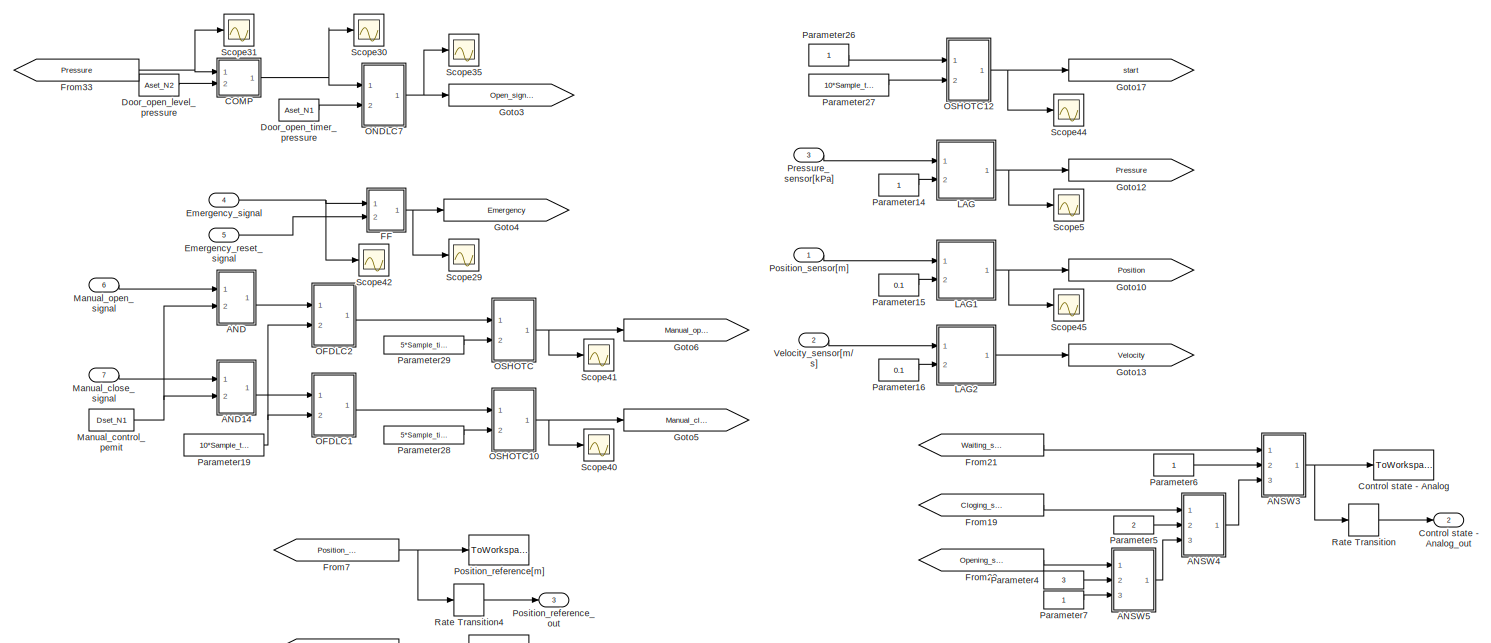
[diagram: root canvas - part 1/8, top right region]
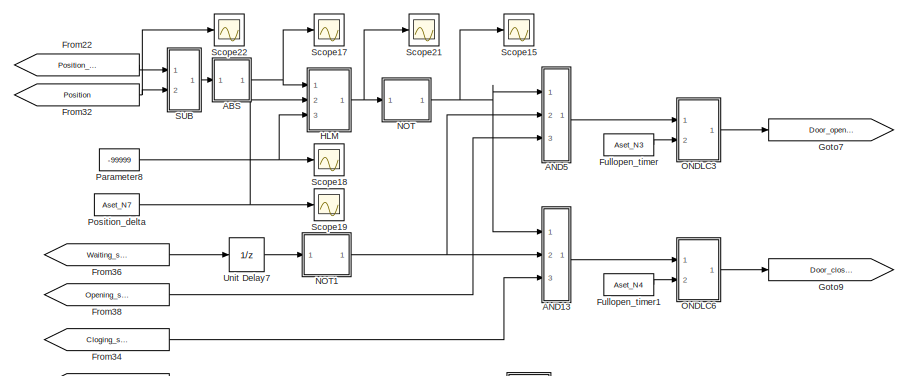
[diagram: root canvas - part 2/8, top left region]
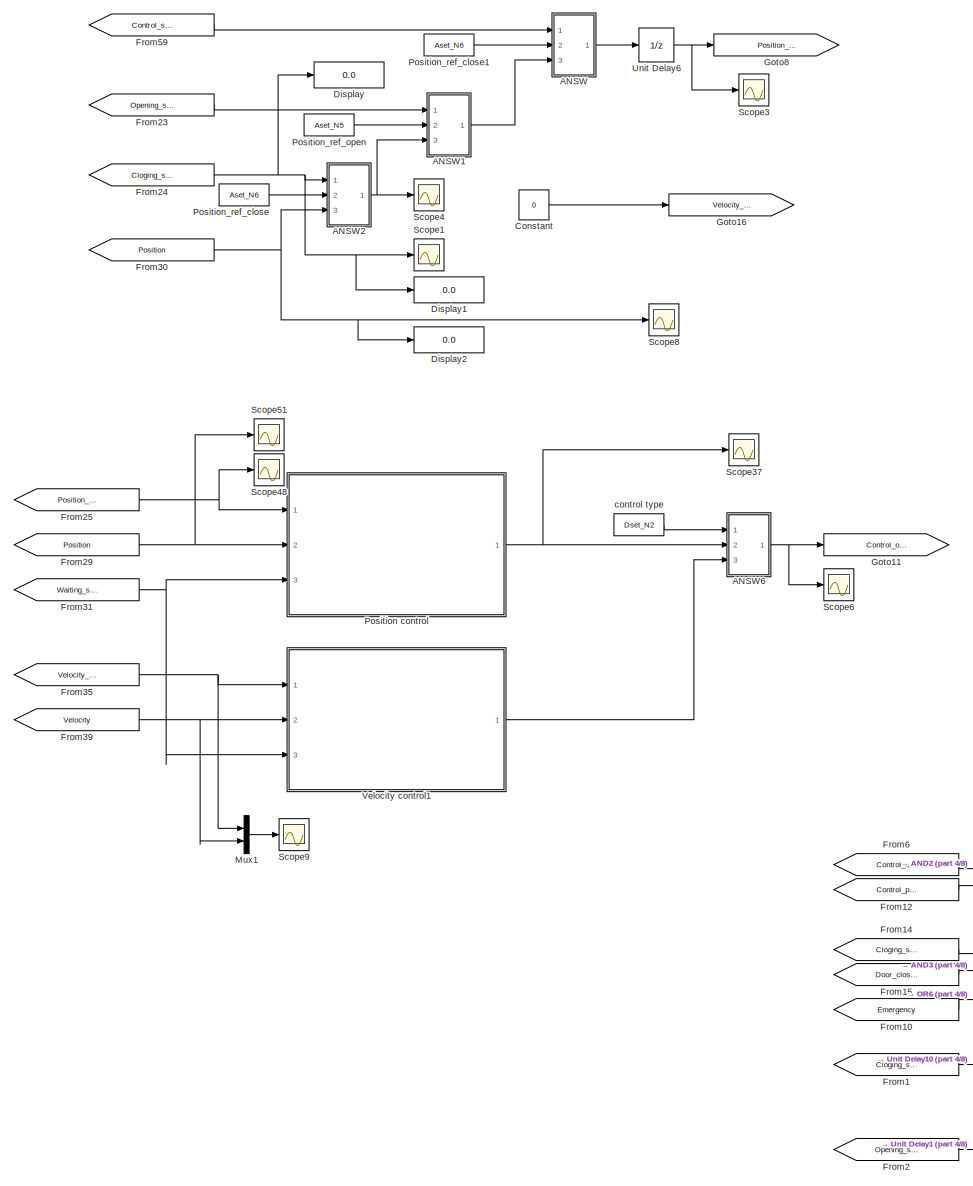
[diagram: root canvas - part 3/8, middle left region]
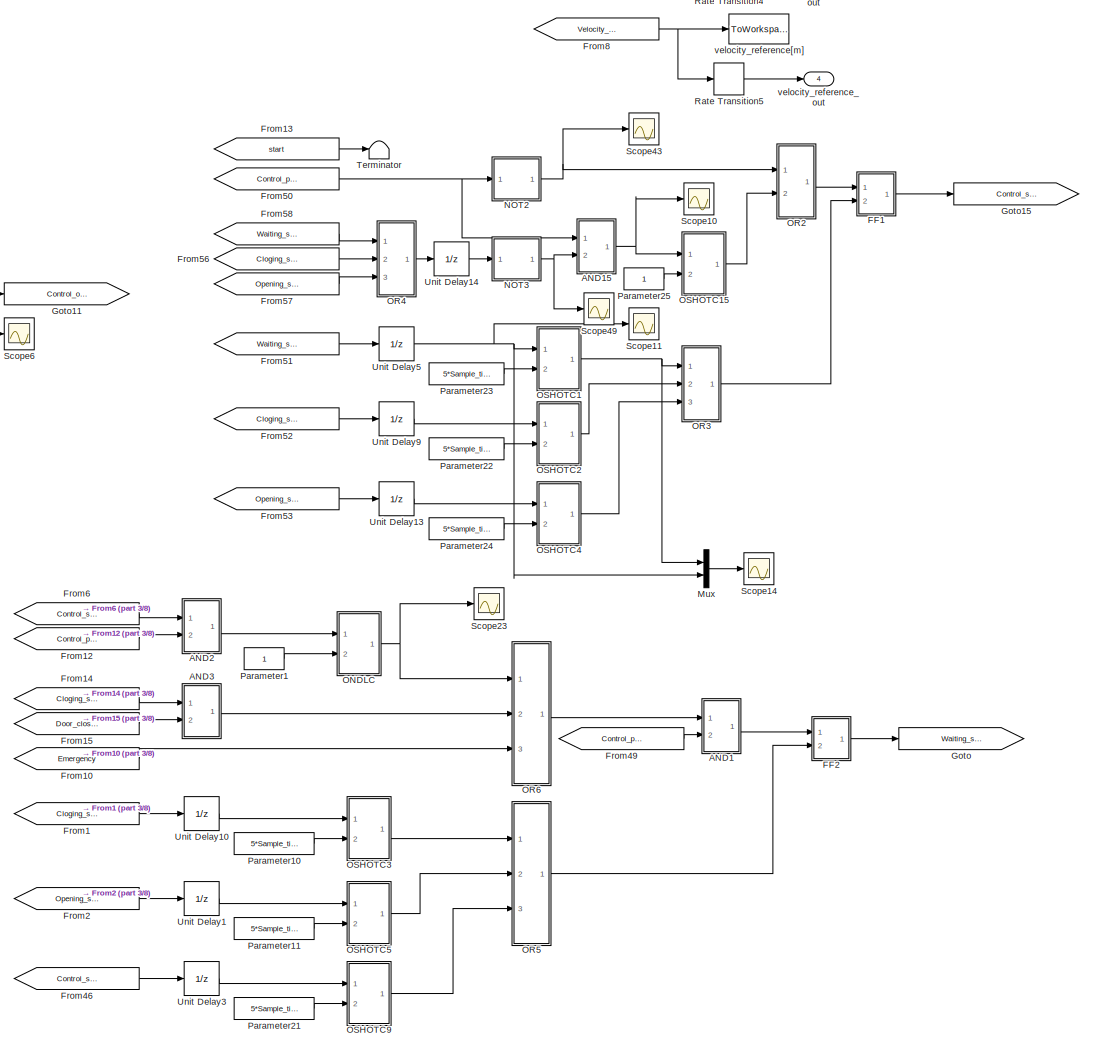
[diagram: root canvas - part 4/8, central region]
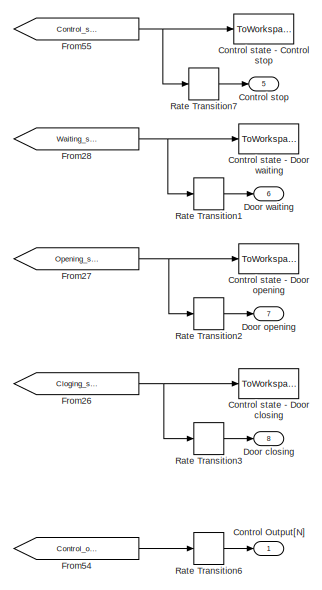
[diagram: root canvas - part 5/8, middle right region]
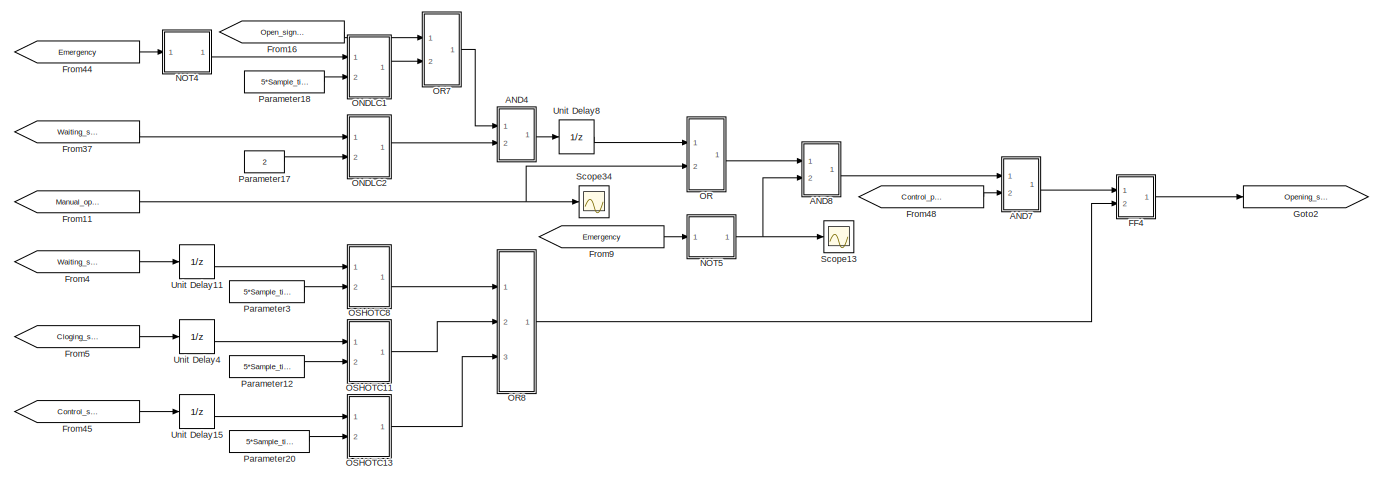
[diagram: root canvas - part 6/8, bottom center region]
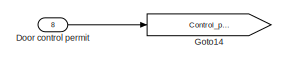
[diagram: root canvas - part 7/8, bottom left region]
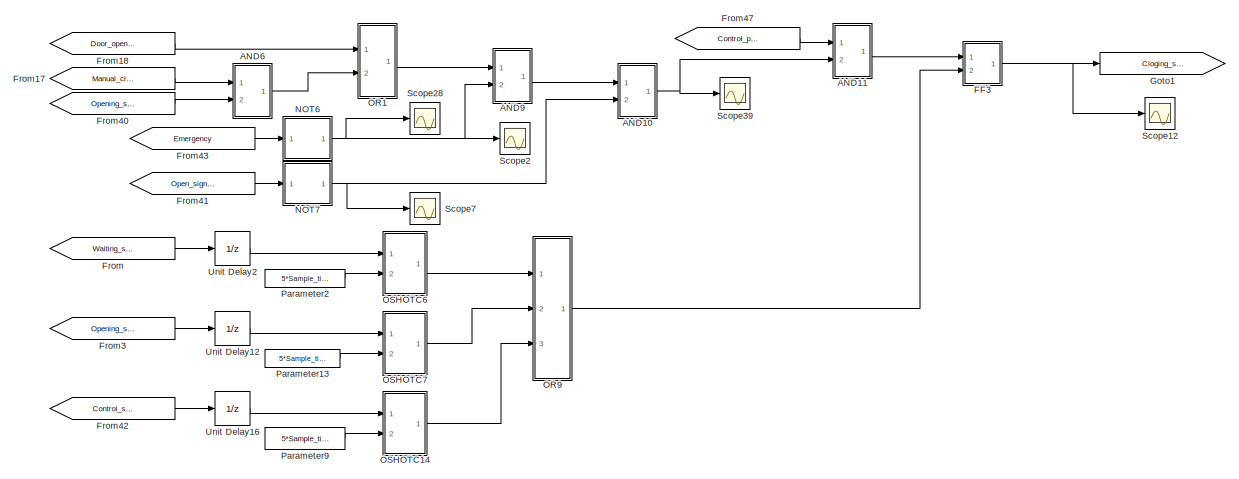
[diagram: root canvas - part 8/8, bottom center region]
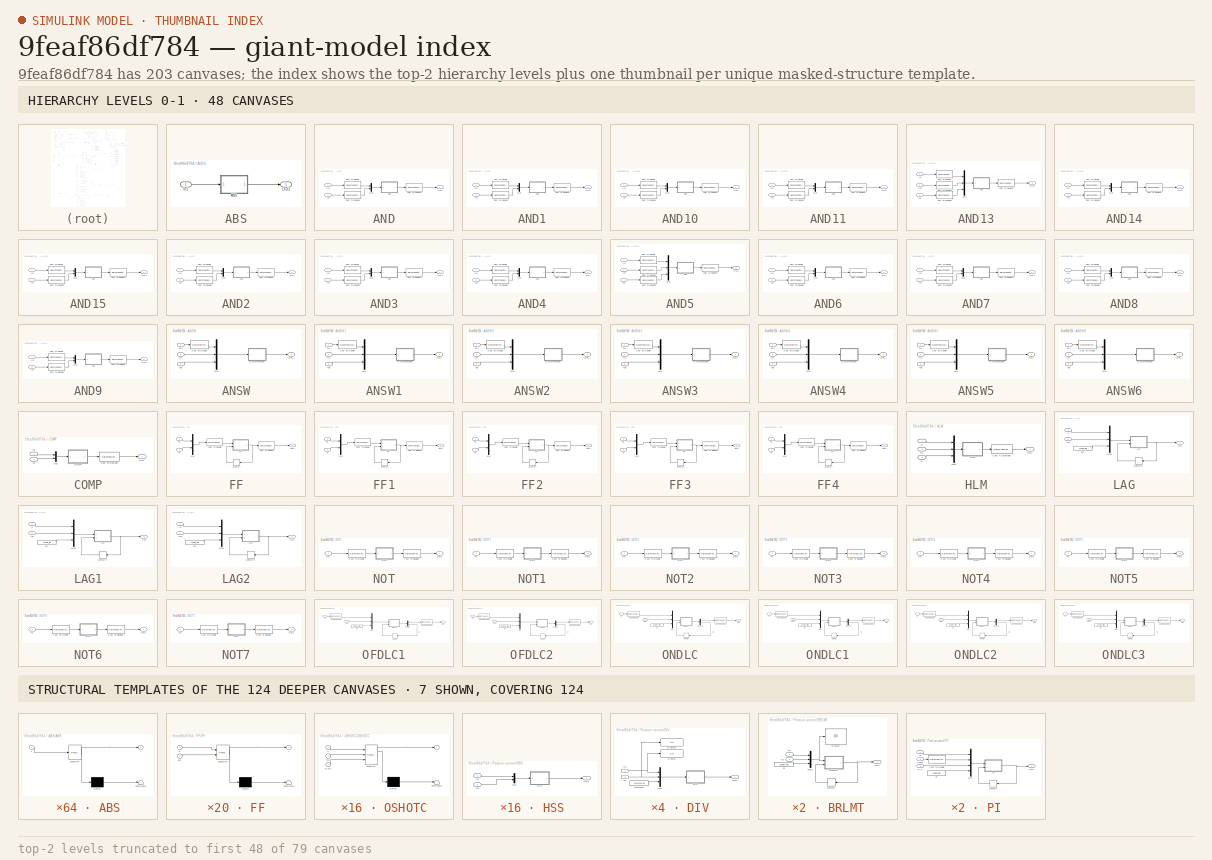
[diagram: thumbnail index - top-2 hierarchy levels (79 canvases (first 48 of 79 shown)) + 7 structural-template representatives of the remaining 124 canvases]
MODEL slx_9feaf86df784
KIND model
CONFIG AbsTol = auto
CONFIG EnableMultiTasking = off
CONFIG FixedStep = 0.1
CONFIG MaxStep = auto
CONFIG MinStep = auto
CONFIG RelTol = 1e-3
CONFIG SampleTimeConstraint = Unconstrained
CONFIG Solver = FixedStepAuto
CONFIG SolverName = FixedStepAuto
CONFIG StartTime = 0
CONFIG StopTime = 200
BLOCK [SubSystem] ABS
  Ports = [1, 1]
  RequestExecContextInheritance = off
BLOCK [SubSystem] ABS/ABS
  ErrorFcn = Stateflow.Translate.translate
  PermitHierarchicalResolution = ExplicitOnly
  Ports = [1, 1]
  RequestExecContextInheritance = off
  SFBlockType = MATLAB Function
  TreatAsAtomicUnit = on
BLOCK [Demux] ABS/ABS/ Demux 
  Outputs = 1
  Ports = [1, 1]
BLOCK [S-Function] ABS/ABS/ SFunction 
  EnableBusSupport = off
  FunctionName = sf_sfun
  PortCounts = [1 2]
  Ports = [1, 2]
  SFcnIsStateOwnerBlock = off
  SFunctionDeploymentMode = off
  Tag = Stateflow S-Function 3
BLOCK [Terminator] ABS/ABS/ Terminator 
BLOCK [Inport] ABS/ABS/u
  IconDisplay = Port number
BLOCK [Outport] ABS/ABS/y
  IconDisplay = Port number
BLOCK [Inport] ABS/In1
  IconDisplay = Port number
BLOCK [Outport] ABS/Out1
  IconDisplay = Port number
  VectorParamsAs1DForOutWhenUnconnected = off
BLOCK [SubSystem] AND
  Ports = [2, 1]
  RequestExecContextInheritance = off
BLOCK [SubSystem] AND/AND
  ErrorFcn = Stateflow.Translate.translate
  PermitHierarchicalResolution = ExplicitOnly
  Ports = [1, 1]
  RequestExecContextInheritance = off
  SFBlockType = MATLAB Function
  TreatAsAtomicUnit = on
BLOCK [Demux] AND/AND/ Demux 
  Outputs = 1
  Ports = [1, 1]
BLOCK [S-Function] AND/AND/ SFunction 
  EnableBusSupport = off
  FunctionName = sf_sfun
  PortCounts = [1 2]
  Ports = [1, 2]
  SFcnIsStateOwnerBlock = off
  SFunctionDeploymentMode = off
  Tag = Stateflow S-Function 19
BLOCK [Terminator] AND/AND/ Terminator 
BLOCK [Inport] AND/AND/u
  IconDisplay = Port number
BLOCK [Outport] AND/AND/y
  IconDisplay = Port number
BLOCK [DataTypeConversion] AND/Cast To Boolean
  OutDataTypeStr = boolean
  RndMeth = Floor
  SaturateOnIntegerOverflow = off
BLOCK [DataTypeConversion] AND/Cast To Double
  OutDataTypeStr = double
  RndMeth = Floor
  SaturateOnIntegerOverflow = off
BLOCK [DataTypeConversion] AND/Cast To Double1
  OutDataTypeStr = double
  RndMeth = Floor
  SaturateOnIntegerOverflow = off
BLOCK [Inport] AND/In1
  IconDisplay = Port number
BLOCK [Inport] AND/In2
  IconDisplay = Port number
  Port = 2
BLOCK [Mux] AND/Mux
  DisplayOption = bar
  Inputs = 2
  Ports = [2, 1]
BLOCK [Outport] AND/Out1
  IconDisplay = Port number
  VectorParamsAs1DForOutWhenUnconnected = off
BLOCK [SubSystem] AND1
  Ports = [2, 1]
  RequestExecContextInheritance = off
BLOCK [SubSystem] AND1/AND
  ErrorFcn = Stateflow.Translate.translate
  PermitHierarchicalResolution = ExplicitOnly
  Ports = [1, 1]
  RequestExecContextInheritance = off
  SFBlockType = MATLAB Function
  TreatAsAtomicUnit = on
BLOCK [Demux] AND1/AND/ Demux 
  Outputs = 1
  Ports = [1, 1]
BLOCK [S-Function] AND1/AND/ SFunction 
  EnableBusSupport = off
  FunctionName = sf_sfun
  PortCounts = [1 2]
  Ports = [1, 2]
  SFcnIsStateOwnerBlock = off
  SFunctionDeploymentMode = off
  Tag = Stateflow S-Function 31
BLOCK [Terminator] AND1/AND/ Terminator 
BLOCK [Inport] AND1/AND/u
  IconDisplay = Port number
BLOCK [Outport] AND1/AND/y
  IconDisplay = Port number
BLOCK [DataTypeConversion] AND1/Cast To Boolean
  OutDataTypeStr = boolean
  RndMeth = Floor
  SaturateOnIntegerOverflow = off
BLOCK [DataTypeConversion] AND1/Cast To Double
  OutDataTypeStr = double
  RndMeth = Floor
  SaturateOnIntegerOverflow = off
BLOCK [DataTypeConversion] AND1/Cast To Double1
  OutDataTypeStr = double
  RndMeth = Floor
  SaturateOnIntegerOverflow = off
BLOCK [Inport] AND1/In1
  IconDisplay = Port number
BLOCK [Inport] AND1/In2
  IconDisplay = Port number
  Port = 2
BLOCK [Mux] AND1/Mux
  DisplayOption = bar
  Inputs = 2
  Ports = [2, 1]
BLOCK [Outport] AND1/Out1
  IconDisplay = Port number
  VectorParamsAs1DForOutWhenUnconnected = off
BLOCK [SubSystem] AND10
  Ports = [2, 1]
  RequestExecContextInheritance = off
BLOCK [SubSystem] AND10/AND
  ErrorFcn = Stateflow.Translate.translate
  PermitHierarchicalResolution = ExplicitOnly
  Ports = [1, 1]
  RequestExecContextInheritance = off
  SFBlockType = MATLAB Function
  TreatAsAtomicUnit = on
BLOCK [Demux] AND10/AND/ Demux 
  Outputs = 1
  Ports = [1, 1]
BLOCK [S-Function] AND10/AND/ SFunction 
  EnableBusSupport = off
  FunctionName = sf_sfun
  PortCounts = [1 2]
  Ports = [1, 2]
  SFcnIsStateOwnerBlock = off
  SFunctionDeploymentMode = off
  Tag = Stateflow S-Function 27
BLOCK [Terminator] AND10/AND/ Terminator 
BLOCK [Inport] AND10/AND/u
  IconDisplay = Port number
BLOCK [Outport] AND10/AND/y
  IconDisplay = Port number
BLOCK [DataTypeConversion] AND10/Cast To Boolean
  OutDataTypeStr = boolean
  RndMeth = Floor
  SaturateOnIntegerOverflow = off
BLOCK [DataTypeConversion] AND10/Cast To Double
  OutDataTypeStr = double
  RndMeth = Floor
  SaturateOnIntegerOverflow = off
BLOCK [DataTypeConversion] AND10/Cast To Double1
  OutDataTypeStr = double
  RndMeth = Floor
  SaturateOnIntegerOverflow = off
BLOCK [Inport] AND10/In1
  IconDisplay = Port number
BLOCK [Inport] AND10/In2
  IconDisplay = Port number
  Port = 2
BLOCK [Mux] AND10/Mux
  DisplayOption = bar
  Inputs = 2
  Ports = [2, 1]
BLOCK [Outport] AND10/Out1
  IconDisplay = Port number
  VectorParamsAs1DForOutWhenUnconnected = off
BLOCK [SubSystem] AND11
  Ports = [2, 1]
  RequestExecContextInheritance = off
BLOCK [SubSystem] AND11/AND
  ErrorFcn = Stateflow.Translate.translate
  PermitHierarchicalResolution = ExplicitOnly
  Ports = [1, 1]
  RequestExecContextInheritance = off
  SFBlockType = MATLAB Function
  TreatAsAtomicUnit = on
BLOCK [Demux] AND11/AND/ Demux 
  Outputs = 1
  Ports = [1, 1]
BLOCK [S-Function] AND11/AND/ SFunction 
  EnableBusSupport = off
  FunctionName = sf_sfun
  PortCounts = [1 2]
  Ports = [1, 2]
  SFcnIsStateOwnerBlock = off
  SFunctionDeploymentMode = off
  Tag = Stateflow S-Function 28
BLOCK [Terminator] AND11/AND/ Terminator 
BLOCK [Inport] AND11/AND/u
  IconDisplay = Port number
BLOCK [Outport] AND11/AND/y
  IconDisplay = Port number
BLOCK [DataTypeConversion] AND11/Cast To Boolean
  OutDataTypeStr = boolean
  RndMeth = Floor
  SaturateOnIntegerOverflow = off
BLOCK [DataTypeConversion] AND11/Cast To Double
  OutDataTypeStr = double
  RndMeth = Floor
  SaturateOnIntegerOverflow = off
BLOCK [DataTypeConversion] AND11/Cast To Double1
  OutDataTypeStr = double
  RndMeth = Floor
  SaturateOnIntegerOverflow = off
BLOCK [Inport] AND11/In1
  IconDisplay = Port number
BLOCK [Inport] AND11/In2
  IconDisplay = Port number
  Port = 2
BLOCK [Mux] AND11/Mux
  DisplayOption = bar
  Inputs = 2
  Ports = [2, 1]
BLOCK [Outport] AND11/Out1
  IconDisplay = Port number
  VectorParamsAs1DForOutWhenUnconnected = off
BLOCK [SubSystem] AND13
  Ports = [3, 1]
  RequestExecContextInheritance = off
BLOCK [SubSystem] AND13/AND
  ErrorFcn = Stateflow.Translate.translate
  PermitHierarchicalResolution = ExplicitOnly
  Ports = [1, 1]
  RequestExecContextInheritance = off
  SFBlockType = MATLAB Function
  TreatAsAtomicUnit = on
BLOCK [Demux] AND13/AND/ Demux 
  Outputs = 1
  Ports = [1, 1]
BLOCK [S-Function] AND13/AND/ SFunction 
  EnableBusSupport = off
  FunctionName = sf_sfun
  PortCounts = [1 2]
  Ports = [1, 2]
  SFcnIsStateOwnerBlock = off
  SFunctionDeploymentMode = off
  Tag = Stateflow S-Function 16
BLOCK [Terminator] AND13/AND/ Terminator 
BLOCK [Inport] AND13/AND/u
  IconDisplay = Port number
BLOCK [Outport] AND13/AND/y
  IconDisplay = Port number
BLOCK [DataTypeConversion] AND13/Cast To Boolean
  OutDataTypeStr = boolean
  RndMeth = Floor
  SaturateOnIntegerOverflow = off
BLOCK [DataTypeConversion] AND13/Cast To Double
  OutDataTypeStr = double
  RndMeth = Floor
  SaturateOnIntegerOverflow = off
BLOCK [DataTypeConversion] AND13/Cast To Double1
  OutDataTypeStr = double
  RndMeth = Floor
  SaturateOnIntegerOverflow = off
BLOCK [DataTypeConversion] AND13/Cast To Double2
  OutDataTypeStr = double
  RndMeth = Floor
  SaturateOnIntegerOverflow = off
BLOCK [Inport] AND13/In1
  IconDisplay = Port number
BLOCK [Inport] AND13/In2
  IconDisplay = Port number
  Port = 2
BLOCK [Inport] AND13/In3
  IconDisplay = Port number
  Port = 3
BLOCK [Mux] AND13/Mux
  DisplayOption = bar
  Inputs = 3
  Ports = [3, 1]
BLOCK [Outport] AND13/Out1
  IconDisplay = Port number
  VectorParamsAs1DForOutWhenUnconnected = off
BLOCK [SubSystem] AND14
  Ports = [2, 1]
  RequestExecContextInheritance = off
BLOCK [SubSystem] AND14/AND
  ErrorFcn = Stateflow.Translate.translate
  PermitHierarchicalResolution = ExplicitOnly
  Ports = [1, 1]
  RequestExecContextInheritance = off
  SFBlockType = MATLAB Function
  TreatAsAtomicUnit = on
BLOCK [Demux] AND14/AND/ Demux 
  Outputs = 1
  Ports = [1, 1]
BLOCK [S-Function] AND14/AND/ SFunction 
  EnableBusSupport = off
  FunctionName = sf_sfun
  PortCounts = [1 2]
  Ports = [1, 2]
  SFcnIsStateOwnerBlock = off
  SFunctionDeploymentMode = off
  Tag = Stateflow S-Function 20
BLOCK [Terminator] AND14/AND/ Terminator 
BLOCK [Inport] AND14/AND/u
  IconDisplay = Port number
BLOCK [Outport] AND14/AND/y
  IconDisplay = Port number
BLOCK [DataTypeConversion] AND14/Cast To Boolean
  OutDataTypeStr = boolean
  RndMeth = Floor
  SaturateOnIntegerOverflow = off
BLOCK [DataTypeConversion] AND14/Cast To Double
  OutDataTypeStr = double
  RndMeth = Floor
  SaturateOnIntegerOverflow = off
BLOCK [DataTypeConversion] AND14/Cast To Double1
  OutDataTypeStr = double
  RndMeth = Floor
  SaturateOnIntegerOverflow = off
BLOCK [Inport] AND14/In1
  IconDisplay = Port number
BLOCK [Inport] AND14/In2
  IconDisplay = Port number
  Port = 2
BLOCK [Mux] AND14/Mux
  DisplayOption = bar
  Inputs = 2
  Ports = [2, 1]
BLOCK [Outport] AND14/Out1
  IconDisplay = Port number
  VectorParamsAs1DForOutWhenUnconnected = off
BLOCK [SubSystem] AND15
  Ports = [2, 1]
  RequestExecContextInheritance = off
BLOCK [SubSystem] AND15/AND
  ErrorFcn = Stateflow.Translate.translate
  PermitHierarchicalResolution = ExplicitOnly
  Ports = [1, 1]
  RequestExecContextInheritance = off
  SFBlockType = MATLAB Function
  TreatAsAtomicUnit = on
BLOCK [Demux] AND15/AND/ Demux 
  Outputs = 1
  Ports = [1, 1]
BLOCK [S-Function] AND15/AND/ SFunction 
  EnableBusSupport = off
  FunctionName = sf_sfun
  PortCounts = [1 2]
  Ports = [1, 2]
  SFcnIsStateOwnerBlock = off
  SFunctionDeploymentMode = off
  Tag = Stateflow S-Function 76
BLOCK [Terminator] AND15/AND/ Terminator 
BLOCK [Inport] AND15/AND/u
  IconDisplay = Port number
BLOCK [Outport] AND15/AND/y
  IconDisplay = Port number
BLOCK [DataTypeConversion] AND15/Cast To Boolean
  OutDataTypeStr = boolean
  RndMeth = Floor
  SaturateOnIntegerOverflow = off
BLOCK [DataTypeConversion] AND15/Cast To Double
  OutDataTypeStr = double
  RndMeth = Floor
  SaturateOnIntegerOverflow = off
BLOCK [DataTypeConversion] AND15/Cast To Double1
  OutDataTypeStr = double
  RndMeth = Floor
  SaturateOnIntegerOverflow = off
BLOCK [Inport] AND15/In1
  IconDisplay = Port number
BLOCK [Inport] AND15/In2
  IconDisplay = Port number
  Port = 2
BLOCK [Mux] AND15/Mux
  DisplayOption = bar
  Inputs = 2
  Ports = [2, 1]
BLOCK [Outport] AND15/Out1
  IconDisplay = Port number
  VectorParamsAs1DForOutWhenUnconnected = off
BLOCK [SubSystem] AND2
  Ports = [2, 1]
  RequestExecContextInheritance = off
BLOCK [SubSystem] AND2/AND
  ErrorFcn = Stateflow.Translate.translate
  PermitHierarchicalResolution = ExplicitOnly
  Ports = [1, 1]
  RequestExecContextInheritance = off
  SFBlockType = MATLAB Function
  TreatAsAtomicUnit = on
BLOCK [Demux] AND2/AND/ Demux 
  Outputs = 1
  Ports = [1, 1]
BLOCK [S-Function] AND2/AND/ SFunction 
  EnableBusSupport = off
  FunctionName = sf_sfun
  PortCounts = [1 2]
  Ports = [1, 2]
  SFcnIsStateOwnerBlock = off
  SFunctionDeploymentMode = off
  Tag = Stateflow S-Function 22
BLOCK [Terminator] AND2/AND/ Terminator 
BLOCK [Inport] AND2/AND/u
  IconDisplay = Port number
BLOCK [Outport] AND2/AND/y
  IconDisplay = Port number
BLOCK [DataTypeConversion] AND2/Cast To Boolean
  OutDataTypeStr = boolean
  RndMeth = Floor
  SaturateOnIntegerOverflow = off
BLOCK [DataTypeConversion] AND2/Cast To Double
  OutDataTypeStr = double
  RndMeth = Floor
  SaturateOnIntegerOverflow = off
BLOCK [DataTypeConversion] AND2/Cast To Double1
  OutDataTypeStr = double
  RndMeth = Floor
  SaturateOnIntegerOverflow = off
BLOCK [Inport] AND2/In1
  IconDisplay = Port number
BLOCK [Inport] AND2/In2
  IconDisplay = Port number
  Port = 2
BLOCK [Mux] AND2/Mux
  DisplayOption = bar
  Inputs = 2
  Ports = [2, 1]
BLOCK [Outport] AND2/Out1
  IconDisplay = Port number
  VectorParamsAs1DForOutWhenUnconnected = off
BLOCK [SubSystem] AND3
  Ports = [2, 1]
  RequestExecContextInheritance = off
BLOCK [SubSystem] AND3/AND
  ErrorFcn = Stateflow.Translate.translate
  PermitHierarchicalResolution = ExplicitOnly
  Ports = [1, 1]
  RequestExecContextInheritance = off
  SFBlockType = MATLAB Function
  TreatAsAtomicUnit = on
BLOCK [Demux] AND3/AND/ Demux 
  Outputs = 1
  Ports = [1, 1]
BLOCK [S-Function] AND3/AND/ SFunction 
  EnableBusSupport = off
  FunctionName = sf_sfun
  PortCounts = [1 2]
  Ports = [1, 2]
  SFcnIsStateOwnerBlock = off
  SFunctionDeploymentMode = off
  Tag = Stateflow S-Function 23
BLOCK [Terminator] AND3/AND/ Terminator 
BLOCK [Inport] AND3/AND/u
  IconDisplay = Port number
BLOCK [Outport] AND3/AND/y
  IconDisplay = Port number
BLOCK [DataTypeConversion] AND3/Cast To Boolean
  OutDataTypeStr = boolean
  RndMeth = Floor
  SaturateOnIntegerOverflow = off
BLOCK [DataTypeConversion] AND3/Cast To Double
  OutDataTypeStr = double
  RndMeth = Floor
  SaturateOnIntegerOverflow = off
BLOCK [DataTypeConversion] AND3/Cast To Double1
  OutDataTypeStr = double
  RndMeth = Floor
  SaturateOnIntegerOverflow = off
BLOCK [Inport] AND3/In1
  IconDisplay = Port number
BLOCK [Inport] AND3/In2
  IconDisplay = Port number
  Port = 2
BLOCK [Mux] AND3/Mux
  DisplayOption = bar
  Inputs = 2
  Ports = [2, 1]
BLOCK [Outport] AND3/Out1
  IconDisplay = Port number
  VectorParamsAs1DForOutWhenUnconnected = off
BLOCK [SubSystem] AND4
  Ports = [2, 1]
  RequestExecContextInheritance = off
BLOCK [SubSystem] AND4/AND
  ErrorFcn = Stateflow.Translate.translate
  PermitHierarchicalResolution = ExplicitOnly
  Ports = [1, 1]
  RequestExecContextInheritance = off
  SFBlockType = MATLAB Function
  TreatAsAtomicUnit = on
BLOCK [Demux] AND4/AND/ Demux 
  Outputs = 1
  Ports = [1, 1]
BLOCK [S-Function] AND4/AND/ SFunction 
  EnableBusSupport = off
  FunctionName = sf_sfun
  PortCounts = [1 2]
  Ports = [1, 2]
  SFcnIsStateOwnerBlock = off
  SFunctionDeploymentMode = off
  Tag = Stateflow S-Function 24
BLOCK [Terminator] AND4/AND/ Terminator 
BLOCK [Inport] AND4/AND/u
  IconDisplay = Port number
BLOCK [Outport] AND4/AND/y
  IconDisplay = Port number
BLOCK [DataTypeConversion] AND4/Cast To Boolean
  OutDataTypeStr = boolean
  RndMeth = Floor
  SaturateOnIntegerOverflow = off
BLOCK [DataTypeConversion] AND4/Cast To Double
  OutDataTypeStr = double
  RndMeth = Floor
  SaturateOnIntegerOverflow = off
BLOCK [DataTypeConversion] AND4/Cast To Double1
  OutDataTypeStr = double
  RndMeth = Floor
  SaturateOnIntegerOverflow = off
BLOCK [Inport] AND4/In1
  IconDisplay = Port number
BLOCK [Inport] AND4/In2
  IconDisplay = Port number
  Port = 2
BLOCK [Mux] AND4/Mux
  DisplayOption = bar
  Inputs = 2
  Ports = [2, 1]
BLOCK [Outport] AND4/Out1
  IconDisplay = Port number
  VectorParamsAs1DForOutWhenUnconnected = off
BLOCK [SubSystem] AND5
  Ports = [3, 1]
  RequestExecContextInheritance = off
BLOCK [SubSystem] AND5/AND
  ErrorFcn = Stateflow.Translate.translate
  PermitHierarchicalResolution = ExplicitOnly
  Ports = [1, 1]
  RequestExecContextInheritance = off
  SFBlockType = MATLAB Function
  TreatAsAtomicUnit = on
BLOCK [Demux] AND5/AND/ Demux 
  Outputs = 1
  Ports = [1, 1]
BLOCK [S-Function] AND5/AND/ SFunction 
  EnableBusSupport = off
  FunctionName = sf_sfun
  PortCounts = [1 2]
  Ports = [1, 2]
  SFcnIsStateOwnerBlock = off
  SFunctionDeploymentMode = off
  Tag = Stateflow S-Function 45
BLOCK [Terminator] AND5/AND/ Terminator 
BLOCK [Inport] AND5/AND/u
  IconDisplay = Port number
BLOCK [Outport] AND5/AND/y
  IconDisplay = Port number
BLOCK [DataTypeConversion] AND5/Cast To Boolean
  OutDataTypeStr = boolean
  RndMeth = Floor
  SaturateOnIntegerOverflow = off
BLOCK [DataTypeConversion] AND5/Cast To Double
  OutDataTypeStr = double
  RndMeth = Floor
  SaturateOnIntegerOverflow = off
BLOCK [DataTypeConversion] AND5/Cast To Double1
  OutDataTypeStr = double
  RndMeth = Floor
  SaturateOnIntegerOverflow = off
BLOCK [DataTypeConversion] AND5/Cast To Double2
  OutDataTypeStr = double
  RndMeth = Floor
  SaturateOnIntegerOverflow = off
BLOCK [Inport] AND5/In1
  IconDisplay = Port number
BLOCK [Inport] AND5/In2
  IconDisplay = Port number
  Port = 2
BLOCK [Inport] AND5/In3
  IconDisplay = Port number
  Port = 3
BLOCK [Mux] AND5/Mux
  DisplayOption = bar
  Inputs = 3
  Ports = [3, 1]
BLOCK [Outport] AND5/Out1
  IconDisplay = Port number
  VectorParamsAs1DForOutWhenUnconnected = off
BLOCK [SubSystem] AND6
  Ports = [2, 1]
  RequestExecContextInheritance = off
BLOCK [SubSystem] AND6/AND
  ErrorFcn = Stateflow.Translate.translate
  PermitHierarchicalResolution = ExplicitOnly
  Ports = [1, 1]
  RequestExecContextInheritance = off
  SFBlockType = MATLAB Function
  TreatAsAtomicUnit = on
BLOCK [Demux] AND6/AND/ Demux 
  Outputs = 1
  Ports = [1, 1]
BLOCK [S-Function] AND6/AND/ SFunction 
  EnableBusSupport = off
  FunctionName = sf_sfun
  PortCounts = [1 2]
  Ports = [1, 2]
  SFcnIsStateOwnerBlock = off
  SFunctionDeploymentMode = off
  Tag = Stateflow S-Function 25
BLOCK [Terminator] AND6/AND/ Terminator 
BLOCK [Inport] AND6/AND/u
  IconDisplay = Port number
BLOCK [Outport] AND6/AND/y
  IconDisplay = Port number
BLOCK [DataTypeConversion] AND6/Cast To Boolean
  OutDataTypeStr = boolean
  RndMeth = Floor
  SaturateOnIntegerOverflow = off
BLOCK [DataTypeConversion] AND6/Cast To Double
  OutDataTypeStr = double
  RndMeth = Floor
  SaturateOnIntegerOverflow = off
BLOCK [DataTypeConversion] AND6/Cast To Double1
  OutDataTypeStr = double
  RndMeth = Floor
  SaturateOnIntegerOverflow = off
BLOCK [Inport] AND6/In1
  IconDisplay = Port number
BLOCK [Inport] AND6/In2
  IconDisplay = Port number
  Port = 2
BLOCK [Mux] AND6/Mux
  DisplayOption = bar
  Inputs = 2
  Ports = [2, 1]
BLOCK [Outport] AND6/Out1
  IconDisplay = Port number
  VectorParamsAs1DForOutWhenUnconnected = off
BLOCK [SubSystem] AND7
  Ports = [2, 1]
  RequestExecContextInheritance = off
BLOCK [SubSystem] AND7/AND
  ErrorFcn = Stateflow.Translate.translate
  PermitHierarchicalResolution = ExplicitOnly
  Ports = [1, 1]
  RequestExecContextInheritance = off
  SFBlockType = MATLAB Function
  TreatAsAtomicUnit = on
BLOCK [Demux] AND7/AND/ Demux 
  Outputs = 1
  Ports = [1, 1]
BLOCK [S-Function] AND7/AND/ SFunction 
  EnableBusSupport = off
  FunctionName = sf_sfun
  PortCounts = [1 2]
  Ports = [1, 2]
  SFcnIsStateOwnerBlock = off
  SFunctionDeploymentMode = off
  Tag = Stateflow S-Function 30
BLOCK [Terminator] AND7/AND/ Terminator 
BLOCK [Inport] AND7/AND/u
  IconDisplay = Port number
BLOCK [Outport] AND7/AND/y
  IconDisplay = Port number
BLOCK [DataTypeConversion] AND7/Cast To Boolean
  OutDataTypeStr = boolean
  RndMeth = Floor
  SaturateOnIntegerOverflow = off
BLOCK [DataTypeConversion] AND7/Cast To Double
  OutDataTypeStr = double
  RndMeth = Floor
  SaturateOnIntegerOverflow = off
BLOCK [DataTypeConversion] AND7/Cast To Double1
  OutDataTypeStr = double
  RndMeth = Floor
  SaturateOnIntegerOverflow = off
BLOCK [Inport] AND7/In1
  IconDisplay = Port number
BLOCK [Inport] AND7/In2
  IconDisplay = Port number
  Port = 2
BLOCK [Mux] AND7/Mux
  DisplayOption = bar
  Inputs = 2
  Ports = [2, 1]
BLOCK [Outport] AND7/Out1
  IconDisplay = Port number
  VectorParamsAs1DForOutWhenUnconnected = off
BLOCK [SubSystem] AND8
  Ports = [2, 1]
  RequestExecContextInheritance = off
BLOCK [SubSystem] AND8/AND
  ErrorFcn = Stateflow.Translate.translate
  PermitHierarchicalResolution = ExplicitOnly
  Ports = [1, 1]
  RequestExecContextInheritance = off
  SFBlockType = MATLAB Function
  TreatAsAtomicUnit = on
BLOCK [Demux] AND8/AND/ Demux 
  Outputs = 1
  Ports = [1, 1]
BLOCK [S-Function] AND8/AND/ SFunction 
  EnableBusSupport = off
  FunctionName = sf_sfun
  PortCounts = [1 2]
  Ports = [1, 2]
  SFcnIsStateOwnerBlock = off
  SFunctionDeploymentMode = off
  Tag = Stateflow S-Function 29
BLOCK [Terminator] AND8/AND/ Terminator 
BLOCK [Inport] AND8/AND/u
  IconDisplay = Port number
BLOCK [Outport] AND8/AND/y
  IconDisplay = Port number
BLOCK [DataTypeConversion] AND8/Cast To Boolean
  OutDataTypeStr = boolean
  RndMeth = Floor
  SaturateOnIntegerOverflow = off
BLOCK [DataTypeConversion] AND8/Cast To Double
  OutDataTypeStr = double
  RndMeth = Floor
  SaturateOnIntegerOverflow = off
BLOCK [DataTypeConversion] AND8/Cast To Double1
  OutDataTypeStr = double
  RndMeth = Floor
  SaturateOnIntegerOverflow = off
BLOCK [Inport] AND8/In1
  IconDisplay = Port number
BLOCK [Inport] AND8/In2
  IconDisplay = Port number
  Port = 2
BLOCK [Mux] AND8/Mux
  DisplayOption = bar
  Inputs = 2
  Ports = [2, 1]
BLOCK [Outport] AND8/Out1
  IconDisplay = Port number
  VectorParamsAs1DForOutWhenUnconnected = off
BLOCK [SubSystem] AND9
  Ports = [2, 1]
  RequestExecContextInheritance = off
BLOCK [SubSystem] AND9/AND
  ErrorFcn = Stateflow.Translate.translate
  PermitHierarchicalResolution = ExplicitOnly
  Ports = [1, 1]
  RequestExecContextInheritance = off
  SFBlockType = MATLAB Function
  TreatAsAtomicUnit = on
BLOCK [Demux] AND9/AND/ Demux 
  Outputs = 1
  Ports = [1, 1]
BLOCK [S-Function] AND9/AND/ SFunction 
  EnableBusSupport = off
  FunctionName = sf_sfun
  PortCounts = [1 2]
  Ports = [1, 2]
  SFcnIsStateOwnerBlock = off
  SFunctionDeploymentMode = off
  Tag = Stateflow S-Function 26
BLOCK [Terminator] AND9/AND/ Terminator 
BLOCK [Inport] AND9/AND/u
  IconDisplay = Port number
BLOCK [Outport] AND9/AND/y
  IconDisplay = Port number
BLOCK [DataTypeConversion] AND9/Cast To Boolean
  OutDataTypeStr = boolean
  RndMeth = Floor
  SaturateOnIntegerOverflow = off
BLOCK [DataTypeConversion] AND9/Cast To Double
  OutDataTypeStr = double
  RndMeth = Floor
  SaturateOnIntegerOverflow = off
BLOCK [DataTypeConversion] AND9/Cast To Double1
  OutDataTypeStr = double
  RndMeth = Floor
  SaturateOnIntegerOverflow = off
BLOCK [Inport] AND9/In1
  IconDisplay = Port number
BLOCK [Inport] AND9/In2
  IconDisplay = Port number
  Port = 2
BLOCK [Mux] AND9/Mux
  DisplayOption = bar
  Inputs = 2
  Ports = [2, 1]
BLOCK [Outport] AND9/Out1
  IconDisplay = Port number
  VectorParamsAs1DForOutWhenUnconnected = off
BLOCK [SubSystem] ANSW
  Ports = [3, 1]
  RequestExecContextInheritance = off
BLOCK [DataTypeConversion] ANSW/Cast To Double
  OutDataTypeStr = double
  RndMeth = Floor
  SaturateOnIntegerOverflow = off
BLOCK [Inport] ANSW/InA
  IconDisplay = Port number
  Port = 2
BLOCK [Inport] ANSW/InB
  IconDisplay = Port number
  Port = 3
BLOCK [SubSystem] ANSW/MATLAB Function
  ErrorFcn = Stateflow.Translate.translate
  PermitHierarchicalResolution = ExplicitOnly
  Ports = [1, 1]
  RequestExecContextInheritance = off
  SFBlockType = MATLAB Function
  TreatAsAtomicUnit = on
BLOCK [Demux] ANSW/MATLAB Function/ Demux 
  Outputs = 1
  Ports = [1, 1]
BLOCK [S-Function] ANSW/MATLAB Function/ SFunction 
  EnableBusSupport = off
  FunctionName = sf_sfun
  PortCounts = [1 2]
  Ports = [1, 2]
  SFcnIsStateOwnerBlock = off
  SFunctionDeploymentMode = off
  Tag = Stateflow S-Function 17
BLOCK [Terminator] ANSW/MATLAB Function/ Terminator 
BLOCK [Inport] ANSW/MATLAB Function/u
  IconDisplay = Port number
BLOCK [Outport] ANSW/MATLAB Function/y
  IconDisplay = Port number
BLOCK [Mux] ANSW/Mux
  DisplayOption = bar
  Inputs = 3
  Ports = [3, 1]
BLOCK [Outport] ANSW/Out1
  IconDisplay = Port number
  VectorParamsAs1DForOutWhenUnconnected = off
BLOCK [Inport] ANSW/SW
  IconDisplay = Port number
BLOCK [SubSystem] ANSW1
  Ports = [3, 1]
  RequestExecContextInheritance = off
BLOCK [DataTypeConversion] ANSW1/Cast To Double
  OutDataTypeStr = double
  RndMeth = Floor
  SaturateOnIntegerOverflow = off
BLOCK [Inport] ANSW1/InA
  IconDisplay = Port number
  Port = 2
BLOCK [Inport] ANSW1/InB
  IconDisplay = Port number
  Port = 3
BLOCK [SubSystem] ANSW1/MATLAB Function
  ErrorFcn = Stateflow.Translate.translate
  PermitHierarchicalResolution = ExplicitOnly
  Ports = [1, 1]
  RequestExecContextInheritance = off
  SFBlockType = MATLAB Function
  TreatAsAtomicUnit = on
BLOCK [Demux] ANSW1/MATLAB Function/ Demux 
  Outputs = 1
  Ports = [1, 1]
BLOCK [S-Function] ANSW1/MATLAB Function/ SFunction 
  EnableBusSupport = off
  FunctionName = sf_sfun
  PortCounts = [1 2]
  Ports = [1, 2]
  SFcnIsStateOwnerBlock = off
  SFunctionDeploymentMode = off
  Tag = Stateflow S-Function 32
BLOCK [Terminator] ANSW1/MATLAB Function/ Terminator 
BLOCK [Inport] ANSW1/MATLAB Function/u
  IconDisplay = Port number
BLOCK [Outport] ANSW1/MATLAB Function/y
  IconDisplay = Port number
BLOCK [Mux] ANSW1/Mux
  DisplayOption = bar
  Inputs = 3
  Ports = [3, 1]
BLOCK [Outport] ANSW1/Out1
  IconDisplay = Port number
  VectorParamsAs1DForOutWhenUnconnected = off
BLOCK [Inport] ANSW1/SW
  IconDisplay = Port number
BLOCK [SubSystem] ANSW2
  Ports = [3, 1]
  RequestExecContextInheritance = off
BLOCK [DataTypeConversion] ANSW2/Cast To Double
  OutDataTypeStr = double
  RndMeth = Floor
  SaturateOnIntegerOverflow = off
BLOCK [Inport] ANSW2/InA
  IconDisplay = Port number
  Port = 2
BLOCK [Inport] ANSW2/InB
  IconDisplay = Port number
  Port = 3
BLOCK [SubSystem] ANSW2/MATLAB Function
  ErrorFcn = Stateflow.Translate.translate
  PermitHierarchicalResolution = ExplicitOnly
  Ports = [1, 1]
  RequestExecContextInheritance = off
  SFBlockType = MATLAB Function
  TreatAsAtomicUnit = on
BLOCK [Demux] ANSW2/MATLAB Function/ Demux 
  Outputs = 1
  Ports = [1, 1]
BLOCK [S-Function] ANSW2/MATLAB Function/ SFunction 
  EnableBusSupport = off
  FunctionName = sf_sfun
  PortCounts = [1 2]
  Ports = [1, 2]
  SFcnIsStateOwnerBlock = off
  SFunctionDeploymentMode = off
  Tag = Stateflow S-Function 33
BLOCK [Terminator] ANSW2/MATLAB Function/ Terminator 
BLOCK [Inport] ANSW2/MATLAB Function/u
  IconDisplay = Port number
BLOCK [Outport] ANSW2/MATLAB Function/y
  IconDisplay = Port number
BLOCK [Mux] ANSW2/Mux
  DisplayOption = bar
  Inputs = 3
  Ports = [3, 1]
BLOCK [Outport] ANSW2/Out1
  IconDisplay = Port number
  VectorParamsAs1DForOutWhenUnconnected = off
BLOCK [Inport] ANSW2/SW
  IconDisplay = Port number
BLOCK [SubSystem] ANSW3
  Ports = [3, 1]
  RequestExecContextInheritance = off
BLOCK [DataTypeConversion] ANSW3/Cast To Double
  OutDataTypeStr = double
  RndMeth = Floor
  SaturateOnIntegerOverflow = off
BLOCK [Inport] ANSW3/InA
  IconDisplay = Port number
  Port = 2
BLOCK [Inport] ANSW3/InB
  IconDisplay = Port number
  Port = 3
BLOCK [SubSystem] ANSW3/MATLAB Function
  ErrorFcn = Stateflow.Translate.translate
  PermitHierarchicalResolution = ExplicitOnly
  Ports = [1, 1]
  RequestExecContextInheritance = off
  SFBlockType = MATLAB Function
  TreatAsAtomicUnit = on
BLOCK [Demux] ANSW3/MATLAB Function/ Demux 
  Outputs = 1
  Ports = [1, 1]
BLOCK [S-Function] ANSW3/MATLAB Function/ SFunction 
  EnableBusSupport = off
  FunctionName = sf_sfun
  PortCounts = [1 2]
  Ports = [1, 2]
  SFcnIsStateOwnerBlock = off
  SFunctionDeploymentMode = off
  Tag = Stateflow S-Function 36
BLOCK [Terminator] ANSW3/MATLAB Function/ Terminator 
BLOCK [Inport] ANSW3/MATLAB Function/u
  IconDisplay = Port number
BLOCK [Outport] ANSW3/MATLAB Function/y
  IconDisplay = Port number
BLOCK [Mux] ANSW3/Mux
  DisplayOption = bar
  Inputs = 3
  Ports = [3, 1]
BLOCK [Outport] ANSW3/Out1
  IconDisplay = Port number
  VectorParamsAs1DForOutWhenUnconnected = off
BLOCK [Inport] ANSW3/SW
  IconDisplay = Port number
BLOCK [SubSystem] ANSW4
  Ports = [3, 1]
  RequestExecContextInheritance = off
BLOCK [DataTypeConversion] ANSW4/Cast To Double
  OutDataTypeStr = double
  RndMeth = Floor
  SaturateOnIntegerOverflow = off
BLOCK [Inport] ANSW4/InA
  IconDisplay = Port number
  Port = 2
BLOCK [Inport] ANSW4/InB
  IconDisplay = Port number
  Port = 3
BLOCK [SubSystem] ANSW4/MATLAB Function
  ErrorFcn = Stateflow.Translate.translate
  PermitHierarchicalResolution = ExplicitOnly
  Ports = [1, 1]
  RequestExecContextInheritance = off
  SFBlockType = MATLAB Function
  TreatAsAtomicUnit = on
BLOCK [Demux] ANSW4/MATLAB Function/ Demux 
  Outputs = 1
  Ports = [1, 1]
BLOCK [S-Function] ANSW4/MATLAB Function/ SFunction 
  EnableBusSupport = off
  FunctionName = sf_sfun
  PortCounts = [1 2]
  Ports = [1, 2]
  SFcnIsStateOwnerBlock = off
  SFunctionDeploymentMode = off
  Tag = Stateflow S-Function 37
BLOCK [Terminator] ANSW4/MATLAB Function/ Terminator 
BLOCK [Inport] ANSW4/MATLAB Function/u
  IconDisplay = Port number
BLOCK [Outport] ANSW4/MATLAB Function/y
  IconDisplay = Port number
BLOCK [Mux] ANSW4/Mux
  DisplayOption = bar
  Inputs = 3
  Ports = [3, 1]
BLOCK [Outport] ANSW4/Out1
  IconDisplay = Port number
  VectorParamsAs1DForOutWhenUnconnected = off
BLOCK [Inport] ANSW4/SW
  IconDisplay = Port number
BLOCK [SubSystem] ANSW5
  Ports = [3, 1]
  RequestExecContextInheritance = off
BLOCK [DataTypeConversion] ANSW5/Cast To Double
  OutDataTypeStr = double
  RndMeth = Floor
  SaturateOnIntegerOverflow = off
BLOCK [Inport] ANSW5/InA
  IconDisplay = Port number
  Port = 2
BLOCK [Inport] ANSW5/InB
  IconDisplay = Port number
  Port = 3
BLOCK [SubSystem] ANSW5/MATLAB Function
  ErrorFcn = Stateflow.Translate.translate
  PermitHierarchicalResolution = ExplicitOnly
  Ports = [1, 1]
  RequestExecContextInheritance = off
  SFBlockType = MATLAB Function
  TreatAsAtomicUnit = on
BLOCK [Demux] ANSW5/MATLAB Function/ Demux 
  Outputs = 1
  Ports = [1, 1]
BLOCK [S-Function] ANSW5/MATLAB Function/ SFunction 
  EnableBusSupport = off
  FunctionName = sf_sfun
  PortCounts = [1 2]
  Ports = [1, 2]
  SFcnIsStateOwnerBlock = off
  SFunctionDeploymentMode = off
  Tag = Stateflow S-Function 38
BLOCK [Terminator] ANSW5/MATLAB Function/ Terminator 
BLOCK [Inport] ANSW5/MATLAB Function/u
  IconDisplay = Port number
BLOCK [Outport] ANSW5/MATLAB Function/y
  IconDisplay = Port number
BLOCK [Mux] ANSW5/Mux
  DisplayOption = bar
  Inputs = 3
  Ports = [3, 1]
BLOCK [Outport] ANSW5/Out1
  IconDisplay = Port number
  VectorParamsAs1DForOutWhenUnconnected = off
BLOCK [Inport] ANSW5/SW
  IconDisplay = Port number
BLOCK [SubSystem] ANSW6
  Ports = [3, 1]
  RequestExecContextInheritance = off
BLOCK [DataTypeConversion] ANSW6/Cast To Double
  OutDataTypeStr = double
  RndMeth = Floor
  SaturateOnIntegerOverflow = off
BLOCK [Inport] ANSW6/InA
  IconDisplay = Port number
  Port = 2
BLOCK [Inport] ANSW6/InB
  IconDisplay = Port number
  Port = 3
BLOCK [SubSystem] ANSW6/MATLAB Function
  ErrorFcn = Stateflow.Translate.translate
  PermitHierarchicalResolution = ExplicitOnly
  Ports = [1, 1]
  RequestExecContextInheritance = off
  SFBlockType = MATLAB Function
  TreatAsAtomicUnit = on
BLOCK [Demux] ANSW6/MATLAB Function/ Demux 
  Outputs = 1
  Ports = [1, 1]
BLOCK [S-Function] ANSW6/MATLAB Function/ SFunction 
  EnableBusSupport = off
  FunctionName = sf_sfun
  PortCounts = [1 2]
  Ports = [1, 2]
  SFcnIsStateOwnerBlock = off
  SFunctionDeploymentMode = off
  Tag = Stateflow S-Function 72
BLOCK [Terminator] ANSW6/MATLAB Function/ Terminator 
BLOCK [Inport] ANSW6/MATLAB Function/u
  IconDisplay = Port number
BLOCK [Outport] ANSW6/MATLAB Function/y
  IconDisplay = Port number
BLOCK [Mux] ANSW6/Mux
  DisplayOption = bar
  Inputs = 3
  Ports = [3, 1]
BLOCK [Outport] ANSW6/Out1
  IconDisplay = Port number
  VectorParamsAs1DForOutWhenUnconnected = off
BLOCK [Inport] ANSW6/SW
  IconDisplay = Port number
BLOCK [SubSystem] COMP
  Ports = [2, 1]
  RequestExecContextInheritance = off
BLOCK [SubSystem] COMP/COMP
  ErrorFcn = Stateflow.Translate.translate
  PermitHierarchicalResolution = ExplicitOnly
  Ports = [1, 1]
  RequestExecContextInheritance = off
  SFBlockType = MATLAB Function
  TreatAsAtomicUnit = on
BLOCK [Demux] COMP/COMP/ Demux 
  Outputs = 1
  Ports = [1, 1]
BLOCK [S-Function] COMP/COMP/ SFunction 
  EnableBusSupport = off
  FunctionName = sf_sfun
  PortCounts = [1 2]
  Ports = [1, 2]
  SFcnIsStateOwnerBlock = off
  SFunctionDeploymentMode = off
  Tag = Stateflow S-Function 9
BLOCK [Terminator] COMP/COMP/ Terminator 
BLOCK [Inport] COMP/COMP/u
  IconDisplay = Port number
BLOCK [Outport] COMP/COMP/y
  IconDisplay = Port number
BLOCK [DataTypeConversion] COMP/Cast To Boolean
  OutDataTypeStr = boolean
  RndMeth = Floor
  SaturateOnIntegerOverflow = off
BLOCK [Inport] COMP/In1
  IconDisplay = Port number
BLOCK [Inport] COMP/In2
  IconDisplay = Port number
  Port = 2
BLOCK [Mux] COMP/Mux
  DisplayOption = bar
  Inputs = 2
  Ports = [2, 1]
BLOCK [Outport] COMP/Out1
  IconDisplay = Port number
  VectorParamsAs1DForOutWhenUnconnected = off
BLOCK [Constant] Constant
  Value = 0
BLOCK [Outport] Control Output[N]
  IconDisplay = Port number
  LockScale = on
  OutDataTypeStr = double
  SampleTime = Sample_time
  Unit = N
  VectorParamsAs1DForOutWhenUnconnected = off
BLOCK [ToWorkspace] Control state - Analog
  FixptAsFi = on
  MaxDataPoints = inf
  Ports = [1]
  SampleTime = Sample_time
  VariableName = Aout_N2
BLOCK [Outport] Control state - Analog_out
  IconDisplay = Port number
  Port = 2
  SampleTime = Sample_time
  VectorParamsAs1DForOutWhenUnconnected = off
BLOCK [ToWorkspace] Control state - Control stop
  FixptAsFi = on
  MaxDataPoints = inf
  Ports = [1]
  SampleTime = Sample_time
  VariableName = Dout_N1
BLOCK [ToWorkspace] Control state - Door closing
  FixptAsFi = on
  MaxDataPoints = inf
  Ports = [1]
  SampleTime = Sample_time
  VariableName = Dout_N4
BLOCK [ToWorkspace] Control state - Door opening
  FixptAsFi = on
  MaxDataPoints = inf
  Ports = [1]
  SampleTime = Sample_time
  VariableName = Dout_N3
BLOCK [ToWorkspace] Control state - Door waiting
  FixptAsFi = on
  MaxDataPoints = inf
  Ports = [1]
  SampleTime = Sample_time
  VariableName = Dout_N2
BLOCK [Outport] Control stop
  IconDisplay = Port number
  Port = 5
  SampleTime = Sample_time
  VectorParamsAs1DForOutWhenUnconnected = off
BLOCK [Display] Display
  Decimation = 1
  Ports = [1]
BLOCK [Display] Display1
  Decimation = 1
  Ports = [1]
BLOCK [Display] Display2
  Decimation = 1
  Ports = [1]
BLOCK [Outport] Door closing
  IconDisplay = Port number
  Port = 8
  SampleTime = Sample_time
  VectorParamsAs1DForOutWhenUnconnected = off
BLOCK [Inport] Door control permit
  IconDisplay = Port number
  OutDataTypeStr = boolean
  Port = 8
  PortDimensions = 1
  SampleTime = Sample_time
BLOCK [Outport] Door opening
  IconDisplay = Port number
  Port = 7
  SampleTime = Sample_time
  VectorParamsAs1DForOutWhenUnconnected = off
BLOCK [Outport] Door waiting
  IconDisplay = Port number
  Port = 6
  SampleTime = Sample_time
  VectorParamsAs1DForOutWhenUnconnected = off
BLOCK [Constant] Door_open_level_pressure
  OutDataTypeStr = double
  SampleTime = Sample_time
  Value = Aset_N2
BLOCK [Constant] Door_open_timer_pressure
  OutDataTypeStr = double
  SampleTime = Sample_time
  Value = Aset_N1
BLOCK [Inport] Emergency_reset_signal
  IconDisplay = Port number
  OutDataTypeStr = boolean
  Port = 5
  PortDimensions = 1
  SampleTime = Sample_time
BLOCK [Inport] Emergency_signal
  IconDisplay = Port number
  OutDataTypeStr = boolean
  Port = 4
  PortDimensions = 1
  SampleTime = Sample_time
BLOCK [SubSystem] FF
  Ports = [2, 1]
  RequestExecContextInheritance = off
BLOCK [DataTypeConversion] FF/Cast To Boolean
  OutDataTypeStr = boolean
  RndMeth = Floor
  SaturateOnIntegerOverflow = off
BLOCK [DataTypeConversion] FF/Cast To Double
  OutDataTypeStr = double
  RndMeth = Floor
  SaturateOnIntegerOverflow = off
BLOCK [SubSystem] FF/FF
  ErrorFcn = Stateflow.Translate.translate
  PermitHierarchicalResolution = ExplicitOnly
  Ports = [2, 1]
  RequestExecContextInheritance = off
  SFBlockType = MATLAB Function
  TreatAsAtomicUnit = on
BLOCK [Demux] FF/FF/ Demux 
  Outputs = 1
  Ports = [1, 1]
BLOCK [S-Function] FF/FF/ SFunction 
  EnableBusSupport = off
  FunctionName = sf_sfun
  PortCounts = [2 2]
  Ports = [2, 2]
  SFcnIsStateOwnerBlock = off
  SFunctionDeploymentMode = off
  Tag = Stateflow S-Function 40
BLOCK [Terminator] FF/FF/ Terminator 
BLOCK [Inport] FF/FF/old
  IconDisplay = Port number
  Port = 2
BLOCK [Inport] FF/FF/u
  IconDisplay = Port number
BLOCK [Outport] FF/FF/y
  IconDisplay = Port number
BLOCK [Memory] FF/Memory
  InheritSampleTime = on
BLOCK [Mux] FF/Mux
  DisplayOption = bar
  Inputs = 2
  Ports = [2, 1]
BLOCK [Outport] FF/Out1
  IconDisplay = Port number
  VectorParamsAs1DForOutWhenUnconnected = off
BLOCK [Inport] FF/R
  IconDisplay = Port number
  Port = 2
BLOCK [Inport] FF/SS
  IconDisplay = Port number
BLOCK [SubSystem] FF1
  Ports = [2, 1]
  RequestExecContextInheritance = off
BLOCK [DataTypeConversion] FF1/Cast To Boolean
  OutDataTypeStr = boolean
  RndMeth = Floor
  SaturateOnIntegerOverflow = off
BLOCK [DataTypeConversion] FF1/Cast To Double
  OutDataTypeStr = double
  RndMeth = Floor
  SaturateOnIntegerOverflow = off
BLOCK [SubSystem] FF1/FF
  ErrorFcn = Stateflow.Translate.translate
  PermitHierarchicalResolution = ExplicitOnly
  Ports = [2, 1]
  RequestExecContextInheritance = off
  SFBlockType = MATLAB Function
  TreatAsAtomicUnit = on
BLOCK [Demux] FF1/FF/ Demux 
  Outputs = 1
  Ports = [1, 1]
BLOCK [S-Function] FF1/FF/ SFunction 
  EnableBusSupport = off
  FunctionName = sf_sfun
  PortCounts = [2 2]
  Ports = [2, 2]
  SFcnIsStateOwnerBlock = off
  SFunctionDeploymentMode = off
  Tag = Stateflow S-Function 35
BLOCK [Terminator] FF1/FF/ Terminator 
BLOCK [Inport] FF1/FF/old
  IconDisplay = Port number
  Port = 2
BLOCK [Inport] FF1/FF/u
  IconDisplay = Port number
BLOCK [Outport] FF1/FF/y
  IconDisplay = Port number
BLOCK [Memory] FF1/Memory
  InheritSampleTime = on
BLOCK [Mux] FF1/Mux
  DisplayOption = bar
  Inputs = 2
  Ports = [2, 1]
BLOCK [Outport] FF1/Out1
  IconDisplay = Port number
  VectorParamsAs1DForOutWhenUnconnected = off
BLOCK [Inport] FF1/R
  IconDisplay = Port number
  Port = 2
BLOCK [Inport] FF1/SS
  IconDisplay = Port number
BLOCK [SubSystem] FF2
  Ports = [2, 1]
  RequestExecContextInheritance = off
BLOCK [DataTypeConversion] FF2/Cast To Boolean
  OutDataTypeStr = boolean
  RndMeth = Floor
  SaturateOnIntegerOverflow = off
BLOCK [DataTypeConversion] FF2/Cast To Double
  OutDataTypeStr = double
  RndMeth = Floor
  SaturateOnIntegerOverflow = off
BLOCK [SubSystem] FF2/FF
  ErrorFcn = Stateflow.Translate.translate
  PermitHierarchicalResolution = ExplicitOnly
  Ports = [2, 1]
  RequestExecContextInheritance = off
  SFBlockType = MATLAB Function
  TreatAsAtomicUnit = on
BLOCK [Demux] FF2/FF/ Demux 
  Outputs = 1
  Ports = [1, 1]
BLOCK [S-Function] FF2/FF/ SFunction 
  EnableBusSupport = off
  FunctionName = sf_sfun
  PortCounts = [2 2]
  Ports = [2, 2]
  SFcnIsStateOwnerBlock = off
  SFunctionDeploymentMode = off
  Tag = Stateflow S-Function 42
BLOCK [Terminator] FF2/FF/ Terminator 
BLOCK [Inport] FF2/FF/old
  IconDisplay = Port number
  Port = 2
BLOCK [Inport] FF2/FF/u
  IconDisplay = Port number
BLOCK [Outport] FF2/FF/y
  IconDisplay = Port number
BLOCK [Memory] FF2/Memory
  InheritSampleTime = on
BLOCK [Mux] FF2/Mux
  DisplayOption = bar
  Inputs = 2
  Ports = [2, 1]
BLOCK [Outport] FF2/Out1
  IconDisplay = Port number
  VectorParamsAs1DForOutWhenUnconnected = off
BLOCK [Inport] FF2/R
  IconDisplay = Port number
  Port = 2
BLOCK [Inport] FF2/SS
  IconDisplay = Port number
BLOCK [SubSystem] FF3
  Ports = [2, 1]
  RequestExecContextInheritance = off
BLOCK [DataTypeConversion] FF3/Cast To Boolean
  OutDataTypeStr = boolean
  RndMeth = Floor
  SaturateOnIntegerOverflow = off
BLOCK [DataTypeConversion] FF3/Cast To Double
  OutDataTypeStr = double
  RndMeth = Floor
  SaturateOnIntegerOverflow = off
BLOCK [SubSystem] FF3/FF
  ErrorFcn = Stateflow.Translate.translate
  PermitHierarchicalResolution = ExplicitOnly
  Ports = [2, 1]
  RequestExecContextInheritance = off
  SFBlockType = MATLAB Function
  TreatAsAtomicUnit = on
BLOCK [Demux] FF3/FF/ Demux 
  Outputs = 1
  Ports = [1, 1]
BLOCK [S-Function] FF3/FF/ SFunction 
  EnableBusSupport = off
  FunctionName = sf_sfun
  PortCounts = [2 2]
  Ports = [2, 2]
  SFcnIsStateOwnerBlock = off
  SFunctionDeploymentMode = off
  Tag = Stateflow S-Function 44
BLOCK [Terminator] FF3/FF/ Terminator 
BLOCK [Inport] FF3/FF/old
  IconDisplay = Port number
  Port = 2
BLOCK [Inport] FF3/FF/u
  IconDisplay = Port number
BLOCK [Outport] FF3/FF/y
  IconDisplay = Port number
BLOCK [Memory] FF3/Memory
  InheritSampleTime = on
BLOCK [Mux] FF3/Mux
  DisplayOption = bar
  Inputs = 2
  Ports = [2, 1]
BLOCK [Outport] FF3/Out1
  IconDisplay = Port number
  VectorParamsAs1DForOutWhenUnconnected = off
BLOCK [Inport] FF3/R
  IconDisplay = Port number
  Port = 2
BLOCK [Inport] FF3/SS
  IconDisplay = Port number
BLOCK [SubSystem] FF4
  Ports = [2, 1]
  RequestExecContextInheritance = off
BLOCK [DataTypeConversion] FF4/Cast To Boolean
  OutDataTypeStr = boolean
  RndMeth = Floor
  SaturateOnIntegerOverflow = off
BLOCK [DataTypeConversion] FF4/Cast To Double
  OutDataTypeStr = double
  RndMeth = Floor
  SaturateOnIntegerOverflow = off
BLOCK [SubSystem] FF4/FF
  ErrorFcn = Stateflow.Translate.translate
  PermitHierarchicalResolution = ExplicitOnly
  Ports = [2, 1]
  RequestExecContextInheritance = off
  SFBlockType = MATLAB Function
  TreatAsAtomicUnit = on
BLOCK [Demux] FF4/FF/ Demux 
  Outputs = 1
  Ports = [1, 1]
BLOCK [S-Function] FF4/FF/ SFunction 
  EnableBusSupport = off
  FunctionName = sf_sfun
  PortCounts = [2 2]
  Ports = [2, 2]
  SFcnIsStateOwnerBlock = off
  SFunctionDeploymentMode = off
  Tag = Stateflow S-Function 43
BLOCK [Terminator] FF4/FF/ Terminator 
BLOCK [Inport] FF4/FF/old
  IconDisplay = Port number
  Port = 2
BLOCK [Inport] FF4/FF/u
  IconDisplay = Port number
BLOCK [Outport] FF4/FF/y
  IconDisplay = Port number
BLOCK [Memory] FF4/Memory
  InheritSampleTime = on
BLOCK [Mux] FF4/Mux
  DisplayOption = bar
  Inputs = 2
  Ports = [2, 1]
BLOCK [Outport] FF4/Out1
  IconDisplay = Port number
  VectorParamsAs1DForOutWhenUnconnected = off
BLOCK [Inport] FF4/R
  IconDisplay = Port number
  Port = 2
BLOCK [Inport] FF4/SS
  IconDisplay = Port number
BLOCK [From] From
  GotoTag = Waiting_state
  TagVisibility = global
BLOCK [From] From1
  GotoTag = Cloging_state
  TagVisibility = global
BLOCK [From] From10
  GotoTag = Emergency
  TagVisibility = global
BLOCK [From] From11
  GotoTag = Manual_open
  TagVisibility = global
BLOCK [From] From12
  GotoTag = Control_permit
  TagVisibility = global
BLOCK [From] From13
  GotoTag = start
  TagVisibility = global
BLOCK [From] From14
  GotoTag = Cloging_state
  TagVisibility = global
BLOCK [From] From15
  GotoTag = Door_closing
  TagVisibility = global
BLOCK [From] From16
  GotoTag = Open_signal
  TagVisibility = global
BLOCK [From] From17
  GotoTag = Manual_close
  TagVisibility = global
BLOCK [From] From18
  GotoTag = Door_opening
  TagVisibility = global
BLOCK [From] From19
  GotoTag = Cloging_state
  TagVisibility = global
BLOCK [From] From2
  GotoTag = Opening_state
  TagVisibility = global
BLOCK [From] From20
  GotoTag = Opening_state
  TagVisibility = global
BLOCK [From] From21
  GotoTag = Waiting_state
  TagVisibility = global
BLOCK [From] From22
  GotoTag = Position_ref
  TagVisibility = global
BLOCK [From] From23
  GotoTag = Opening_state
  TagVisibility = global
BLOCK [From] From24
  GotoTag = Cloging_state
  TagVisibility = global
BLOCK [From] From25
  GotoTag = Position_ref
  TagVisibility = global
BLOCK [From] From26
  GotoTag = Cloging_state
  TagVisibility = global
BLOCK [From] From27
  GotoTag = Opening_state
  TagVisibility = global
BLOCK [From] From28
  GotoTag = Waiting_state
  TagVisibility = global
BLOCK [From] From29
  GotoTag = Position
  TagVisibility = global
BLOCK [From] From3
  GotoTag = Opening_state
  TagVisibility = global
BLOCK [From] From30
  GotoTag = Position
  TagVisibility = global
BLOCK [From] From31
  GotoTag = Waiting_state
  TagVisibility = global
BLOCK [From] From32
  GotoTag = Position
  TagVisibility = global
BLOCK [From] From33
  GotoTag = Pressure
  TagVisibility = global
BLOCK [From] From34
  GotoTag = Cloging_state
  TagVisibility = global
BLOCK [From] From35
  GotoTag = Velocity_ref
  TagVisibility = global
BLOCK [From] From36
  GotoTag = Waiting_state
  TagVisibility = global
BLOCK [From] From37
  GotoTag = Waiting_state
  TagVisibility = global
BLOCK [From] From38
  GotoTag = Opening_state
  TagVisibility = global
BLOCK [From] From39
  GotoTag = Velocity
  TagVisibility = global
BLOCK [From] From4
  GotoTag = Waiting_state
  TagVisibility = global
BLOCK [From] From40
  GotoTag = Opening_state
  TagVisibility = global
BLOCK [From] From41
  GotoTag = Open_signal
  TagVisibility = global
BLOCK [From] From42
  GotoTag = Control_stop_state
  TagVisibility = global
BLOCK [From] From43
  GotoTag = Emergency
  TagVisibility = global
BLOCK [From] From44
  GotoTag = Emergency
  TagVisibility = global
BLOCK [From] From45
  GotoTag = Control_stop_state
  TagVisibility = global
BLOCK [From] From46
  GotoTag = Control_stop_state
  TagVisibility = global
BLOCK [From] From47
  GotoTag = Control_permit
  TagVisibility = global
BLOCK [From] From48
  GotoTag = Control_permit
  TagVisibility = global
BLOCK [From] From49
  GotoTag = Control_permit
  TagVisibility = global
BLOCK [From] From5
  GotoTag = Cloging_state
  TagVisibility = global
BLOCK [From] From50
  GotoTag = Control_permit
  TagVisibility = global
BLOCK [From] From51
  GotoTag = Waiting_state
  TagVisibility = global
BLOCK [From] From52
  GotoTag = Cloging_state
  TagVisibility = global
BLOCK [From] From53
  GotoTag = Opening_state
  TagVisibility = global
BLOCK [From] From54
  GotoTag = Control_output
  TagVisibility = global
BLOCK [From] From55
  GotoTag = Control_stop_state
  TagVisibility = global
BLOCK [From] From56
  GotoTag = Cloging_state
  TagVisibility = global
BLOCK [From] From57
  GotoTag = Opening_state
  TagVisibility = global
BLOCK [From] From58
  GotoTag = Waiting_state
  TagVisibility = global
BLOCK [From] From59
  GotoTag = Control_stop_state
  TagVisibility = global
BLOCK [From] From6
  GotoTag = Control_stop_state
  TagVisibility = global
BLOCK [From] From7
  GotoTag = Position_ref
  TagVisibility = global
BLOCK [From] From8
  GotoTag = Velocity_ref
  TagVisibility = global
BLOCK [From] From9
  GotoTag = Emergency
  TagVisibility = global
BLOCK [Constant] Fullopen_timer
  OutDataTypeStr = double
  SampleTime = Sample_time
  Value = Aset_N3
BLOCK [Constant] Fullopen_timer1
  OutDataTypeStr = double
  SampleTime = Sample_time
  Value = Aset_N4
BLOCK [Goto] Goto
  GotoTag = Waiting_state
  TagVisibility = global
BLOCK [Goto] Goto1
  GotoTag = Cloging_state
  TagVisibility = global
BLOCK [Goto] Goto10
  GotoTag = Position
  TagVisibility = global
BLOCK [Goto] Goto11
  GotoTag = Control_output
  TagVisibility = global
BLOCK [Goto] Goto12
  GotoTag = Pressure
  TagVisibility = global
BLOCK [Goto] Goto13
  GotoTag = Velocity
  TagVisibility = global
BLOCK [Goto] Goto14
  GotoTag = Control_permit
  TagVisibility = global
BLOCK [Goto] Goto15
  GotoTag = Control_stop_state
  TagVisibility = global
BLOCK [Goto] Goto16
  GotoTag = Velocity_ref
  TagVisibility = global
BLOCK [Goto] Goto17
  GotoTag = start
  TagVisibility = global
BLOCK [Goto] Goto2
  GotoTag = Opening_state
  TagVisibility = global
BLOCK [Goto] Goto3
  GotoTag = Open_signal
  TagVisibility = global
BLOCK [Goto] Goto4
  GotoTag = Emergency
  TagVisibility = global
BLOCK [Goto] Goto5
  GotoTag = Manual_close
  TagVisibility = global
BLOCK [Goto] Goto6
  GotoTag = Manual_open
  TagVisibility = global
BLOCK [Goto] Goto7
  GotoTag = Door_opening
  IconDisplay = Tag and signal name
  TagVisibility = global
BLOCK [Goto] Goto8
  GotoTag = Position_ref
  TagVisibility = global
BLOCK [Goto] Goto9
  GotoTag = Door_closing
  TagVisibility = global
BLOCK [SubSystem] HLM
  Ports = [3, 1]
  RequestExecContextInheritance = off
BLOCK [DataTypeConversion] HLM/Cast To Boolean
  OutDataTypeStr = boolean
  RndMeth = Floor
  SaturateOnIntegerOverflow = off
BLOCK [Inport] HLM/HL
  IconDisplay = Port number
  Port = 2
BLOCK [SubSystem] HLM/HLM
  ErrorFcn = Stateflow.Translate.translate
  PermitHierarchicalResolution = ExplicitOnly
  Ports = [1, 1]
  RequestExecContextInheritance = off
  SFBlockType = MATLAB Function
  TreatAsAtomicUnit = on
BLOCK [Demux] HLM/HLM/ Demux 
  Outputs = 1
  Ports = [1, 1]
BLOCK [S-Function] HLM/HLM/ SFunction 
  EnableBusSupport = off
  FunctionName = sf_sfun
  PortCounts = [1 2]
  Ports = [1, 2]
  SFcnIsStateOwnerBlock = off
  SFunctionDeploymentMode = off
  Tag = Stateflow S-Function 39
BLOCK [Terminator] HLM/HLM/ Terminator 
BLOCK [Inport] HLM/HLM/u
  IconDisplay = Port number
BLOCK [Outport] HLM/HLM/y
  IconDisplay = Port number
BLOCK [Inport] HLM/In
  IconDisplay = Port number
BLOCK [Inport] HLM/LL
  IconDisplay = Port number
  Port = 3
BLOCK [Mux] HLM/Mux
  DisplayOption = bar
  Inputs = 3
  Ports = [3, 1]
BLOCK [Outport] HLM/Out1
  IconDisplay = Port number
  VectorParamsAs1DForOutWhenUnconnected = off
BLOCK [SubSystem] LAG
  Ports = [2, 1]
  RequestExecContextInheritance = off
BLOCK [Inport] LAG/In
  IconDisplay = Port number
BLOCK [SubSystem] LAG/LAG
  ErrorFcn = Stateflow.Translate.translate
  PermitHierarchicalResolution = ExplicitOnly
  Ports = [2, 1]
  RequestExecContextInheritance = off
  SFBlockType = MATLAB Function
  TreatAsAtomicUnit = on
BLOCK [Demux] LAG/LAG/ Demux 
  Outputs = 1
  Ports = [1, 1]
BLOCK [S-Function] LAG/LAG/ SFunction 
  EnableBusSupport = off
  FunctionName = sf_sfun
  PortCounts = [2 2]
  Ports = [2, 2]
  SFcnIsStateOwnerBlock = off
  SFunctionDeploymentMode = off
  Tag = Stateflow S-Function 73
BLOCK [Terminator] LAG/LAG/ Terminator 
BLOCK [Inport] LAG/LAG/old
  IconDisplay = Port number
  Port = 2
BLOCK [Inport] LAG/LAG/u
  IconDisplay = Port number
BLOCK [Outport] LAG/LAG/y
  IconDisplay = Port number
BLOCK [Memory] LAG/Memory4
  InheritSampleTime = on
BLOCK [Mux] LAG/Mux3
  DisplayOption = bar
  Inputs = 3
  Ports = [3, 1]
BLOCK [Outport] LAG/Out
  IconDisplay = Port number
  VectorParamsAs1DForOutWhenUnconnected = off
BLOCK [Constant] LAG/dt2
  OutDataTypeStr = double
  SampleTime = Sample_time
  Value = Sample_time
BLOCK [Inport] LAG/tau
  IconDisplay = Port number
  Port = 2
BLOCK [SubSystem] LAG1
  Ports = [2, 1]
  RequestExecContextInheritance = off
BLOCK [Inport] LAG1/In
  IconDisplay = Port number
BLOCK [SubSystem] LAG1/LAG
  ErrorFcn = Stateflow.Translate.translate
  PermitHierarchicalResolution = ExplicitOnly
  Ports = [2, 1]
  RequestExecContextInheritance = off
  SFBlockType = MATLAB Function
  TreatAsAtomicUnit = on
BLOCK [Demux] LAG1/LAG/ Demux 
  Outputs = 1
  Ports = [1, 1]
BLOCK [S-Function] LAG1/LAG/ SFunction 
  EnableBusSupport = off
  FunctionName = sf_sfun
  PortCounts = [2 2]
  Ports = [2, 2]
  SFcnIsStateOwnerBlock = off
  SFunctionDeploymentMode = off
  Tag = Stateflow S-Function 74
BLOCK [Terminator] LAG1/LAG/ Terminator 
BLOCK [Inport] LAG1/LAG/old
  IconDisplay = Port number
  Port = 2
BLOCK [Inport] LAG1/LAG/u
  IconDisplay = Port number
BLOCK [Outport] LAG1/LAG/y
  IconDisplay = Port number
BLOCK [Memory] LAG1/Memory4
  InheritSampleTime = on
BLOCK [Mux] LAG1/Mux3
  DisplayOption = bar
  Inputs = 3
  Ports = [3, 1]
BLOCK [Outport] LAG1/Out
  IconDisplay = Port number
  VectorParamsAs1DForOutWhenUnconnected = off
BLOCK [Constant] LAG1/dt2
  OutDataTypeStr = double
  SampleTime = Sample_time
  Value = Sample_time
BLOCK [Inport] LAG1/tau
  IconDisplay = Port number
  Port = 2
BLOCK [SubSystem] LAG2
  Ports = [2, 1]
  RequestExecContextInheritance = off
BLOCK [Inport] LAG2/In
  IconDisplay = Port number
BLOCK [SubSystem] LAG2/LAG
  ErrorFcn = Stateflow.Translate.translate
  PermitHierarchicalResolution = ExplicitOnly
  Ports = [2, 1]
  RequestExecContextInheritance = off
  SFBlockType = MATLAB Function
  TreatAsAtomicUnit = on
BLOCK [Demux] LAG2/LAG/ Demux 
  Outputs = 1
  Ports = [1, 1]
BLOCK [S-Function] LAG2/LAG/ SFunction 
  EnableBusSupport = off
  FunctionName = sf_sfun
  PortCounts = [2 2]
  Ports = [2, 2]
  SFcnIsStateOwnerBlock = off
  SFunctionDeploymentMode = off
  Tag = Stateflow S-Function 75
BLOCK [Terminator] LAG2/LAG/ Terminator 
BLOCK [Inport] LAG2/LAG/old
  IconDisplay = Port number
  Port = 2
BLOCK [Inport] LAG2/LAG/u
  IconDisplay = Port number
BLOCK [Outport] LAG2/LAG/y
  IconDisplay = Port number
BLOCK [Memory] LAG2/Memory4
  InheritSampleTime = on
BLOCK [Mux] LAG2/Mux3
  DisplayOption = bar
  Inputs = 3
  Ports = [3, 1]
BLOCK [Outport] LAG2/Out
  IconDisplay = Port number
  VectorParamsAs1DForOutWhenUnconnected = off
BLOCK [Constant] LAG2/dt2
  OutDataTypeStr = double
  SampleTime = Sample_time
  Value = Sample_time
BLOCK [Inport] LAG2/tau
  IconDisplay = Port number
  Port = 2
BLOCK [Inport] Manual_close_signal
  IconDisplay = Port number
  OutDataTypeStr = boolean
  Port = 7
  PortDimensions = 1
  SampleTime = Sample_time
BLOCK [Constant] Manual_control_pemit
  OutDataTypeStr = boolean
  SampleTime = Sample_time
  Value = Dset_N1
BLOCK [Inport] Manual_open_signal
  IconDisplay = Port number
  OutDataTypeStr = boolean
  Port = 6
  PortDimensions = 1
  SampleTime = Sample_time
BLOCK [Mux] Mux
  DisplayOption = bar
  Inputs = 2
  Ports = [2, 1]
BLOCK [Mux] Mux1
  DisplayOption = bar
  Inputs = 2
  Ports = [2, 1]
BLOCK [SubSystem] NOT
  Ports = [1, 1]
  RequestExecContextInheritance = off
BLOCK [DataTypeConversion] NOT/Cast To Boolean
  OutDataTypeStr = boolean
  RndMeth = Floor
  SaturateOnIntegerOverflow = off
BLOCK [DataTypeConversion] NOT/Cast To Double
  OutDataTypeStr = double
  RndMeth = Floor
  SaturateOnIntegerOverflow = off
BLOCK [Inport] NOT/In1
  IconDisplay = Port number
BLOCK [SubSystem] NOT/NOT
  ErrorFcn = Stateflow.Translate.translate
  PermitHierarchicalResolution = ExplicitOnly
  Ports = [1, 1]
  RequestExecContextInheritance = off
  SFBlockType = MATLAB Function
  TreatAsAtomicUnit = on
BLOCK [Demux] NOT/NOT/ Demux 
  Outputs = 1
  Ports = [1, 1]
BLOCK [S-Function] NOT/NOT/ SFunction 
  EnableBusSupport = off
  FunctionName = sf_sfun
  PortCounts = [1 2]
  Ports = [1, 2]
  SFcnIsStateOwnerBlock = off
  SFunctionDeploymentMode = off
  Tag = Stateflow S-Function 5
BLOCK [Terminator] NOT/NOT/ Terminator 
BLOCK [Inport] NOT/NOT/u
  IconDisplay = Port number
BLOCK [Outport] NOT/NOT/y
  IconDisplay = Port number
BLOCK [Outport] NOT/Out1
  IconDisplay = Port number
  VectorParamsAs1DForOutWhenUnconnected = off
BLOCK [SubSystem] NOT1
  Ports = [1, 1]
  RequestExecContextInheritance = off
BLOCK [DataTypeConversion] NOT1/Cast To Boolean
  OutDataTypeStr = boolean
  RndMeth = Floor
  SaturateOnIntegerOverflow = off
BLOCK [DataTypeConversion] NOT1/Cast To Double
  OutDataTypeStr = double
  RndMeth = Floor
  SaturateOnIntegerOverflow = off
BLOCK [Inport] NOT1/In1
  IconDisplay = Port number
BLOCK [SubSystem] NOT1/NOT
  ErrorFcn = Stateflow.Translate.translate
  PermitHierarchicalResolution = ExplicitOnly
  Ports = [1, 1]
  RequestExecContextInheritance = off
  SFBlockType = MATLAB Function
  TreatAsAtomicUnit = on
BLOCK [Demux] NOT1/NOT/ Demux 
  Outputs = 1
  Ports = [1, 1]
BLOCK [S-Function] NOT1/NOT/ SFunction 
  EnableBusSupport = off
  FunctionName = sf_sfun
  PortCounts = [1 2]
  Ports = [1, 2]
  SFcnIsStateOwnerBlock = off
  SFunctionDeploymentMode = off
  Tag = Stateflow S-Function 1
BLOCK [Terminator] NOT1/NOT/ Terminator 
BLOCK [Inport] NOT1/NOT/u
  IconDisplay = Port number
BLOCK [Outport] NOT1/NOT/y
  IconDisplay = Port number
BLOCK [Outport] NOT1/Out1
  IconDisplay = Port number
  VectorParamsAs1DForOutWhenUnconnected = off
BLOCK [SubSystem] NOT2
  Ports = [1, 1]
  RequestExecContextInheritance = off
BLOCK [DataTypeConversion] NOT2/Cast To Boolean
  OutDataTypeStr = boolean
  RndMeth = Floor
  SaturateOnIntegerOverflow = off
BLOCK [DataTypeConversion] NOT2/Cast To Double
  OutDataTypeStr = double
  RndMeth = Floor
  SaturateOnIntegerOverflow = off
BLOCK [Inport] NOT2/In1
  IconDisplay = Port number
BLOCK [SubSystem] NOT2/NOT
  ErrorFcn = Stateflow.Translate.translate
  PermitHierarchicalResolution = ExplicitOnly
  Ports = [1, 1]
  RequestExecContextInheritance = off
  SFBlockType = MATLAB Function
  TreatAsAtomicUnit = on
BLOCK [Demux] NOT2/NOT/ Demux 
  Outputs = 1
  Ports = [1, 1]
BLOCK [S-Function] NOT2/NOT/ SFunction 
  EnableBusSupport = off
  FunctionName = sf_sfun
  PortCounts = [1 2]
  Ports = [1, 2]
  SFcnIsStateOwnerBlock = off
  SFunctionDeploymentMode = off
  Tag = Stateflow S-Function 2
BLOCK [Terminator] NOT2/NOT/ Terminator 
BLOCK [Inport] NOT2/NOT/u
  IconDisplay = Port number
BLOCK [Outport] NOT2/NOT/y
  IconDisplay = Port number
BLOCK [Outport] NOT2/Out1
  IconDisplay = Port number
  VectorParamsAs1DForOutWhenUnconnected = off
BLOCK [SubSystem] NOT3
  Ports = [1, 1]
  RequestExecContextInheritance = off
BLOCK [DataTypeConversion] NOT3/Cast To Boolean
  OutDataTypeStr = boolean
  RndMeth = Floor
  SaturateOnIntegerOverflow = off
BLOCK [DataTypeConversion] NOT3/Cast To Double
  OutDataTypeStr = double
  RndMeth = Floor
  SaturateOnIntegerOverflow = off
BLOCK [Inport] NOT3/In1
  IconDisplay = Port number
BLOCK [SubSystem] NOT3/NOT
  ErrorFcn = Stateflow.Translate.translate
  PermitHierarchicalResolution = ExplicitOnly
  Ports = [1, 1]
  RequestExecContextInheritance = off
  SFBlockType = MATLAB Function
  TreatAsAtomicUnit = on
BLOCK [Demux] NOT3/NOT/ Demux 
  Outputs = 1
  Ports = [1, 1]
BLOCK [S-Function] NOT3/NOT/ SFunction 
  EnableBusSupport = off
  FunctionName = sf_sfun
  PortCounts = [1 2]
  Ports = [1, 2]
  SFcnIsStateOwnerBlock = off
  SFunctionDeploymentMode = off
  Tag = Stateflow S-Function 4
BLOCK [Terminator] NOT3/NOT/ Terminator 
BLOCK [Inport] NOT3/NOT/u
  IconDisplay = Port number
BLOCK [Outport] NOT3/NOT/y
  IconDisplay = Port number
BLOCK [Outport] NOT3/Out1
  IconDisplay = Port number
  VectorParamsAs1DForOutWhenUnconnected = off
BLOCK [SubSystem] NOT4
  Ports = [1, 1]
  RequestExecContextInheritance = off
BLOCK [DataTypeConversion] NOT4/Cast To Boolean
  OutDataTypeStr = boolean
  RndMeth = Floor
  SaturateOnIntegerOverflow = off
BLOCK [DataTypeConversion] NOT4/Cast To Double
  OutDataTypeStr = double
  RndMeth = Floor
  SaturateOnIntegerOverflow = off
BLOCK [Inport] NOT4/In1
  IconDisplay = Port number
BLOCK [SubSystem] NOT4/NOT
  ErrorFcn = Stateflow.Translate.translate
  PermitHierarchicalResolution = ExplicitOnly
  Ports = [1, 1]
  RequestExecContextInheritance = off
  SFBlockType = MATLAB Function
  TreatAsAtomicUnit = on
BLOCK [Demux] NOT4/NOT/ Demux 
  Outputs = 1
  Ports = [1, 1]
BLOCK [S-Function] NOT4/NOT/ SFunction 
  EnableBusSupport = off
  FunctionName = sf_sfun
  PortCounts = [1 2]
  Ports = [1, 2]
  SFcnIsStateOwnerBlock = off
  SFunctionDeploymentMode = off
  Tag = Stateflow S-Function 6
BLOCK [Terminator] NOT4/NOT/ Terminator 
BLOCK [Inport] NOT4/NOT/u
  IconDisplay = Port number
BLOCK [Outport] NOT4/NOT/y
  IconDisplay = Port number
BLOCK [Outport] NOT4/Out1
  IconDisplay = Port number
  VectorParamsAs1DForOutWhenUnconnected = off
BLOCK [SubSystem] NOT5
  Ports = [1, 1]
  RequestExecContextInheritance = off
BLOCK [DataTypeConversion] NOT5/Cast To Boolean
  OutDataTypeStr = boolean
  RndMeth = Floor
  SaturateOnIntegerOverflow = off
BLOCK [DataTypeConversion] NOT5/Cast To Double
  OutDataTypeStr = double
  RndMeth = Floor
  SaturateOnIntegerOverflow = off
BLOCK [Inport] NOT5/In1
  IconDisplay = Port number
BLOCK [SubSystem] NOT5/NOT
  ErrorFcn = Stateflow.Translate.translate
  PermitHierarchicalResolution = ExplicitOnly
  Ports = [1, 1]
  RequestExecContextInheritance = off
  SFBlockType = MATLAB Function
  TreatAsAtomicUnit = on
BLOCK [Demux] NOT5/NOT/ Demux 
  Outputs = 1
  Ports = [1, 1]
BLOCK [S-Function] NOT5/NOT/ SFunction 
  EnableBusSupport = off
  FunctionName = sf_sfun
  PortCounts = [1 2]
  Ports = [1, 2]
  SFcnIsStateOwnerBlock = off
  SFunctionDeploymentMode = off
  Tag = Stateflow S-Function 7
BLOCK [Terminator] NOT5/NOT/ Terminator 
BLOCK [Inport] NOT5/NOT/u
  IconDisplay = Port number
BLOCK [Outport] NOT5/NOT/y
  IconDisplay = Port number
BLOCK [Outport] NOT5/Out1
  IconDisplay = Port number
  VectorParamsAs1DForOutWhenUnconnected = off
BLOCK [SubSystem] NOT6
  Ports = [1, 1]
  RequestExecContextInheritance = off
BLOCK [DataTypeConversion] NOT6/Cast To Boolean
  OutDataTypeStr = boolean
  RndMeth = Floor
  SaturateOnIntegerOverflow = off
BLOCK [DataTypeConversion] NOT6/Cast To Double
  OutDataTypeStr = double
  RndMeth = Floor
  SaturateOnIntegerOverflow = off
BLOCK [Inport] NOT6/In1
  IconDisplay = Port number
BLOCK [SubSystem] NOT6/NOT
  ErrorFcn = Stateflow.Translate.translate
  PermitHierarchicalResolution = ExplicitOnly
  Ports = [1, 1]
  RequestExecContextInheritance = off
  SFBlockType = MATLAB Function
  TreatAsAtomicUnit = on
BLOCK [Demux] NOT6/NOT/ Demux 
  Outputs = 1
  Ports = [1, 1]
BLOCK [S-Function] NOT6/NOT/ SFunction 
  EnableBusSupport = off
  FunctionName = sf_sfun
  PortCounts = [1 2]
  Ports = [1, 2]
  SFcnIsStateOwnerBlock = off
  SFunctionDeploymentMode = off
  Tag = Stateflow S-Function 14
BLOCK [Terminator] NOT6/NOT/ Terminator 
BLOCK [Inport] NOT6/NOT/u
  IconDisplay = Port number
BLOCK [Outport] NOT6/NOT/y
  IconDisplay = Port number
BLOCK [Outport] NOT6/Out1
  IconDisplay = Port number
  VectorParamsAs1DForOutWhenUnconnected = off
BLOCK [SubSystem] NOT7
  Ports = [1, 1]
  RequestExecContextInheritance = off
BLOCK [DataTypeConversion] NOT7/Cast To Boolean
  OutDataTypeStr = boolean
  RndMeth = Floor
  SaturateOnIntegerOverflow = off
BLOCK [DataTypeConversion] NOT7/Cast To Double
  OutDataTypeStr = double
  RndMeth = Floor
  SaturateOnIntegerOverflow = off
BLOCK [Inport] NOT7/In1
  IconDisplay = Port number
BLOCK [SubSystem] NOT7/NOT
  ErrorFcn = Stateflow.Translate.translate
  PermitHierarchicalResolution = ExplicitOnly
  Ports = [1, 1]
  RequestExecContextInheritance = off
  SFBlockType = MATLAB Function
  TreatAsAtomicUnit = on
BLOCK [Demux] NOT7/NOT/ Demux 
  Outputs = 1
  Ports = [1, 1]
BLOCK [S-Function] NOT7/NOT/ SFunction 
  EnableBusSupport = off
  FunctionName = sf_sfun
  PortCounts = [1 2]
  Ports = [1, 2]
  SFcnIsStateOwnerBlock = off
  SFunctionDeploymentMode = off
  Tag = Stateflow S-Function 15
BLOCK [Terminator] NOT7/NOT/ Terminator 
BLOCK [Inport] NOT7/NOT/u
  IconDisplay = Port number
BLOCK [Outport] NOT7/NOT/y
  IconDisplay = Port number
BLOCK [Outport] NOT7/Out1
  IconDisplay = Port number
  VectorParamsAs1DForOutWhenUnconnected = off
BLOCK [SubSystem] OFDLC1
  Ports = [2, 1]
  RequestExecContextInheritance = off
BLOCK [DataTypeConversion] OFDLC1/Cast To Boolean
  OutDataTypeStr = boolean
  RndMeth = Floor
  SaturateOnIntegerOverflow = off
BLOCK [DataTypeConversion] OFDLC1/Cast To Double
  OutDataTypeStr = double
  RndMeth = Floor
  SaturateOnIntegerOverflow = off
BLOCK [Demux] OFDLC1/Demux
  DisplayOption = bar
  Outputs = 2
  Ports = [1, 2]
BLOCK [Inport] OFDLC1/In
  IconDisplay = Port number
BLOCK [Memory] OFDLC1/Memory
  InheritSampleTime = on
BLOCK [Mux] OFDLC1/Mux
  DisplayOption = bar
  Inputs = 3
  Ports = [3, 1]
BLOCK [SubSystem] OFDLC1/OFDLC
  ErrorFcn = Stateflow.Translate.translate
  PermitHierarchicalResolution = ExplicitOnly
  Ports = [2, 1]
  RequestExecContextInheritance = off
  SFBlockType = MATLAB Function
  TreatAsAtomicUnit = on
BLOCK [Demux] OFDLC1/OFDLC/ Demux 
  Outputs = 1
  Ports = [1, 1]
BLOCK [S-Function] OFDLC1/OFDLC/ SFunction 
  EnableBusSupport = off
  FunctionName = sf_sfun
  PortCounts = [2 2]
  Ports = [2, 2]
  SFcnIsStateOwnerBlock = off
  SFunctionDeploymentMode = off
  Tag = Stateflow S-Function 46
BLOCK [Terminator] OFDLC1/OFDLC/ Terminator 
BLOCK [Inport] OFDLC1/OFDLC/old
  IconDisplay = Port number
  Port = 2
BLOCK [Inport] OFDLC1/OFDLC/u
  IconDisplay = Port number
BLOCK [Outport] OFDLC1/OFDLC/y
  IconDisplay = Port number
BLOCK [Outport] OFDLC1/Out
  IconDisplay = Port number
  VectorParamsAs1DForOutWhenUnconnected = off
BLOCK [Inport] OFDLC1/Tset
  IconDisplay = Port number
  Port = 2
BLOCK [Constant] OFDLC1/dt
  OutDataTypeStr = double
  SampleTime = Sample_time
  Value = Sample_time
BLOCK [SubSystem] OFDLC2
  Ports = [2, 1]
  RequestExecContextInheritance = off
BLOCK [DataTypeConversion] OFDLC2/Cast To Boolean
  OutDataTypeStr = boolean
  RndMeth = Floor
  SaturateOnIntegerOverflow = off
BLOCK [DataTypeConversion] OFDLC2/Cast To Double
  OutDataTypeStr = double
  RndMeth = Floor
  SaturateOnIntegerOverflow = off
BLOCK [Demux] OFDLC2/Demux
  DisplayOption = bar
  Outputs = 2
  Ports = [1, 2]
BLOCK [Inport] OFDLC2/In
  IconDisplay = Port number
BLOCK [Memory] OFDLC2/Memory
  InheritSampleTime = on
BLOCK [Mux] OFDLC2/Mux
  DisplayOption = bar
  Inputs = 3
  Ports = [3, 1]
BLOCK [SubSystem] OFDLC2/OFDLC
  ErrorFcn = Stateflow.Translate.translate
  PermitHierarchicalResolution = ExplicitOnly
  Ports = [2, 1]
  RequestExecContextInheritance = off
  SFBlockType = MATLAB Function
  TreatAsAtomicUnit = on
BLOCK [Demux] OFDLC2/OFDLC/ Demux 
  Outputs = 1
  Ports = [1, 1]
BLOCK [S-Function] OFDLC2/OFDLC/ SFunction 
  EnableBusSupport = off
  FunctionName = sf_sfun
  PortCounts = [2 2]
  Ports = [2, 2]
  SFcnIsStateOwnerBlock = off
  SFunctionDeploymentMode = off
  Tag = Stateflow S-Function 41
BLOCK [Terminator] OFDLC2/OFDLC/ Terminator 
BLOCK [Inport] OFDLC2/OFDLC/old
  IconDisplay = Port number
  Port = 2
BLOCK [Inport] OFDLC2/OFDLC/u
  IconDisplay = Port number
BLOCK [Outport] OFDLC2/OFDLC/y
  IconDisplay = Port number
BLOCK [Outport] OFDLC2/Out
  IconDisplay = Port number
  VectorParamsAs1DForOutWhenUnconnected = off
BLOCK [Inport] OFDLC2/Tset
  IconDisplay = Port number
  Port = 2
BLOCK [Constant] OFDLC2/dt
  OutDataTypeStr = double
  SampleTime = Sample_time
  Value = Sample_time
BLOCK [SubSystem] ONDLC
  Ports = [2, 1]
  RequestExecContextInheritance = off
BLOCK [DataTypeConversion] ONDLC/Cast To Boolean
  OutDataTypeStr = boolean
  RndMeth = Floor
  SaturateOnIntegerOverflow = off
BLOCK [DataTypeConversion] ONDLC/Cast To Double
  OutDataTypeStr = double
  RndMeth = Floor
  SaturateOnIntegerOverflow = off
BLOCK [Demux] ONDLC/Demux
  DisplayOption = bar
  Outputs = 2
  Ports = [1, 2]
BLOCK [Inport] ONDLC/In
  IconDisplay = Port number
BLOCK [Memory] ONDLC/Memory
  InheritSampleTime = on
BLOCK [Mux] ONDLC/Mux
  DisplayOption = bar
  Inputs = 3
  Ports = [3, 1]
BLOCK [SubSystem] ONDLC/ONDLC
  ErrorFcn = Stateflow.Translate.translate
  PermitHierarchicalResolution = ExplicitOnly
  Ports = [2, 1]
  RequestExecContextInheritance = off
  SFBlockType = MATLAB Function
  TreatAsAtomicUnit = on
BLOCK [Demux] ONDLC/ONDLC/ Demux 
  Outputs = 1
  Ports = [1, 1]
BLOCK [S-Function] ONDLC/ONDLC/ SFunction 
  EnableBusSupport = off
  FunctionName = sf_sfun
  PortCounts = [2 2]
  Ports = [2, 2]
  SFcnIsStateOwnerBlock = off
  SFunctionDeploymentMode = off
  Tag = Stateflow S-Function 11
BLOCK [Terminator] ONDLC/ONDLC/ Terminator 
BLOCK [Inport] ONDLC/ONDLC/old
  IconDisplay = Port number
  Port = 2
BLOCK [Inport] ONDLC/ONDLC/u
  IconDisplay = Port number
BLOCK [Outport] ONDLC/ONDLC/y
  IconDisplay = Port number
BLOCK [Outport] ONDLC/Out
  IconDisplay = Port number
  VectorParamsAs1DForOutWhenUnconnected = off
BLOCK [Inport] ONDLC/Tset
  IconDisplay = Port number
  Port = 2
BLOCK [Constant] ONDLC/dt
  OutDataTypeStr = double
  SampleTime = Sample_time
  Value = Sample_time
BLOCK [SubSystem] ONDLC1
  Ports = [2, 1]
  RequestExecContextInheritance = off
BLOCK [DataTypeConversion] ONDLC1/Cast To Boolean
  OutDataTypeStr = boolean
  RndMeth = Floor
  SaturateOnIntegerOverflow = off
BLOCK [DataTypeConversion] ONDLC1/Cast To Double
  OutDataTypeStr = double
  RndMeth = Floor
  SaturateOnIntegerOverflow = off
BLOCK [Demux] ONDLC1/Demux
  DisplayOption = bar
  Outputs = 2
  Ports = [1, 2]
BLOCK [Inport] ONDLC1/In
  IconDisplay = Port number
BLOCK [Memory] ONDLC1/Memory
  InheritSampleTime = on
BLOCK [Mux] ONDLC1/Mux
  DisplayOption = bar
  Inputs = 3
  Ports = [3, 1]
BLOCK [SubSystem] ONDLC1/ONDLC
  ErrorFcn = Stateflow.Translate.translate
  PermitHierarchicalResolution = ExplicitOnly
  Ports = [2, 1]
  RequestExecContextInheritance = off
  SFBlockType = MATLAB Function
  TreatAsAtomicUnit = on
BLOCK [Demux] ONDLC1/ONDLC/ Demux 
  Outputs = 1
  Ports = [1, 1]
BLOCK [S-Function] ONDLC1/ONDLC/ SFunction 
  EnableBusSupport = off
  FunctionName = sf_sfun
  PortCounts = [2 2]
  Ports = [2, 2]
  SFcnIsStateOwnerBlock = off
  SFunctionDeploymentMode = off
  Tag = Stateflow S-Function 13
BLOCK [Terminator] ONDLC1/ONDLC/ Terminator 
BLOCK [Inport] ONDLC1/ONDLC/old
  IconDisplay = Port number
  Port = 2
BLOCK [Inport] ONDLC1/ONDLC/u
  IconDisplay = Port number
BLOCK [Outport] ONDLC1/ONDLC/y
  IconDisplay = Port number
BLOCK [Outport] ONDLC1/Out
  IconDisplay = Port number
  VectorParamsAs1DForOutWhenUnconnected = off
BLOCK [Inport] ONDLC1/Tset
  IconDisplay = Port number
  Port = 2
BLOCK [Constant] ONDLC1/dt
  OutDataTypeStr = double
  SampleTime = Sample_time
  Value = Sample_time
BLOCK [SubSystem] ONDLC2
  Ports = [2, 1]
  RequestExecContextInheritance = off
BLOCK [DataTypeConversion] ONDLC2/Cast To Boolean
  OutDataTypeStr = boolean
  RndMeth = Floor
  SaturateOnIntegerOverflow = off
BLOCK [DataTypeConversion] ONDLC2/Cast To Double
  OutDataTypeStr = double
  RndMeth = Floor
  SaturateOnIntegerOverflow = off
BLOCK [Demux] ONDLC2/Demux
  DisplayOption = bar
  Outputs = 2
  Ports = [1, 2]
BLOCK [Inport] ONDLC2/In
  IconDisplay = Port number
BLOCK [Memory] ONDLC2/Memory
  InheritSampleTime = on
BLOCK [Mux] ONDLC2/Mux
  DisplayOption = bar
  Inputs = 3
  Ports = [3, 1]
BLOCK [SubSystem] ONDLC2/ONDLC
  ErrorFcn = Stateflow.Translate.translate
  PermitHierarchicalResolution = ExplicitOnly
  Ports = [2, 1]
  RequestExecContextInheritance = off
  SFBlockType = MATLAB Function
  TreatAsAtomicUnit = on
BLOCK [Demux] ONDLC2/ONDLC/ Demux 
  Outputs = 1
  Ports = [1, 1]
BLOCK [S-Function] ONDLC2/ONDLC/ SFunction 
  EnableBusSupport = off
  FunctionName = sf_sfun
  PortCounts = [2 2]
  Ports = [2, 2]
  SFcnIsStateOwnerBlock = off
  SFunctionDeploymentMode = off
  Tag = Stateflow S-Function 56
BLOCK [Terminator] ONDLC2/ONDLC/ Terminator 
BLOCK [Inport] ONDLC2/ONDLC/old
  IconDisplay = Port number
  Port = 2
BLOCK [Inport] ONDLC2/ONDLC/u
  IconDisplay = Port number
BLOCK [Outport] ONDLC2/ONDLC/y
  IconDisplay = Port number
BLOCK [Outport] ONDLC2/Out
  IconDisplay = Port number
  VectorParamsAs1DForOutWhenUnconnected = off
BLOCK [Inport] ONDLC2/Tset
  IconDisplay = Port number
  Port = 2
BLOCK [Constant] ONDLC2/dt
  OutDataTypeStr = double
  SampleTime = Sample_time
  Value = Sample_time
BLOCK [SubSystem] ONDLC3
  Ports = [2, 1]
  RequestExecContextInheritance = off
BLOCK [DataTypeConversion] ONDLC3/Cast To Boolean
  OutDataTypeStr = boolean
  RndMeth = Floor
  SaturateOnIntegerOverflow = off
BLOCK [DataTypeConversion] ONDLC3/Cast To Double
  OutDataTypeStr = double
  RndMeth = Floor
  SaturateOnIntegerOverflow = off
BLOCK [Demux] ONDLC3/Demux
  DisplayOption = bar
  Outputs = 2
  Ports = [1, 2]
BLOCK [Inport] ONDLC3/In
  IconDisplay = Port number
BLOCK [Memory] ONDLC3/Memory
  InheritSampleTime = on
BLOCK [Mux] ONDLC3/Mux
  DisplayOption = bar
  Inputs = 3
  Ports = [3, 1]
BLOCK [SubSystem] ONDLC3/ONDLC
  ErrorFcn = Stateflow.Translate.translate
  PermitHierarchicalResolution = ExplicitOnly
  Ports = [2, 1]
  RequestExecContextInheritance = off
  SFBlockType = MATLAB Function
  TreatAsAtomicUnit = on
BLOCK [Demux] ONDLC3/ONDLC/ Demux 
  Outputs = 1
  Ports = [1, 1]
BLOCK [S-Function] ONDLC3/ONDLC/ SFunction 
  EnableBusSupport = off
  FunctionName = sf_sfun
  PortCounts = [2 2]
  Ports = [2, 2]
  SFcnIsStateOwnerBlock = off
  SFunctionDeploymentMode = off
  Tag = Stateflow S-Function 18
BLOCK [Terminator] ONDLC3/ONDLC/ Terminator 
BLOCK [Inport] ONDLC3/ONDLC/old
  IconDisplay = Port number
  Port = 2
BLOCK [Inport] ONDLC3/ONDLC/u
  IconDisplay = Port number
BLOCK [Outport] ONDLC3/ONDLC/y
  IconDisplay = Port number
BLOCK [Outport] ONDLC3/Out
  IconDisplay = Port number
  VectorParamsAs1DForOutWhenUnconnected = off
BLOCK [Inport] ONDLC3/Tset
  IconDisplay = Port number
  Port = 2
BLOCK [Constant] ONDLC3/dt
  OutDataTypeStr = double
  SampleTime = Sample_time
  Value = Sample_time
BLOCK [SubSystem] ONDLC6
  Ports = [2, 1]
  RequestExecContextInheritance = off
BLOCK [DataTypeConversion] ONDLC6/Cast To Boolean
  OutDataTypeStr = boolean
  RndMeth = Floor
  SaturateOnIntegerOverflow = off
BLOCK [DataTypeConversion] ONDLC6/Cast To Double
  OutDataTypeStr = double
  RndMeth = Floor
  SaturateOnIntegerOverflow = off
BLOCK [Demux] ONDLC6/Demux
  DisplayOption = bar
  Outputs = 2
  Ports = [1, 2]
BLOCK [Inport] ONDLC6/In
  IconDisplay = Port number
BLOCK [Memory] ONDLC6/Memory
  InheritSampleTime = on
BLOCK [Mux] ONDLC6/Mux
  DisplayOption = bar
  Inputs = 3
  Ports = [3, 1]
BLOCK [SubSystem] ONDLC6/ONDLC
  ErrorFcn = Stateflow.Translate.translate
  PermitHierarchicalResolution = ExplicitOnly
  Ports = [2, 1]
  RequestExecContextInheritance = off
  SFBlockType = MATLAB Function
  TreatAsAtomicUnit = on
BLOCK [Demux] ONDLC6/ONDLC/ Demux 
  Outputs = 1
  Ports = [1, 1]
BLOCK [S-Function] ONDLC6/ONDLC/ SFunction 
  EnableBusSupport = off
  FunctionName = sf_sfun
  PortCounts = [2 2]
  Ports = [2, 2]
  SFcnIsStateOwnerBlock = off
  SFunctionDeploymentMode = off
  Tag = Stateflow S-Function 8
BLOCK [Terminator] ONDLC6/ONDLC/ Terminator 
BLOCK [Inport] ONDLC6/ONDLC/old
  IconDisplay = Port number
  Port = 2
BLOCK [Inport] ONDLC6/ONDLC/u
  IconDisplay = Port number
BLOCK [Outport] ONDLC6/ONDLC/y
  IconDisplay = Port number
BLOCK [Outport] ONDLC6/Out
  IconDisplay = Port number
  VectorParamsAs1DForOutWhenUnconnected = off
BLOCK [Inport] ONDLC6/Tset
  IconDisplay = Port number
  Port = 2
BLOCK [Constant] ONDLC6/dt
  OutDataTypeStr = double
  SampleTime = Sample_time
  Value = Sample_time
BLOCK [SubSystem] ONDLC7
  Ports = [2, 1]
  RequestExecContextInheritance = off
BLOCK [DataTypeConversion] ONDLC7/Cast To Boolean
  OutDataTypeStr = boolean
  RndMeth = Floor
  SaturateOnIntegerOverflow = off
BLOCK [DataTypeConversion] ONDLC7/Cast To Double
  OutDataTypeStr = double
  RndMeth = Floor
  SaturateOnIntegerOverflow = off
BLOCK [Demux] ONDLC7/Demux
  DisplayOption = bar
  Outputs = 2
  Ports = [1, 2]
BLOCK [Inport] ONDLC7/In
  IconDisplay = Port number
BLOCK [Memory] ONDLC7/Memory
  InheritSampleTime = on
BLOCK [Mux] ONDLC7/Mux
  DisplayOption = bar
  Inputs = 3
  Ports = [3, 1]
BLOCK [SubSystem] ONDLC7/ONDLC
  ErrorFcn = Stateflow.Translate.translate
  PermitHierarchicalResolution = ExplicitOnly
  Ports = [2, 1]
  RequestExecContextInheritance = off
  SFBlockType = MATLAB Function
  TreatAsAtomicUnit = on
BLOCK [Demux] ONDLC7/ONDLC/ Demux 
  Outputs = 1
  Ports = [1, 1]
BLOCK [S-Function] ONDLC7/ONDLC/ SFunction 
  EnableBusSupport = off
  FunctionName = sf_sfun
  PortCounts = [2 2]
  Ports = [2, 2]
  SFcnIsStateOwnerBlock = off
  SFunctionDeploymentMode = off
  Tag = Stateflow S-Function 34
BLOCK [Terminator] ONDLC7/ONDLC/ Terminator 
BLOCK [Inport] ONDLC7/ONDLC/old
  IconDisplay = Port number
  Port = 2
BLOCK [Inport] ONDLC7/ONDLC/u
  IconDisplay = Port number
BLOCK [Outport] ONDLC7/ONDLC/y
  IconDisplay = Port number
BLOCK [Outport] ONDLC7/Out
  IconDisplay = Port number
  VectorParamsAs1DForOutWhenUnconnected = off
BLOCK [Inport] ONDLC7/Tset
  IconDisplay = Port number
  Port = 2
BLOCK [Constant] ONDLC7/dt
  OutDataTypeStr = double
  SampleTime = Sample_time
  Value = Sample_time
BLOCK [SubSystem] OR
  Ports = [2, 1]
  RequestExecContextInheritance = off
BLOCK [DataTypeConversion] OR/Cast To Boolean
  OutDataTypeStr = boolean
  RndMeth = Floor
  SaturateOnIntegerOverflow = off
BLOCK [DataTypeConversion] OR/Cast To Double
  OutDataTypeStr = double
  RndMeth = Floor
  SaturateOnIntegerOverflow = off
BLOCK [Inport] OR/In1
  IconDisplay = Port number
BLOCK [Inport] OR/In2
  IconDisplay = Port number
  Port = 2
BLOCK [SubSystem] OR/MATLAB Function
  ErrorFcn = Stateflow.Translate.translate
  PermitHierarchicalResolution = ExplicitOnly
  Ports = [1, 1]
  RequestExecContextInheritance = off
  SFBlockType = MATLAB Function
  TreatAsAtomicUnit = on
BLOCK [Demux] OR/MATLAB Function/ Demux 
  Outputs = 1
  Ports = [1, 1]
BLOCK [S-Function] OR/MATLAB Function/ SFunction 
  EnableBusSupport = off
  FunctionName = sf_sfun
  PortCounts = [1 2]
  Ports = [1, 2]
  SFcnIsStateOwnerBlock = off
  SFunctionDeploymentMode = off
  Tag = Stateflow S-Function 67
BLOCK [Terminator] OR/MATLAB Function/ Terminator 
BLOCK [Inport] OR/MATLAB Function/u
  IconDisplay = Port number
BLOCK [Outport] OR/MATLAB Function/y
  IconDisplay = Port number
BLOCK [Mux] OR/Mux
  DisplayOption = bar
  Inputs = 2
  Ports = [2, 1]
BLOCK [Outport] OR/Out
  IconDisplay = Port number
  VectorParamsAs1DForOutWhenUnconnected = off
BLOCK [SubSystem] OR1
  Ports = [2, 1]
  RequestExecContextInheritance = off
BLOCK [DataTypeConversion] OR1/Cast To Boolean
  OutDataTypeStr = boolean
  RndMeth = Floor
  SaturateOnIntegerOverflow = off
BLOCK [DataTypeConversion] OR1/Cast To Double
  OutDataTypeStr = double
  RndMeth = Floor
  SaturateOnIntegerOverflow = off
BLOCK [Inport] OR1/In1
  IconDisplay = Port number
BLOCK [Inport] OR1/In2
  IconDisplay = Port number
  Port = 2
BLOCK [SubSystem] OR1/MATLAB Function
  ErrorFcn = Stateflow.Translate.translate
  PermitHierarchicalResolution = ExplicitOnly
  Ports = [1, 1]
  RequestExecContextInheritance = off
  SFBlockType = MATLAB Function
  TreatAsAtomicUnit = on
BLOCK [Demux] OR1/MATLAB Function/ Demux 
  Outputs = 1
  Ports = [1, 1]
BLOCK [S-Function] OR1/MATLAB Function/ SFunction 
  EnableBusSupport = off
  FunctionName = sf_sfun
  PortCounts = [1 2]
  Ports = [1, 2]
  SFcnIsStateOwnerBlock = off
  SFunctionDeploymentMode = off
  Tag = Stateflow S-Function 71
BLOCK [Terminator] OR1/MATLAB Function/ Terminator 
BLOCK [Inport] OR1/MATLAB Function/u
  IconDisplay = Port number
BLOCK [Outport] OR1/MATLAB Function/y
  IconDisplay = Port number
BLOCK [Mux] OR1/Mux
  DisplayOption = bar
  Inputs = 2
  Ports = [2, 1]
BLOCK [Outport] OR1/Out
  IconDisplay = Port number
  VectorParamsAs1DForOutWhenUnconnected = off
BLOCK [SubSystem] OR2
  Ports = [2, 1]
  RequestExecContextInheritance = off
BLOCK [DataTypeConversion] OR2/Cast To Boolean
  OutDataTypeStr = boolean
  RndMeth = Floor
  SaturateOnIntegerOverflow = off
BLOCK [DataTypeConversion] OR2/Cast To Double
  OutDataTypeStr = double
  RndMeth = Floor
  SaturateOnIntegerOverflow = off
BLOCK [Inport] OR2/In1
  IconDisplay = Port number
BLOCK [Inport] OR2/In2
  IconDisplay = Port number
  Port = 2
BLOCK [SubSystem] OR2/MATLAB Function
  ErrorFcn = Stateflow.Translate.translate
  PermitHierarchicalResolution = ExplicitOnly
  Ports = [1, 1]
  RequestExecContextInheritance = off
  SFBlockType = MATLAB Function
  TreatAsAtomicUnit = on
BLOCK [Demux] OR2/MATLAB Function/ Demux 
  Outputs = 1
  Ports = [1, 1]
BLOCK [S-Function] OR2/MATLAB Function/ SFunction 
  EnableBusSupport = off
  FunctionName = sf_sfun
  PortCounts = [1 2]
  Ports = [1, 2]
  SFcnIsStateOwnerBlock = off
  SFunctionDeploymentMode = off
  Tag = Stateflow S-Function 21
BLOCK [Terminator] OR2/MATLAB Function/ Terminator 
BLOCK [Inport] OR2/MATLAB Function/u
  IconDisplay = Port number
BLOCK [Outport] OR2/MATLAB Function/y
  IconDisplay = Port number
BLOCK [Mux] OR2/Mux
  DisplayOption = bar
  Inputs = 2
  Ports = [2, 1]
BLOCK [Outport] OR2/Out
  IconDisplay = Port number
  VectorParamsAs1DForOutWhenUnconnected = off
BLOCK [SubSystem] OR3
  Ports = [3, 1]
  RequestExecContextInheritance = off
BLOCK [DataTypeConversion] OR3/Cast To Boolean
  OutDataTypeStr = boolean
  RndMeth = Floor
  SaturateOnIntegerOverflow = off
BLOCK [DataTypeConversion] OR3/Cast To Double
  OutDataTypeStr = double
  RndMeth = Floor
  SaturateOnIntegerOverflow = off
BLOCK [DataTypeConversion] OR3/Cast To Double1
  OutDataTypeStr = double
  RndMeth = Floor
  SaturateOnIntegerOverflow = off
BLOCK [DataTypeConversion] OR3/Cast To Double2
  OutDataTypeStr = double
  RndMeth = Floor
  SaturateOnIntegerOverflow = off
BLOCK [Inport] OR3/In1
  IconDisplay = Port number
BLOCK [Inport] OR3/In2
  IconDisplay = Port number
  Port = 2
BLOCK [Inport] OR3/In3
  IconDisplay = Port number
  Port = 3
BLOCK [SubSystem] OR3/MATLAB Function
  ErrorFcn = Stateflow.Translate.translate
  PermitHierarchicalResolution = ExplicitOnly
  Ports = [1, 1]
  RequestExecContextInheritance = off
  SFBlockType = MATLAB Function
  TreatAsAtomicUnit = on
BLOCK [Demux] OR3/MATLAB Function/ Demux 
  Outputs = 1
  Ports = [1, 1]
BLOCK [S-Function] OR3/MATLAB Function/ SFunction 
  EnableBusSupport = off
  FunctionName = sf_sfun
  PortCounts = [1 2]
  Ports = [1, 2]
  SFcnIsStateOwnerBlock = off
  SFunctionDeploymentMode = off
  Tag = Stateflow S-Function 64
BLOCK [Terminator] OR3/MATLAB Function/ Terminator 
BLOCK [Inport] OR3/MATLAB Function/u
  IconDisplay = Port number
BLOCK [Outport] OR3/MATLAB Function/y
  IconDisplay = Port number
BLOCK [Mux] OR3/Mux
  DisplayOption = bar
  Inputs = 3
  Ports = [3, 1]
BLOCK [Outport] OR3/Out
  IconDisplay = Port number
  VectorParamsAs1DForOutWhenUnconnected = off
BLOCK [SubSystem] OR4
  Ports = [3, 1]
  RequestExecContextInheritance = off
BLOCK [DataTypeConversion] OR4/Cast To Boolean
  OutDataTypeStr = boolean
  RndMeth = Floor
  SaturateOnIntegerOverflow = off
BLOCK [DataTypeConversion] OR4/Cast To Double
  OutDataTypeStr = double
  RndMeth = Floor
  SaturateOnIntegerOverflow = off
BLOCK [DataTypeConversion] OR4/Cast To Double1
  OutDataTypeStr = double
  RndMeth = Floor
  SaturateOnIntegerOverflow = off
BLOCK [DataTypeConversion] OR4/Cast To Double2
  OutDataTypeStr = double
  RndMeth = Floor
  SaturateOnIntegerOverflow = off
BLOCK [Inport] OR4/In1
  IconDisplay = Port number
BLOCK [Inport] OR4/In2
  IconDisplay = Port number
  Port = 2
BLOCK [Inport] OR4/In3
  IconDisplay = Port number
  Port = 3
BLOCK [SubSystem] OR4/MATLAB Function
  ErrorFcn = Stateflow.Translate.translate
  PermitHierarchicalResolution = ExplicitOnly
  Ports = [1, 1]
  RequestExecContextInheritance = off
  SFBlockType = MATLAB Function
  TreatAsAtomicUnit = on
BLOCK [Demux] OR4/MATLAB Function/ Demux 
  Outputs = 1
  Ports = [1, 1]
BLOCK [S-Function] OR4/MATLAB Function/ SFunction 
  EnableBusSupport = off
  FunctionName = sf_sfun
  PortCounts = [1 2]
  Ports = [1, 2]
  SFcnIsStateOwnerBlock = off
  SFunctionDeploymentMode = off
  Tag = Stateflow S-Function 63
BLOCK [Terminator] OR4/MATLAB Function/ Terminator 
BLOCK [Inport] OR4/MATLAB Function/u
  IconDisplay = Port number
BLOCK [Outport] OR4/MATLAB Function/y
  IconDisplay = Port number
BLOCK [Mux] OR4/Mux
  DisplayOption = bar
  Inputs = 3
  Ports = [3, 1]
BLOCK [Outport] OR4/Out
  IconDisplay = Port number
  VectorParamsAs1DForOutWhenUnconnected = off
BLOCK [SubSystem] OR5
  Ports = [3, 1]
  RequestExecContextInheritance = off
BLOCK [DataTypeConversion] OR5/Cast To Boolean
  OutDataTypeStr = boolean
  RndMeth = Floor
  SaturateOnIntegerOverflow = off
BLOCK [DataTypeConversion] OR5/Cast To Double
  OutDataTypeStr = double
  RndMeth = Floor
  SaturateOnIntegerOverflow = off
BLOCK [DataTypeConversion] OR5/Cast To Double1
  OutDataTypeStr = double
  RndMeth = Floor
  SaturateOnIntegerOverflow = off
BLOCK [DataTypeConversion] OR5/Cast To Double2
  OutDataTypeStr = double
  RndMeth = Floor
  SaturateOnIntegerOverflow = off
BLOCK [Inport] OR5/In1
  IconDisplay = Port number
BLOCK [Inport] OR5/In2
  IconDisplay = Port number
  Port = 2
BLOCK [Inport] OR5/In3
  IconDisplay = Port number
  Port = 3
BLOCK [SubSystem] OR5/MATLAB Function
  ErrorFcn = Stateflow.Translate.translate
  PermitHierarchicalResolution = ExplicitOnly
  Ports = [1, 1]
  RequestExecContextInheritance = off
  SFBlockType = MATLAB Function
  TreatAsAtomicUnit = on
BLOCK [Demux] OR5/MATLAB Function/ Demux 
  Outputs = 1
  Ports = [1, 1]
BLOCK [S-Function] OR5/MATLAB Function/ SFunction 
  EnableBusSupport = off
  FunctionName = sf_sfun
  PortCounts = [1 2]
  Ports = [1, 2]
  SFcnIsStateOwnerBlock = off
  SFunctionDeploymentMode = off
  Tag = Stateflow S-Function 65
BLOCK [Terminator] OR5/MATLAB Function/ Terminator 
BLOCK [Inport] OR5/MATLAB Function/u
  IconDisplay = Port number
BLOCK [Outport] OR5/MATLAB Function/y
  IconDisplay = Port number
BLOCK [Mux] OR5/Mux
  DisplayOption = bar
  Inputs = 3
  Ports = [3, 1]
BLOCK [Outport] OR5/Out
  IconDisplay = Port number
  VectorParamsAs1DForOutWhenUnconnected = off
BLOCK [SubSystem] OR6
  Ports = [3, 1]
  RequestExecContextInheritance = off
BLOCK [DataTypeConversion] OR6/Cast To Boolean
  OutDataTypeStr = boolean
  RndMeth = Floor
  SaturateOnIntegerOverflow = off
BLOCK [DataTypeConversion] OR6/Cast To Double
  OutDataTypeStr = double
  RndMeth = Floor
  SaturateOnIntegerOverflow = off
BLOCK [DataTypeConversion] OR6/Cast To Double1
  OutDataTypeStr = double
  RndMeth = Floor
  SaturateOnIntegerOverflow = off
BLOCK [DataTypeConversion] OR6/Cast To Double2
  OutDataTypeStr = double
  RndMeth = Floor
  SaturateOnIntegerOverflow = off
BLOCK [Inport] OR6/In1
  IconDisplay = Port number
BLOCK [Inport] OR6/In2
  IconDisplay = Port number
  Port = 2
BLOCK [Inport] OR6/In3
  IconDisplay = Port number
  Port = 3
BLOCK [SubSystem] OR6/MATLAB Function
  ErrorFcn = Stateflow.Translate.translate
  PermitHierarchicalResolution = ExplicitOnly
  Ports = [1, 1]
  RequestExecContextInheritance = off
  SFBlockType = MATLAB Function
  TreatAsAtomicUnit = on
BLOCK [Demux] OR6/MATLAB Function/ Demux 
  Outputs = 1
  Ports = [1, 1]
BLOCK [S-Function] OR6/MATLAB Function/ SFunction 
  EnableBusSupport = off
  FunctionName = sf_sfun
  PortCounts = [1 2]
  Ports = [1, 2]
  SFcnIsStateOwnerBlock = off
  SFunctionDeploymentMode = off
  Tag = Stateflow S-Function 66
BLOCK [Terminator] OR6/MATLAB Function/ Terminator 
BLOCK [Inport] OR6/MATLAB Function/u
  IconDisplay = Port number
BLOCK [Outport] OR6/MATLAB Function/y
  IconDisplay = Port number
BLOCK [Mux] OR6/Mux
  DisplayOption = bar
  Inputs = 3
  Ports = [3, 1]
BLOCK [Outport] OR6/Out
  IconDisplay = Port number
  VectorParamsAs1DForOutWhenUnconnected = off
BLOCK [SubSystem] OR7
  Ports = [2, 1]
  RequestExecContextInheritance = off
BLOCK [DataTypeConversion] OR7/Cast To Boolean
  OutDataTypeStr = boolean
  RndMeth = Floor
  SaturateOnIntegerOverflow = off
BLOCK [DataTypeConversion] OR7/Cast To Double
  OutDataTypeStr = double
  RndMeth = Floor
  SaturateOnIntegerOverflow = off
BLOCK [Inport] OR7/In1
  IconDisplay = Port number
BLOCK [Inport] OR7/In2
  IconDisplay = Port number
  Port = 2
BLOCK [SubSystem] OR7/MATLAB Function
  ErrorFcn = Stateflow.Translate.translate
  PermitHierarchicalResolution = ExplicitOnly
  Ports = [1, 1]
  RequestExecContextInheritance = off
  SFBlockType = MATLAB Function
  TreatAsAtomicUnit = on
BLOCK [Demux] OR7/MATLAB Function/ Demux 
  Outputs = 1
  Ports = [1, 1]
BLOCK [S-Function] OR7/MATLAB Function/ SFunction 
  EnableBusSupport = off
  FunctionName = sf_sfun
  PortCounts = [1 2]
  Ports = [1, 2]
  SFcnIsStateOwnerBlock = off
  SFunctionDeploymentMode = off
  Tag = Stateflow S-Function 70
BLOCK [Terminator] OR7/MATLAB Function/ Terminator 
BLOCK [Inport] OR7/MATLAB Function/u
  IconDisplay = Port number
BLOCK [Outport] OR7/MATLAB Function/y
  IconDisplay = Port number
BLOCK [Mux] OR7/Mux
  DisplayOption = bar
  Inputs = 2
  Ports = [2, 1]
BLOCK [Outport] OR7/Out
  IconDisplay = Port number
  VectorParamsAs1DForOutWhenUnconnected = off
BLOCK [SubSystem] OR8
  Ports = [3, 1]
  RequestExecContextInheritance = off
BLOCK [DataTypeConversion] OR8/Cast To Boolean
  OutDataTypeStr = boolean
  RndMeth = Floor
  SaturateOnIntegerOverflow = off
BLOCK [DataTypeConversion] OR8/Cast To Double
  OutDataTypeStr = double
  RndMeth = Floor
  SaturateOnIntegerOverflow = off
BLOCK [DataTypeConversion] OR8/Cast To Double1
  OutDataTypeStr = double
  RndMeth = Floor
  SaturateOnIntegerOverflow = off
BLOCK [DataTypeConversion] OR8/Cast To Double2
  OutDataTypeStr = double
  RndMeth = Floor
  SaturateOnIntegerOverflow = off
BLOCK [Inport] OR8/In1
  IconDisplay = Port number
BLOCK [Inport] OR8/In2
  IconDisplay = Port number
  Port = 2
BLOCK [Inport] OR8/In3
  IconDisplay = Port number
  Port = 3
BLOCK [SubSystem] OR8/MATLAB Function
  ErrorFcn = Stateflow.Translate.translate
  PermitHierarchicalResolution = ExplicitOnly
  Ports = [1, 1]
  RequestExecContextInheritance = off
  SFBlockType = MATLAB Function
  TreatAsAtomicUnit = on
BLOCK [Demux] OR8/MATLAB Function/ Demux 
  Outputs = 1
  Ports = [1, 1]
BLOCK [S-Function] OR8/MATLAB Function/ SFunction 
  EnableBusSupport = off
  FunctionName = sf_sfun
  PortCounts = [1 2]
  Ports = [1, 2]
  SFcnIsStateOwnerBlock = off
  SFunctionDeploymentMode = off
  Tag = Stateflow S-Function 68
BLOCK [Terminator] OR8/MATLAB Function/ Terminator 
BLOCK [Inport] OR8/MATLAB Function/u
  IconDisplay = Port number
BLOCK [Outport] OR8/MATLAB Function/y
  IconDisplay = Port number
BLOCK [Mux] OR8/Mux
  DisplayOption = bar
  Inputs = 3
  Ports = [3, 1]
BLOCK [Outport] OR8/Out
  IconDisplay = Port number
  VectorParamsAs1DForOutWhenUnconnected = off
BLOCK [SubSystem] OR9
  Ports = [3, 1]
  RequestExecContextInheritance = off
BLOCK [DataTypeConversion] OR9/Cast To Boolean
  OutDataTypeStr = boolean
  RndMeth = Floor
  SaturateOnIntegerOverflow = off
BLOCK [DataTypeConversion] OR9/Cast To Double
  OutDataTypeStr = double
  RndMeth = Floor
  SaturateOnIntegerOverflow = off
BLOCK [DataTypeConversion] OR9/Cast To Double1
  OutDataTypeStr = double
  RndMeth = Floor
  SaturateOnIntegerOverflow = off
BLOCK [DataTypeConversion] OR9/Cast To Double2
  OutDataTypeStr = double
  RndMeth = Floor
  SaturateOnIntegerOverflow = off
BLOCK [Inport] OR9/In1
  IconDisplay = Port number
BLOCK [Inport] OR9/In2
  IconDisplay = Port number
  Port = 2
BLOCK [Inport] OR9/In3
  IconDisplay = Port number
  Port = 3
BLOCK [SubSystem] OR9/MATLAB Function
  ErrorFcn = Stateflow.Translate.translate
  PermitHierarchicalResolution = ExplicitOnly
  Ports = [1, 1]
  RequestExecContextInheritance = off
  SFBlockType = MATLAB Function
  TreatAsAtomicUnit = on
BLOCK [Demux] OR9/MATLAB Function/ Demux 
  Outputs = 1
  Ports = [1, 1]
BLOCK [S-Function] OR9/MATLAB Function/ SFunction 
  EnableBusSupport = off
  FunctionName = sf_sfun
  PortCounts = [1 2]
  Ports = [1, 2]
  SFcnIsStateOwnerBlock = off
  SFunctionDeploymentMode = off
  Tag = Stateflow S-Function 69
BLOCK [Terminator] OR9/MATLAB Function/ Terminator 
BLOCK [Inport] OR9/MATLAB Function/u
  IconDisplay = Port number
BLOCK [Outport] OR9/MATLAB Function/y
  IconDisplay = Port number
BLOCK [Mux] OR9/Mux
  DisplayOption = bar
  Inputs = 3
  Ports = [3, 1]
BLOCK [Outport] OR9/Out
  IconDisplay = Port number
  VectorParamsAs1DForOutWhenUnconnected = off
BLOCK [SubSystem] OSHOTC
  Ports = [2, 1]
  RequestExecContextInheritance = off
BLOCK [DataTypeConversion] OSHOTC/Cast To Boolean
  OutDataTypeStr = boolean
  RndMeth = Floor
  SaturateOnIntegerOverflow = off
BLOCK [DataTypeConversion] OSHOTC/Cast To Double
  OutDataTypeStr = double
  RndMeth = Floor
  SaturateOnIntegerOverflow = off
BLOCK [Demux] OSHOTC/Demux
  DisplayOption = bar
  Outputs = 2
  Ports = [1, 2]
BLOCK [Inport] OSHOTC/In
  IconDisplay = Port number
BLOCK [Memory] OSHOTC/Memory2
  InheritSampleTime = on
BLOCK [Memory] OSHOTC/Memory3
  InheritSampleTime = on
  LinearizeAsDelay = on
BLOCK [Mux] OSHOTC/Mux1
  DisplayOption = bar
  Inputs = 3
  Ports = [3, 1]
BLOCK [SubSystem] OSHOTC/OSHOTC
  ErrorFcn = Stateflow.Translate.translate
  PermitHierarchicalResolution = ExplicitOnly
  Ports = [3, 1]
  RequestExecContextInheritance = off
  SFBlockType = MATLAB Function
  TreatAsAtomicUnit = on
BLOCK [Demux] OSHOTC/OSHOTC/ Demux 
  Outputs = 1
  Ports = [1, 1]
BLOCK [S-Function] OSHOTC/OSHOTC/ SFunction 
  EnableBusSupport = off
  FunctionName = sf_sfun
  PortCounts = [3 2]
  Ports = [3, 2]
  SFcnIsStateOwnerBlock = off
  SFunctionDeploymentMode = off
  Tag = Stateflow S-Function 47
BLOCK [Terminator] OSHOTC/OSHOTC/ Terminator 
BLOCK [Inport] OSHOTC/OSHOTC/old
  IconDisplay = Port number
  Port = 2
BLOCK [Inport] OSHOTC/OSHOTC/u
  IconDisplay = Port number
BLOCK [Inport] OSHOTC/OSHOTC/w_old
  IconDisplay = Port number
  Port = 3
BLOCK [Outport] OSHOTC/OSHOTC/y
  IconDisplay = Port number
BLOCK [Outport] OSHOTC/Out
  IconDisplay = Port number
  VectorParamsAs1DForOutWhenUnconnected = off
BLOCK [Inport] OSHOTC/Tset
  IconDisplay = Port number
  Port = 2
BLOCK [Constant] OSHOTC/dt
  OutDataTypeStr = double
  SampleTime = Sample_time
  Value = Sample_time
BLOCK [SubSystem] OSHOTC1
  Ports = [2, 1]
  RequestExecContextInheritance = off
BLOCK [DataTypeConversion] OSHOTC1/Cast To Boolean
  OutDataTypeStr = boolean
  RndMeth = Floor
  SaturateOnIntegerOverflow = off
BLOCK [DataTypeConversion] OSHOTC1/Cast To Double
  OutDataTypeStr = double
  RndMeth = Floor
  SaturateOnIntegerOverflow = off
BLOCK [Demux] OSHOTC1/Demux
  DisplayOption = bar
  Outputs = 2
  Ports = [1, 2]
BLOCK [Display] OSHOTC1/Display
  Decimation = 1
  Ports = [1]
BLOCK [Display] OSHOTC1/Display1
  Decimation = 1
  Ports = [1]
BLOCK [Display] OSHOTC1/Display2
  Decimation = 1
  Ports = [1]
BLOCK [Display] OSHOTC1/Display3
  Decimation = 1
  Ports = [1]
BLOCK [Display] OSHOTC1/Display4
  Decimation = 1
  Ports = [1]
BLOCK [Display] OSHOTC1/Display5
  Decimation = 1
  Ports = [1]
BLOCK [Inport] OSHOTC1/In
  IconDisplay = Port number
BLOCK [Memory] OSHOTC1/Memory2
  InheritSampleTime = on
BLOCK [Memory] OSHOTC1/Memory3
  InheritSampleTime = on
  LinearizeAsDelay = on
BLOCK [Mux] OSHOTC1/Mux1
  DisplayOption = bar
  Inputs = 3
  Ports = [3, 1]
BLOCK [SubSystem] OSHOTC1/OSHOTC
  ErrorFcn = Stateflow.Translate.translate
  PermitHierarchicalResolution = ExplicitOnly
  Ports = [3, 1]
  RequestExecContextInheritance = off
  SFBlockType = MATLAB Function
  TreatAsAtomicUnit = on
BLOCK [Demux] OSHOTC1/OSHOTC/ Demux 
  Outputs = 1
  Ports = [1, 1]
BLOCK [S-Function] OSHOTC1/OSHOTC/ SFunction 
  EnableBusSupport = off
  FunctionName = sf_sfun
  PortCounts = [3 2]
  Ports = [3, 2]
  SFcnIsStateOwnerBlock = off
  SFunctionDeploymentMode = off
  Tag = Stateflow S-Function 50
BLOCK [Terminator] OSHOTC1/OSHOTC/ Terminator 
BLOCK [Inport] OSHOTC1/OSHOTC/old
  IconDisplay = Port number
  Port = 2
BLOCK [Inport] OSHOTC1/OSHOTC/u
  IconDisplay = Port number
BLOCK [Inport] OSHOTC1/OSHOTC/w_old
  IconDisplay = Port number
  Port = 3
BLOCK [Outport] OSHOTC1/OSHOTC/y
  IconDisplay = Port number
BLOCK [Outport] OSHOTC1/Out
  IconDisplay = Port number
  VectorParamsAs1DForOutWhenUnconnected = off
BLOCK [Inport] OSHOTC1/Tset
  IconDisplay = Port number
  Port = 2
BLOCK [Constant] OSHOTC1/dt
  OutDataTypeStr = double
  SampleTime = Sample_time
  Value = Sample_time
BLOCK [SubSystem] OSHOTC10
  Ports = [2, 1]
  RequestExecContextInheritance = off
BLOCK [DataTypeConversion] OSHOTC10/Cast To Boolean
  OutDataTypeStr = boolean
  RndMeth = Floor
  SaturateOnIntegerOverflow = off
BLOCK [DataTypeConversion] OSHOTC10/Cast To Double
  OutDataTypeStr = double
  RndMeth = Floor
  SaturateOnIntegerOverflow = off
BLOCK [Demux] OSHOTC10/Demux
  DisplayOption = bar
  Outputs = 2
  Ports = [1, 2]
BLOCK [Inport] OSHOTC10/In
  IconDisplay = Port number
BLOCK [Memory] OSHOTC10/Memory2
  InheritSampleTime = on
BLOCK [Memory] OSHOTC10/Memory3
  InheritSampleTime = on
  LinearizeAsDelay = on
BLOCK [Mux] OSHOTC10/Mux1
  DisplayOption = bar
  Inputs = 3
  Ports = [3, 1]
BLOCK [SubSystem] OSHOTC10/OSHOTC
  ErrorFcn = Stateflow.Translate.translate
  PermitHierarchicalResolution = ExplicitOnly
  Ports = [3, 1]
  RequestExecContextInheritance = off
  SFBlockType = MATLAB Function
  TreatAsAtomicUnit = on
BLOCK [Demux] OSHOTC10/OSHOTC/ Demux 
  Outputs = 1
  Ports = [1, 1]
BLOCK [S-Function] OSHOTC10/OSHOTC/ SFunction 
  EnableBusSupport = off
  FunctionName = sf_sfun
  PortCounts = [3 2]
  Ports = [3, 2]
  SFcnIsStateOwnerBlock = off
  SFunctionDeploymentMode = off
  Tag = Stateflow S-Function 48
BLOCK [Terminator] OSHOTC10/OSHOTC/ Terminator 
BLOCK [Inport] OSHOTC10/OSHOTC/old
  IconDisplay = Port number
  Port = 2
BLOCK [Inport] OSHOTC10/OSHOTC/u
  IconDisplay = Port number
BLOCK [Inport] OSHOTC10/OSHOTC/w_old
  IconDisplay = Port number
  Port = 3
BLOCK [Outport] OSHOTC10/OSHOTC/y
  IconDisplay = Port number
BLOCK [Outport] OSHOTC10/Out
  IconDisplay = Port number
  VectorParamsAs1DForOutWhenUnconnected = off
BLOCK [Inport] OSHOTC10/Tset
  IconDisplay = Port number
  Port = 2
BLOCK [Constant] OSHOTC10/dt
  OutDataTypeStr = double
  SampleTime = Sample_time
  Value = Sample_time
BLOCK [SubSystem] OSHOTC11
  Ports = [2, 1]
  RequestExecContextInheritance = off
BLOCK [DataTypeConversion] OSHOTC11/Cast To Boolean
  OutDataTypeStr = boolean
  RndMeth = Floor
  SaturateOnIntegerOverflow = off
BLOCK [DataTypeConversion] OSHOTC11/Cast To Double
  OutDataTypeStr = double
  RndMeth = Floor
  SaturateOnIntegerOverflow = off
BLOCK [Demux] OSHOTC11/Demux
  DisplayOption = bar
  Outputs = 2
  Ports = [1, 2]
BLOCK [Inport] OSHOTC11/In
  IconDisplay = Port number
BLOCK [Memory] OSHOTC11/Memory2
  InheritSampleTime = on
BLOCK [Memory] OSHOTC11/Memory3
  InheritSampleTime = on
  LinearizeAsDelay = on
BLOCK [Mux] OSHOTC11/Mux1
  DisplayOption = bar
  Inputs = 3
  Ports = [3, 1]
BLOCK [SubSystem] OSHOTC11/OSHOTC
  ErrorFcn = Stateflow.Translate.translate
  PermitHierarchicalResolution = ExplicitOnly
  Ports = [3, 1]
  RequestExecContextInheritance = off
  SFBlockType = MATLAB Function
  TreatAsAtomicUnit = on
BLOCK [Demux] OSHOTC11/OSHOTC/ Demux 
  Outputs = 1
  Ports = [1, 1]
BLOCK [S-Function] OSHOTC11/OSHOTC/ SFunction 
  EnableBusSupport = off
  FunctionName = sf_sfun
  PortCounts = [3 2]
  Ports = [3, 2]
  SFcnIsStateOwnerBlock = off
  SFunctionDeploymentMode = off
  Tag = Stateflow S-Function 58
BLOCK [Terminator] OSHOTC11/OSHOTC/ Terminator 
BLOCK [Inport] OSHOTC11/OSHOTC/old
  IconDisplay = Port number
  Port = 2
BLOCK [Inport] OSHOTC11/OSHOTC/u
  IconDisplay = Port number
BLOCK [Inport] OSHOTC11/OSHOTC/w_old
  IconDisplay = Port number
  Port = 3
BLOCK [Outport] OSHOTC11/OSHOTC/y
  IconDisplay = Port number
BLOCK [Outport] OSHOTC11/Out
  IconDisplay = Port number
  VectorParamsAs1DForOutWhenUnconnected = off
BLOCK [Inport] OSHOTC11/Tset
  IconDisplay = Port number
  Port = 2
BLOCK [Constant] OSHOTC11/dt
  OutDataTypeStr = double
  SampleTime = Sample_time
  Value = Sample_time
BLOCK [SubSystem] OSHOTC12
  Ports = [2, 1]
  RequestExecContextInheritance = off
BLOCK [DataTypeConversion] OSHOTC12/Cast To Boolean
  OutDataTypeStr = boolean
  RndMeth = Floor
  SaturateOnIntegerOverflow = off
BLOCK [DataTypeConversion] OSHOTC12/Cast To Double
  OutDataTypeStr = double
  RndMeth = Floor
  SaturateOnIntegerOverflow = off
BLOCK [Demux] OSHOTC12/Demux
  DisplayOption = bar
  Outputs = 2
  Ports = [1, 2]
BLOCK [Inport] OSHOTC12/In
  IconDisplay = Port number
BLOCK [Memory] OSHOTC12/Memory2
  InheritSampleTime = on
BLOCK [Memory] OSHOTC12/Memory3
  InheritSampleTime = on
  LinearizeAsDelay = on
BLOCK [Mux] OSHOTC12/Mux1
  DisplayOption = bar
  Inputs = 3
  Ports = [3, 1]
BLOCK [SubSystem] OSHOTC12/OSHOTC
  ErrorFcn = Stateflow.Translate.translate
  PermitHierarchicalResolution = ExplicitOnly
  Ports = [3, 1]
  RequestExecContextInheritance = off
  SFBlockType = MATLAB Function
  TreatAsAtomicUnit = on
BLOCK [Demux] OSHOTC12/OSHOTC/ Demux 
  Outputs = 1
  Ports = [1, 1]
BLOCK [S-Function] OSHOTC12/OSHOTC/ SFunction 
  EnableBusSupport = off
  FunctionName = sf_sfun
  PortCounts = [3 2]
  Ports = [3, 2]
  SFcnIsStateOwnerBlock = off
  SFunctionDeploymentMode = off
  Tag = Stateflow S-Function 49
BLOCK [Terminator] OSHOTC12/OSHOTC/ Terminator 
BLOCK [Inport] OSHOTC12/OSHOTC/old
  IconDisplay = Port number
  Port = 2
BLOCK [Inport] OSHOTC12/OSHOTC/u
  IconDisplay = Port number
BLOCK [Inport] OSHOTC12/OSHOTC/w_old
  IconDisplay = Port number
  Port = 3
BLOCK [Outport] OSHOTC12/OSHOTC/y
  IconDisplay = Port number
BLOCK [Outport] OSHOTC12/Out
  IconDisplay = Port number
  VectorParamsAs1DForOutWhenUnconnected = off
BLOCK [Inport] OSHOTC12/Tset
  IconDisplay = Port number
  Port = 2
BLOCK [Constant] OSHOTC12/dt
  OutDataTypeStr = double
  SampleTime = Sample_time
  Value = Sample_time
BLOCK [SubSystem] OSHOTC13
  Ports = [2, 1]
  RequestExecContextInheritance = off
BLOCK [DataTypeConversion] OSHOTC13/Cast To Boolean
  OutDataTypeStr = boolean
  RndMeth = Floor
  SaturateOnIntegerOverflow = off
BLOCK [DataTypeConversion] OSHOTC13/Cast To Double
  OutDataTypeStr = double
  RndMeth = Floor
  SaturateOnIntegerOverflow = off
BLOCK [Demux] OSHOTC13/Demux
  DisplayOption = bar
  Outputs = 2
  Ports = [1, 2]
BLOCK [Inport] OSHOTC13/In
  IconDisplay = Port number
BLOCK [Memory] OSHOTC13/Memory2
  InheritSampleTime = on
BLOCK [Memory] OSHOTC13/Memory3
  InheritSampleTime = on
  LinearizeAsDelay = on
BLOCK [Mux] OSHOTC13/Mux1
  DisplayOption = bar
  Inputs = 3
  Ports = [3, 1]
BLOCK [SubSystem] OSHOTC13/OSHOTC
  ErrorFcn = Stateflow.Translate.translate
  PermitHierarchicalResolution = ExplicitOnly
  Ports = [3, 1]
  RequestExecContextInheritance = off
  SFBlockType = MATLAB Function
  TreatAsAtomicUnit = on
BLOCK [Demux] OSHOTC13/OSHOTC/ Demux 
  Outputs = 1
  Ports = [1, 1]
BLOCK [S-Function] OSHOTC13/OSHOTC/ SFunction 
  EnableBusSupport = off
  FunctionName = sf_sfun
  PortCounts = [3 2]
  Ports = [3, 2]
  SFcnIsStateOwnerBlock = off
  SFunctionDeploymentMode = off
  Tag = Stateflow S-Function 59
BLOCK [Terminator] OSHOTC13/OSHOTC/ Terminator 
BLOCK [Inport] OSHOTC13/OSHOTC/old
  IconDisplay = Port number
  Port = 2
BLOCK [Inport] OSHOTC13/OSHOTC/u
  IconDisplay = Port number
BLOCK [Inport] OSHOTC13/OSHOTC/w_old
  IconDisplay = Port number
  Port = 3
BLOCK [Outport] OSHOTC13/OSHOTC/y
  IconDisplay = Port number
BLOCK [Outport] OSHOTC13/Out
  IconDisplay = Port number
  VectorParamsAs1DForOutWhenUnconnected = off
BLOCK [Inport] OSHOTC13/Tset
  IconDisplay = Port number
  Port = 2
BLOCK [Constant] OSHOTC13/dt
  OutDataTypeStr = double
  SampleTime = Sample_time
  Value = Sample_time
BLOCK [SubSystem] OSHOTC14
  Ports = [2, 1]
  RequestExecContextInheritance = off
BLOCK [DataTypeConversion] OSHOTC14/Cast To Boolean
  OutDataTypeStr = boolean
  RndMeth = Floor
  SaturateOnIntegerOverflow = off
BLOCK [DataTypeConversion] OSHOTC14/Cast To Double
  OutDataTypeStr = double
  RndMeth = Floor
  SaturateOnIntegerOverflow = off
BLOCK [Demux] OSHOTC14/Demux
  DisplayOption = bar
  Outputs = 2
  Ports = [1, 2]
BLOCK [Inport] OSHOTC14/In
  IconDisplay = Port number
BLOCK [Memory] OSHOTC14/Memory2
  InheritSampleTime = on
BLOCK [Memory] OSHOTC14/Memory3
  InheritSampleTime = on
  LinearizeAsDelay = on
BLOCK [Mux] OSHOTC14/Mux1
  DisplayOption = bar
  Inputs = 3
  Ports = [3, 1]
BLOCK [SubSystem] OSHOTC14/OSHOTC
  ErrorFcn = Stateflow.Translate.translate
  PermitHierarchicalResolution = ExplicitOnly
  Ports = [3, 1]
  RequestExecContextInheritance = off
  SFBlockType = MATLAB Function
  TreatAsAtomicUnit = on
BLOCK [Demux] OSHOTC14/OSHOTC/ Demux 
  Outputs = 1
  Ports = [1, 1]
BLOCK [S-Function] OSHOTC14/OSHOTC/ SFunction 
  EnableBusSupport = off
  FunctionName = sf_sfun
  PortCounts = [3 2]
  Ports = [3, 2]
  SFcnIsStateOwnerBlock = off
  SFunctionDeploymentMode = off
  Tag = Stateflow S-Function 62
BLOCK [Terminator] OSHOTC14/OSHOTC/ Terminator 
BLOCK [Inport] OSHOTC14/OSHOTC/old
  IconDisplay = Port number
  Port = 2
BLOCK [Inport] OSHOTC14/OSHOTC/u
  IconDisplay = Port number
BLOCK [Inport] OSHOTC14/OSHOTC/w_old
  IconDisplay = Port number
  Port = 3
BLOCK [Outport] OSHOTC14/OSHOTC/y
  IconDisplay = Port number
BLOCK [Outport] OSHOTC14/Out
  IconDisplay = Port number
  VectorParamsAs1DForOutWhenUnconnected = off
BLOCK [Inport] OSHOTC14/Tset
  IconDisplay = Port number
  Port = 2
BLOCK [Constant] OSHOTC14/dt
  OutDataTypeStr = double
  SampleTime = Sample_time
  Value = Sample_time
BLOCK [SubSystem] OSHOTC15
  Ports = [2, 1]
  RequestExecContextInheritance = off
BLOCK [DataTypeConversion] OSHOTC15/Cast To Boolean
  OutDataTypeStr = boolean
  RndMeth = Floor
  SaturateOnIntegerOverflow = off
BLOCK [DataTypeConversion] OSHOTC15/Cast To Double
  OutDataTypeStr = double
  RndMeth = Floor
  SaturateOnIntegerOverflow = off
BLOCK [Demux] OSHOTC15/Demux
  DisplayOption = bar
  Outputs = 2
  Ports = [1, 2]
BLOCK [Inport] OSHOTC15/In
  IconDisplay = Port number
BLOCK [Memory] OSHOTC15/Memory2
  InheritSampleTime = on
BLOCK [Memory] OSHOTC15/Memory3
  InheritSampleTime = on
  LinearizeAsDelay = on
BLOCK [Mux] OSHOTC15/Mux1
  DisplayOption = bar
  Inputs = 3
  Ports = [3, 1]
BLOCK [SubSystem] OSHOTC15/OSHOTC
  ErrorFcn = Stateflow.Translate.translate
  PermitHierarchicalResolution = ExplicitOnly
  Ports = [3, 1]
  RequestExecContextInheritance = off
  SFBlockType = MATLAB Function
  TreatAsAtomicUnit = on
BLOCK [Demux] OSHOTC15/OSHOTC/ Demux 
  Outputs = 1
  Ports = [1, 1]
BLOCK [S-Function] OSHOTC15/OSHOTC/ SFunction 
  EnableBusSupport = off
  FunctionName = sf_sfun
  PortCounts = [3 2]
  Ports = [3, 2]
  SFcnIsStateOwnerBlock = off
  SFunctionDeploymentMode = off
  Tag = Stateflow S-Function 10
BLOCK [Terminator] OSHOTC15/OSHOTC/ Terminator 
BLOCK [Inport] OSHOTC15/OSHOTC/old
  IconDisplay = Port number
  Port = 2
BLOCK [Inport] OSHOTC15/OSHOTC/u
  IconDisplay = Port number
BLOCK [Inport] OSHOTC15/OSHOTC/w_old
  IconDisplay = Port number
  Port = 3
BLOCK [Outport] OSHOTC15/OSHOTC/y
  IconDisplay = Port number
BLOCK [Outport] OSHOTC15/Out
  IconDisplay = Port number
  VectorParamsAs1DForOutWhenUnconnected = off
BLOCK [Inport] OSHOTC15/Tset
  IconDisplay = Port number
  Port = 2
BLOCK [Constant] OSHOTC15/dt
  OutDataTypeStr = double
  SampleTime = Sample_time
  Value = Sample_time
BLOCK [SubSystem] OSHOTC2
  Ports = [2, 1]
  RequestExecContextInheritance = off
BLOCK [DataTypeConversion] OSHOTC2/Cast To Boolean
  OutDataTypeStr = boolean
  RndMeth = Floor
  SaturateOnIntegerOverflow = off
BLOCK [DataTypeConversion] OSHOTC2/Cast To Double
  OutDataTypeStr = double
  RndMeth = Floor
  SaturateOnIntegerOverflow = off
BLOCK [Demux] OSHOTC2/Demux
  DisplayOption = bar
  Outputs = 2
  Ports = [1, 2]
BLOCK [Inport] OSHOTC2/In
  IconDisplay = Port number
BLOCK [Memory] OSHOTC2/Memory2
  InheritSampleTime = on
BLOCK [Memory] OSHOTC2/Memory3
  InheritSampleTime = on
  LinearizeAsDelay = on
BLOCK [Mux] OSHOTC2/Mux1
  DisplayOption = bar
  Inputs = 3
  Ports = [3, 1]
BLOCK [SubSystem] OSHOTC2/OSHOTC
  ErrorFcn = Stateflow.Translate.translate
  PermitHierarchicalResolution = ExplicitOnly
  Ports = [3, 1]
  RequestExecContextInheritance = off
  SFBlockType = MATLAB Function
  TreatAsAtomicUnit = on
BLOCK [Demux] OSHOTC2/OSHOTC/ Demux 
  Outputs = 1
  Ports = [1, 1]
BLOCK [S-Function] OSHOTC2/OSHOTC/ SFunction 
  EnableBusSupport = off
  FunctionName = sf_sfun
  PortCounts = [3 2]
  Ports = [3, 2]
  SFcnIsStateOwnerBlock = off
  SFunctionDeploymentMode = off
  Tag = Stateflow S-Function 51
BLOCK [Terminator] OSHOTC2/OSHOTC/ Terminator 
BLOCK [Inport] OSHOTC2/OSHOTC/old
  IconDisplay = Port number
  Port = 2
BLOCK [Inport] OSHOTC2/OSHOTC/u
  IconDisplay = Port number
BLOCK [Inport] OSHOTC2/OSHOTC/w_old
  IconDisplay = Port number
  Port = 3
BLOCK [Outport] OSHOTC2/OSHOTC/y
  IconDisplay = Port number
BLOCK [Outport] OSHOTC2/Out
  IconDisplay = Port number
  VectorParamsAs1DForOutWhenUnconnected = off
BLOCK [Inport] OSHOTC2/Tset
  IconDisplay = Port number
  Port = 2
BLOCK [Constant] OSHOTC2/dt
  OutDataTypeStr = double
  SampleTime = Sample_time
  Value = Sample_time
BLOCK [SubSystem] OSHOTC3
  Ports = [2, 1]
  RequestExecContextInheritance = off
BLOCK [DataTypeConversion] OSHOTC3/Cast To Boolean
  OutDataTypeStr = boolean
  RndMeth = Floor
  SaturateOnIntegerOverflow = off
BLOCK [DataTypeConversion] OSHOTC3/Cast To Double
  OutDataTypeStr = double
  RndMeth = Floor
  SaturateOnIntegerOverflow = off
BLOCK [Demux] OSHOTC3/Demux
  DisplayOption = bar
  Outputs = 2
  Ports = [1, 2]
BLOCK [Inport] OSHOTC3/In
  IconDisplay = Port number
BLOCK [Memory] OSHOTC3/Memory2
  InheritSampleTime = on
BLOCK [Memory] OSHOTC3/Memory3
  InheritSampleTime = on
  LinearizeAsDelay = on
BLOCK [Mux] OSHOTC3/Mux1
  DisplayOption = bar
  Inputs = 3
  Ports = [3, 1]
BLOCK [SubSystem] OSHOTC3/OSHOTC
  ErrorFcn = Stateflow.Translate.translate
  PermitHierarchicalResolution = ExplicitOnly
  Ports = [3, 1]
  RequestExecContextInheritance = off
  SFBlockType = MATLAB Function
  TreatAsAtomicUnit = on
BLOCK [Demux] OSHOTC3/OSHOTC/ Demux 
  Outputs = 1
  Ports = [1, 1]
BLOCK [S-Function] OSHOTC3/OSHOTC/ SFunction 
  EnableBusSupport = off
  FunctionName = sf_sfun
  PortCounts = [3 2]
  Ports = [3, 2]
  SFcnIsStateOwnerBlock = off
  SFunctionDeploymentMode = off
  Tag = Stateflow S-Function 53
BLOCK [Terminator] OSHOTC3/OSHOTC/ Terminator 
BLOCK [Inport] OSHOTC3/OSHOTC/old
  IconDisplay = Port number
  Port = 2
BLOCK [Inport] OSHOTC3/OSHOTC/u
  IconDisplay = Port number
BLOCK [Inport] OSHOTC3/OSHOTC/w_old
  IconDisplay = Port number
  Port = 3
BLOCK [Outport] OSHOTC3/OSHOTC/y
  IconDisplay = Port number
BLOCK [Outport] OSHOTC3/Out
  IconDisplay = Port number
  VectorParamsAs1DForOutWhenUnconnected = off
BLOCK [Inport] OSHOTC3/Tset
  IconDisplay = Port number
  Port = 2
BLOCK [Constant] OSHOTC3/dt
  OutDataTypeStr = double
  SampleTime = Sample_time
  Value = Sample_time
BLOCK [SubSystem] OSHOTC4
  Ports = [2, 1]
  RequestExecContextInheritance = off
BLOCK [DataTypeConversion] OSHOTC4/Cast To Boolean
  OutDataTypeStr = boolean
  RndMeth = Floor
  SaturateOnIntegerOverflow = off
BLOCK [DataTypeConversion] OSHOTC4/Cast To Double
  OutDataTypeStr = double
  RndMeth = Floor
  SaturateOnIntegerOverflow = off
BLOCK [Demux] OSHOTC4/Demux
  DisplayOption = bar
  Outputs = 2
  Ports = [1, 2]
BLOCK [Inport] OSHOTC4/In
  IconDisplay = Port number
BLOCK [Memory] OSHOTC4/Memory2
  InheritSampleTime = on
BLOCK [Memory] OSHOTC4/Memory3
  InheritSampleTime = on
  LinearizeAsDelay = on
BLOCK [Mux] OSHOTC4/Mux1
  DisplayOption = bar
  Inputs = 3
  Ports = [3, 1]
BLOCK [SubSystem] OSHOTC4/OSHOTC
  ErrorFcn = Stateflow.Translate.translate
  PermitHierarchicalResolution = ExplicitOnly
  Ports = [3, 1]
  RequestExecContextInheritance = off
  SFBlockType = MATLAB Function
  TreatAsAtomicUnit = on
BLOCK [Demux] OSHOTC4/OSHOTC/ Demux 
  Outputs = 1
  Ports = [1, 1]
BLOCK [S-Function] OSHOTC4/OSHOTC/ SFunction 
  EnableBusSupport = off
  FunctionName = sf_sfun
  PortCounts = [3 2]
  Ports = [3, 2]
  SFcnIsStateOwnerBlock = off
  SFunctionDeploymentMode = off
  Tag = Stateflow S-Function 52
BLOCK [Terminator] OSHOTC4/OSHOTC/ Terminator 
BLOCK [Inport] OSHOTC4/OSHOTC/old
  IconDisplay = Port number
  Port = 2
BLOCK [Inport] OSHOTC4/OSHOTC/u
  IconDisplay = Port number
BLOCK [Inport] OSHOTC4/OSHOTC/w_old
  IconDisplay = Port number
  Port = 3
BLOCK [Outport] OSHOTC4/OSHOTC/y
  IconDisplay = Port number
BLOCK [Outport] OSHOTC4/Out
  IconDisplay = Port number
  VectorParamsAs1DForOutWhenUnconnected = off
BLOCK [Inport] OSHOTC4/Tset
  IconDisplay = Port number
  Port = 2
BLOCK [Constant] OSHOTC4/dt
  OutDataTypeStr = double
  SampleTime = Sample_time
  Value = Sample_time
BLOCK [SubSystem] OSHOTC5
  Ports = [2, 1]
  RequestExecContextInheritance = off
BLOCK [DataTypeConversion] OSHOTC5/Cast To Boolean
  OutDataTypeStr = boolean
  RndMeth = Floor
  SaturateOnIntegerOverflow = off
BLOCK [DataTypeConversion] OSHOTC5/Cast To Double
  OutDataTypeStr = double
  RndMeth = Floor
  SaturateOnIntegerOverflow = off
BLOCK [Demux] OSHOTC5/Demux
  DisplayOption = bar
  Outputs = 2
  Ports = [1, 2]
BLOCK [Inport] OSHOTC5/In
  IconDisplay = Port number
BLOCK [Memory] OSHOTC5/Memory2
  InheritSampleTime = on
BLOCK [Memory] OSHOTC5/Memory3
  InheritSampleTime = on
  LinearizeAsDelay = on
BLOCK [Mux] OSHOTC5/Mux1
  DisplayOption = bar
  Inputs = 3
  Ports = [3, 1]
BLOCK [SubSystem] OSHOTC5/OSHOTC
  ErrorFcn = Stateflow.Translate.translate
  PermitHierarchicalResolution = ExplicitOnly
  Ports = [3, 1]
  RequestExecContextInheritance = off
  SFBlockType = MATLAB Function
  TreatAsAtomicUnit = on
BLOCK [Demux] OSHOTC5/OSHOTC/ Demux 
  Outputs = 1
  Ports = [1, 1]
BLOCK [S-Function] OSHOTC5/OSHOTC/ SFunction 
  EnableBusSupport = off
  FunctionName = sf_sfun
  PortCounts = [3 2]
  Ports = [3, 2]
  SFcnIsStateOwnerBlock = off
  SFunctionDeploymentMode = off
  Tag = Stateflow S-Function 54
BLOCK [Terminator] OSHOTC5/OSHOTC/ Terminator 
BLOCK [Inport] OSHOTC5/OSHOTC/old
  IconDisplay = Port number
  Port = 2
BLOCK [Inport] OSHOTC5/OSHOTC/u
  IconDisplay = Port number
BLOCK [Inport] OSHOTC5/OSHOTC/w_old
  IconDisplay = Port number
  Port = 3
BLOCK [Outport] OSHOTC5/OSHOTC/y
  IconDisplay = Port number
BLOCK [Outport] OSHOTC5/Out
  IconDisplay = Port number
  VectorParamsAs1DForOutWhenUnconnected = off
BLOCK [Inport] OSHOTC5/Tset
  IconDisplay = Port number
  Port = 2
BLOCK [Constant] OSHOTC5/dt
  OutDataTypeStr = double
  SampleTime = Sample_time
  Value = Sample_time
BLOCK [SubSystem] OSHOTC6
  Ports = [2, 1]
  RequestExecContextInheritance = off
BLOCK [DataTypeConversion] OSHOTC6/Cast To Boolean
  OutDataTypeStr = boolean
  RndMeth = Floor
  SaturateOnIntegerOverflow = off
BLOCK [DataTypeConversion] OSHOTC6/Cast To Double
  OutDataTypeStr = double
  RndMeth = Floor
  SaturateOnIntegerOverflow = off
BLOCK [Demux] OSHOTC6/Demux
  DisplayOption = bar
  Outputs = 2
  Ports = [1, 2]
BLOCK [Inport] OSHOTC6/In
  IconDisplay = Port number
BLOCK [Memory] OSHOTC6/Memory2
  InheritSampleTime = on
BLOCK [Memory] OSHOTC6/Memory3
  InheritSampleTime = on
  LinearizeAsDelay = on
BLOCK [Mux] OSHOTC6/Mux1
  DisplayOption = bar
  Inputs = 3
  Ports = [3, 1]
BLOCK [SubSystem] OSHOTC6/OSHOTC
  ErrorFcn = Stateflow.Translate.translate
  PermitHierarchicalResolution = ExplicitOnly
  Ports = [3, 1]
  RequestExecContextInheritance = off
  SFBlockType = MATLAB Function
  TreatAsAtomicUnit = on
BLOCK [Demux] OSHOTC6/OSHOTC/ Demux 
  Outputs = 1
  Ports = [1, 1]
BLOCK [S-Function] OSHOTC6/OSHOTC/ SFunction 
  EnableBusSupport = off
  FunctionName = sf_sfun
  PortCounts = [3 2]
  Ports = [3, 2]
  SFcnIsStateOwnerBlock = off
  SFunctionDeploymentMode = off
  Tag = Stateflow S-Function 60
BLOCK [Terminator] OSHOTC6/OSHOTC/ Terminator 
BLOCK [Inport] OSHOTC6/OSHOTC/old
  IconDisplay = Port number
  Port = 2
BLOCK [Inport] OSHOTC6/OSHOTC/u
  IconDisplay = Port number
BLOCK [Inport] OSHOTC6/OSHOTC/w_old
  IconDisplay = Port number
  Port = 3
BLOCK [Outport] OSHOTC6/OSHOTC/y
  IconDisplay = Port number
BLOCK [Outport] OSHOTC6/Out
  IconDisplay = Port number
  VectorParamsAs1DForOutWhenUnconnected = off
BLOCK [Inport] OSHOTC6/Tset
  IconDisplay = Port number
  Port = 2
BLOCK [Constant] OSHOTC6/dt
  OutDataTypeStr = double
  SampleTime = Sample_time
  Value = Sample_time
BLOCK [SubSystem] OSHOTC7
  Ports = [2, 1]
  RequestExecContextInheritance = off
BLOCK [DataTypeConversion] OSHOTC7/Cast To Boolean
  OutDataTypeStr = boolean
  RndMeth = Floor
  SaturateOnIntegerOverflow = off
BLOCK [DataTypeConversion] OSHOTC7/Cast To Double
  OutDataTypeStr = double
  RndMeth = Floor
  SaturateOnIntegerOverflow = off
BLOCK [Demux] OSHOTC7/Demux
  DisplayOption = bar
  Outputs = 2
  Ports = [1, 2]
BLOCK [Inport] OSHOTC7/In
  IconDisplay = Port number
BLOCK [Memory] OSHOTC7/Memory2
  InheritSampleTime = on
BLOCK [Memory] OSHOTC7/Memory3
  InheritSampleTime = on
  LinearizeAsDelay = on
BLOCK [Mux] OSHOTC7/Mux1
  DisplayOption = bar
  Inputs = 3
  Ports = [3, 1]
BLOCK [SubSystem] OSHOTC7/OSHOTC
  ErrorFcn = Stateflow.Translate.translate
  PermitHierarchicalResolution = ExplicitOnly
  Ports = [3, 1]
  RequestExecContextInheritance = off
  SFBlockType = MATLAB Function
  TreatAsAtomicUnit = on
BLOCK [Demux] OSHOTC7/OSHOTC/ Demux 
  Outputs = 1
  Ports = [1, 1]
BLOCK [S-Function] OSHOTC7/OSHOTC/ SFunction 
  EnableBusSupport = off
  FunctionName = sf_sfun
  PortCounts = [3 2]
  Ports = [3, 2]
  SFcnIsStateOwnerBlock = off
  SFunctionDeploymentMode = off
  Tag = Stateflow S-Function 61
BLOCK [Terminator] OSHOTC7/OSHOTC/ Terminator 
BLOCK [Inport] OSHOTC7/OSHOTC/old
  IconDisplay = Port number
  Port = 2
BLOCK [Inport] OSHOTC7/OSHOTC/u
  IconDisplay = Port number
BLOCK [Inport] OSHOTC7/OSHOTC/w_old
  IconDisplay = Port number
  Port = 3
BLOCK [Outport] OSHOTC7/OSHOTC/y
  IconDisplay = Port number
BLOCK [Outport] OSHOTC7/Out
  IconDisplay = Port number
  VectorParamsAs1DForOutWhenUnconnected = off
BLOCK [Inport] OSHOTC7/Tset
  IconDisplay = Port number
  Port = 2
BLOCK [Constant] OSHOTC7/dt
  OutDataTypeStr = double
  SampleTime = Sample_time
  Value = Sample_time
BLOCK [SubSystem] OSHOTC8
  Ports = [2, 1]
  RequestExecContextInheritance = off
BLOCK [DataTypeConversion] OSHOTC8/Cast To Boolean
  OutDataTypeStr = boolean
  RndMeth = Floor
  SaturateOnIntegerOverflow = off
BLOCK [DataTypeConversion] OSHOTC8/Cast To Double
  OutDataTypeStr = double
  RndMeth = Floor
  SaturateOnIntegerOverflow = off
BLOCK [Demux] OSHOTC8/Demux
  DisplayOption = bar
  Outputs = 2
  Ports = [1, 2]
BLOCK [Inport] OSHOTC8/In
  IconDisplay = Port number
BLOCK [Memory] OSHOTC8/Memory2
  InheritSampleTime = on
BLOCK [Memory] OSHOTC8/Memory3
  InheritSampleTime = on
  LinearizeAsDelay = on
BLOCK [Mux] OSHOTC8/Mux1
  DisplayOption = bar
  Inputs = 3
  Ports = [3, 1]
BLOCK [SubSystem] OSHOTC8/OSHOTC
  ErrorFcn = Stateflow.Translate.translate
  PermitHierarchicalResolution = ExplicitOnly
  Ports = [3, 1]
  RequestExecContextInheritance = off
  SFBlockType = MATLAB Function
  TreatAsAtomicUnit = on
BLOCK [Demux] OSHOTC8/OSHOTC/ Demux 
  Outputs = 1
  Ports = [1, 1]
BLOCK [S-Function] OSHOTC8/OSHOTC/ SFunction 
  EnableBusSupport = off
  FunctionName = sf_sfun
  PortCounts = [3 2]
  Ports = [3, 2]
  SFcnIsStateOwnerBlock = off
  SFunctionDeploymentMode = off
  Tag = Stateflow S-Function 57
BLOCK [Terminator] OSHOTC8/OSHOTC/ Terminator 
BLOCK [Inport] OSHOTC8/OSHOTC/old
  IconDisplay = Port number
  Port = 2
BLOCK [Inport] OSHOTC8/OSHOTC/u
  IconDisplay = Port number
BLOCK [Inport] OSHOTC8/OSHOTC/w_old
  IconDisplay = Port number
  Port = 3
BLOCK [Outport] OSHOTC8/OSHOTC/y
  IconDisplay = Port number
BLOCK [Outport] OSHOTC8/Out
  IconDisplay = Port number
  VectorParamsAs1DForOutWhenUnconnected = off
BLOCK [Inport] OSHOTC8/Tset
  IconDisplay = Port number
  Port = 2
BLOCK [Constant] OSHOTC8/dt
  OutDataTypeStr = double
  SampleTime = Sample_time
  Value = Sample_time
BLOCK [SubSystem] OSHOTC9
  Ports = [2, 1]
  RequestExecContextInheritance = off
BLOCK [DataTypeConversion] OSHOTC9/Cast To Boolean
  OutDataTypeStr = boolean
  RndMeth = Floor
  SaturateOnIntegerOverflow = off
BLOCK [DataTypeConversion] OSHOTC9/Cast To Double
  OutDataTypeStr = double
  RndMeth = Floor
  SaturateOnIntegerOverflow = off
BLOCK [Demux] OSHOTC9/Demux
  DisplayOption = bar
  Outputs = 2
  Ports = [1, 2]
BLOCK [Inport] OSHOTC9/In
  IconDisplay = Port number
BLOCK [Memory] OSHOTC9/Memory2
  InheritSampleTime = on
BLOCK [Memory] OSHOTC9/Memory3
  InheritSampleTime = on
  LinearizeAsDelay = on
BLOCK [Mux] OSHOTC9/Mux1
  DisplayOption = bar
  Inputs = 3
  Ports = [3, 1]
BLOCK [SubSystem] OSHOTC9/OSHOTC
  ErrorFcn = Stateflow.Translate.translate
  PermitHierarchicalResolution = ExplicitOnly
  Ports = [3, 1]
  RequestExecContextInheritance = off
  SFBlockType = MATLAB Function
  TreatAsAtomicUnit = on
BLOCK [Demux] OSHOTC9/OSHOTC/ Demux 
  Outputs = 1
  Ports = [1, 1]
BLOCK [S-Function] OSHOTC9/OSHOTC/ SFunction 
  EnableBusSupport = off
  FunctionName = sf_sfun
  PortCounts = [3 2]
  Ports = [3, 2]
  SFcnIsStateOwnerBlock = off
  SFunctionDeploymentMode = off
  Tag = Stateflow S-Function 55
BLOCK [Terminator] OSHOTC9/OSHOTC/ Terminator 
BLOCK [Inport] OSHOTC9/OSHOTC/old
  IconDisplay = Port number
  Port = 2
BLOCK [Inport] OSHOTC9/OSHOTC/u
  IconDisplay = Port number
BLOCK [Inport] OSHOTC9/OSHOTC/w_old
  IconDisplay = Port number
  Port = 3
BLOCK [Outport] OSHOTC9/OSHOTC/y
  IconDisplay = Port number
BLOCK [Outport] OSHOTC9/Out
  IconDisplay = Port number
  VectorParamsAs1DForOutWhenUnconnected = off
BLOCK [Inport] OSHOTC9/Tset
  IconDisplay = Port number
  Port = 2
BLOCK [Constant] OSHOTC9/dt
  OutDataTypeStr = double
  SampleTime = Sample_time
  Value = Sample_time
BLOCK [Constant] Parameter1
  OutDataTypeStr = double
  SampleTime = Sample_time
BLOCK [Constant] Parameter10
  OutDataTypeStr = double
  SampleTime = Sample_time
  Value = 5*Sample_time
BLOCK [Constant] Parameter11
  OutDataTypeStr = double
  SampleTime = Sample_time
  Value = 5*Sample_time
BLOCK [Constant] Parameter12
  OutDataTypeStr = double
  SampleTime = Sample_time
  Value = 5*Sample_time
BLOCK [Constant] Parameter13
  OutDataTypeStr = double
  SampleTime = Sample_time
  Value = 5*Sample_time
BLOCK [Constant] Parameter14
  OutDataTypeStr = double
  SampleTime = Sample_time
BLOCK [Constant] Parameter15
  OutDataTypeStr = double
  SampleTime = Sample_time
  Value = 0.1
BLOCK [Constant] Parameter16
  OutDataTypeStr = double
  SampleTime = Sample_time
  Value = 0.1
BLOCK [Constant] Parameter17
  OutDataTypeStr = double
  SampleTime = Sample_time
  Value = 2
BLOCK [Constant] Parameter18
  OutDataTypeStr = double
  SampleTime = Sample_time
  Value = 5*Sample_time
BLOCK [Constant] Parameter19
  OutDataTypeStr = double
  SampleTime = Sample_time
  Value = 10*Sample_time
BLOCK [Constant] Parameter2
  OutDataTypeStr = double
  SampleTime = Sample_time
  Value = 5*Sample_time
BLOCK [Constant] Parameter20
  OutDataTypeStr = double
  SampleTime = Sample_time
  Value = 5*Sample_time
BLOCK [Constant] Parameter21
  OutDataTypeStr = double
  SampleTime = Sample_time
  Value = 5*Sample_time
BLOCK [Constant] Parameter22
  OutDataTypeStr = double
  SampleTime = Sample_time
  Value = 5*Sample_time
BLOCK [Constant] Parameter23
  OutDataTypeStr = double
  SampleTime = Sample_time
  Value = 5*Sample_time
BLOCK [Constant] Parameter24
  OutDataTypeStr = double
  SampleTime = Sample_time
  Value = 5*Sample_time
BLOCK [Constant] Parameter25
  OutDataTypeStr = double
  SampleTime = Sample_time
BLOCK [Constant] Parameter26
  OutDataTypeStr = boolean
  SampleTime = Sample_time
BLOCK [Constant] Parameter27
  OutDataTypeStr = double
  SampleTime = Sample_time
  Value = 10*Sample_time
BLOCK [Constant] Parameter28
  OutDataTypeStr = double
  SampleTime = Sample_time
  Value = 5*Sample_time
BLOCK [Constant] Parameter29
  OutDataTypeStr = double
  SampleTime = Sample_time
  Value = 5*Sample_time
BLOCK [Constant] Parameter3
  OutDataTypeStr = double
  SampleTime = Sample_time
  Value = 5*Sample_time
BLOCK [Constant] Parameter4
  OutDataTypeStr = double
  SampleTime = Sample_time
  Value = 3
BLOCK [Constant] Parameter5
  OutDataTypeStr = double
  SampleTime = Sample_time
  Value = 2
BLOCK [Constant] Parameter6
  OutDataTypeStr = double
  SampleTime = Sample_time
BLOCK [Constant] Parameter7
  OutDataTypeStr = double
  SampleTime = Sample_time
BLOCK [Constant] Parameter8
  OutDataTypeStr = double
  SampleTime = Sample_time
  Value = -99999
BLOCK [Constant] Parameter9
  OutDataTypeStr = double
  SampleTime = Sample_time
  Value = 5*Sample_time
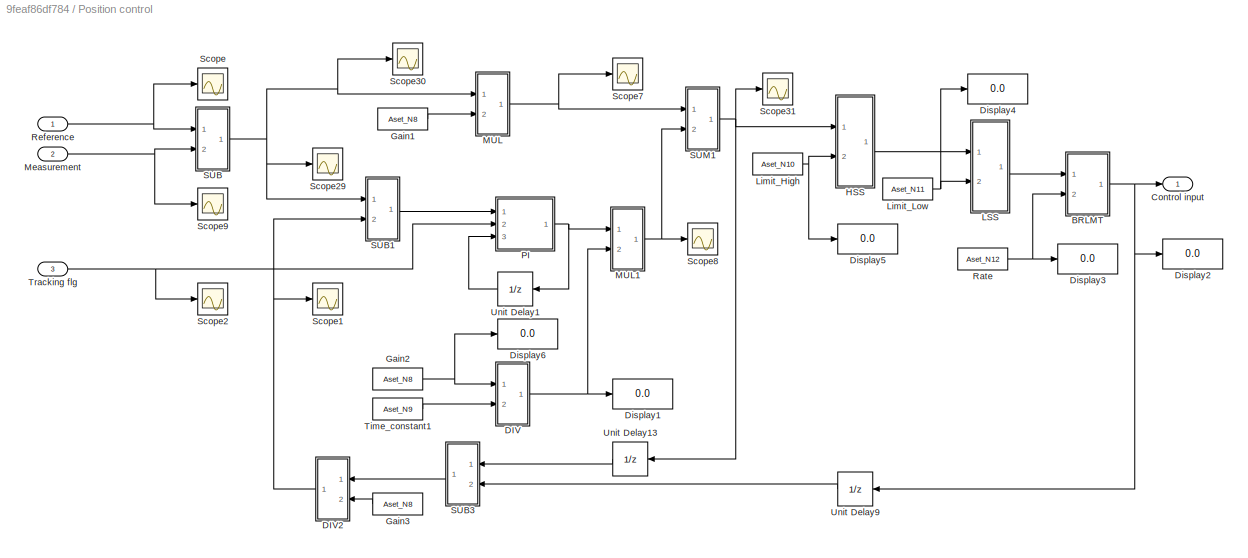
BLOCK [SubSystem] Position control
  Ports = [3, 1]
  RequestExecContextInheritance = off
BLOCK [SubSystem] Position control/BRLMT
  Ports = [2, 1]
  RequestExecContextInheritance = off
BLOCK [SubSystem] Position control/BRLMT/BRLMT
  ErrorFcn = Stateflow.Translate.translate
  PermitHierarchicalResolution = ExplicitOnly
  Ports = [2, 1]
  RequestExecContextInheritance = off
  SFBlockType = MATLAB Function
  TreatAsAtomicUnit = on
BLOCK [Demux] Position control/BRLMT/BRLMT/ Demux 
  Outputs = 1
  Ports = [1, 1]
BLOCK [S-Function] Position control/BRLMT/BRLMT/ SFunction 
  EnableBusSupport = off
  FunctionName = sf_sfun
  PortCounts = [2 2]
  Ports = [2, 2]
  SFcnIsStateOwnerBlock = off
  SFunctionDeploymentMode = off
  Tag = Stateflow S-Function 77
BLOCK [Terminator] Position control/BRLMT/BRLMT/ Terminator 
BLOCK [Inport] Position control/BRLMT/BRLMT/old
  IconDisplay = Port number
  Port = 2
BLOCK [Inport] Position control/BRLMT/BRLMT/u
  IconDisplay = Port number
BLOCK [Outport] Position control/BRLMT/BRLMT/y
  IconDisplay = Port number
BLOCK [Display] Position control/BRLMT/Display
  Decimation = 1
  Ports = [1]
BLOCK [Inport] Position control/BRLMT/In1
  IconDisplay = Port number
BLOCK [Inport] Position control/BRLMT/In2
  IconDisplay = Port number
  Port = 2
BLOCK [Memory] Position control/BRLMT/Memory
  InheritSampleTime = on
  LinearizeAsDelay = on
  LinearizeMemory = on
BLOCK [Mux] Position control/BRLMT/Mux1
  DisplayOption = bar
  Inputs = 3
  Ports = [3, 1]
BLOCK [Outport] Position control/BRLMT/Out1
  IconDisplay = Port number
  VectorParamsAs1DForOutWhenUnconnected = off
BLOCK [Constant] Position control/BRLMT/dt
  OutDataTypeStr = double
  SampleTime = Sample_time
  Value = Sample_time
BLOCK [Outport] Position control/Control input
  IconDisplay = Port number
  VectorParamsAs1DForOutWhenUnconnected = off
BLOCK [SubSystem] Position control/DIV
  Ports = [2, 1]
  RequestExecContextInheritance = off
BLOCK [SubSystem] Position control/DIV/DIV
  ErrorFcn = Stateflow.Translate.translate
  PermitHierarchicalResolution = ExplicitOnly
  Ports = [1, 1]
  RequestExecContextInheritance = off
  SFBlockType = MATLAB Function
  TreatAsAtomicUnit = on
BLOCK [Demux] Position control/DIV/DIV/ Demux 
  Outputs = 1
  Ports = [1, 1]
BLOCK [S-Function] Position control/DIV/DIV/ SFunction 
  EnableBusSupport = off
  FunctionName = sf_sfun
  PortCounts = [1 2]
  Ports = [1, 2]
  SFcnIsStateOwnerBlock = off
  SFunctionDeploymentMode = off
  Tag = Stateflow S-Function 78
BLOCK [Terminator] Position control/DIV/DIV/ Terminator 
BLOCK [Inport] Position control/DIV/DIV/u
  IconDisplay = Port number
BLOCK [Outport] Position control/DIV/DIV/y
  IconDisplay = Port number
BLOCK [Display] Position control/DIV/Display
  Decimation = 1
  Ports = [1]
BLOCK [Display] Position control/DIV/Display1
  Decimation = 1
  Ports = [1]
BLOCK [Constant] Position control/DIV/FlowMax1
  OutDataTypeStr = double
  SampleTime = Sample_time
  Value = 3.402823e+38
BLOCK [Inport] Position control/DIV/In1
  IconDisplay = Port number
BLOCK [Inport] Position control/DIV/In2
  IconDisplay = Port number
  Port = 2
BLOCK [Mux] Position control/DIV/Mux
  DisplayOption = bar
  Inputs = 3
  Ports = [3, 1]
BLOCK [Outport] Position control/DIV/Out1
  IconDisplay = Port number
  VectorParamsAs1DForOutWhenUnconnected = off
BLOCK [SubSystem] Position control/DIV2
  Ports = [2, 1]
  RequestExecContextInheritance = off
BLOCK [SubSystem] Position control/DIV2/DIV
  ErrorFcn = Stateflow.Translate.translate
  PermitHierarchicalResolution = ExplicitOnly
  Ports = [1, 1]
  RequestExecContextInheritance = off
  SFBlockType = MATLAB Function
  TreatAsAtomicUnit = on
BLOCK [Demux] Position control/DIV2/DIV/ Demux 
  Outputs = 1
  Ports = [1, 1]
BLOCK [S-Function] Position control/DIV2/DIV/ SFunction 
  EnableBusSupport = off
  FunctionName = sf_sfun
  PortCounts = [1 2]
  Ports = [1, 2]
  SFcnIsStateOwnerBlock = off
  SFunctionDeploymentMode = off
  Tag = Stateflow S-Function 79
BLOCK [Terminator] Position control/DIV2/DIV/ Terminator 
BLOCK [Inport] Position control/DIV2/DIV/u
  IconDisplay = Port number
BLOCK [Outport] Position control/DIV2/DIV/y
  IconDisplay = Port number
BLOCK [Display] Position control/DIV2/Display
  Decimation = 1
  Ports = [1]
BLOCK [Display] Position control/DIV2/Display1
  Decimation = 1
  Ports = [1]
BLOCK [Constant] Position control/DIV2/FlowMax1
  OutDataTypeStr = double
  SampleTime = Sample_time
  Value = 3.402823e+38
BLOCK [Inport] Position control/DIV2/In1
  IconDisplay = Port number
BLOCK [Inport] Position control/DIV2/In2
  IconDisplay = Port number
  Port = 2
BLOCK [Mux] Position control/DIV2/Mux
  DisplayOption = bar
  Inputs = 3
  Ports = [3, 1]
BLOCK [Outport] Position control/DIV2/Out1
  IconDisplay = Port number
  VectorParamsAs1DForOutWhenUnconnected = off
BLOCK [Display] Position control/Display1
  Decimation = 1
  Ports = [1]
BLOCK [Display] Position control/Display2
  Decimation = 1
  Ports = [1]
BLOCK [Display] Position control/Display3
  Decimation = 1
  Ports = [1]
BLOCK [Display] Position control/Display4
  Decimation = 1
  Ports = [1]
BLOCK [Display] Position control/Display5
  Decimation = 1
  Ports = [1]
BLOCK [Display] Position control/Display6
  Decimation = 1
  Ports = [1]
BLOCK [Constant] Position control/Gain1
  OutDataTypeStr = double
  SampleTime = Sample_time
  Value = Aset_N8
BLOCK [Constant] Position control/Gain2
  OutDataTypeStr = double
  SampleTime = Sample_time
  Value = Aset_N8
BLOCK [Constant] Position control/Gain3
  OutDataTypeStr = double
  SampleTime = Sample_time
  Value = Aset_N8
BLOCK [SubSystem] Position control/HSS
  Ports = [2, 1]
  RequestExecContextInheritance = off
BLOCK [SubSystem] Position control/HSS/HSS
  ErrorFcn = Stateflow.Translate.translate
  PermitHierarchicalResolution = ExplicitOnly
  Ports = [1, 1]
  RequestExecContextInheritance = off
  SFBlockType = MATLAB Function
  TreatAsAtomicUnit = on
BLOCK [Demux] Position control/HSS/HSS/ Demux 
  Outputs = 1
  Ports = [1, 1]
BLOCK [S-Function] Position control/HSS/HSS/ SFunction 
  EnableBusSupport = off
  FunctionName = sf_sfun
  PortCounts = [1 2]
  Ports = [1, 2]
  SFcnIsStateOwnerBlock = off
  SFunctionDeploymentMode = off
  Tag = Stateflow S-Function 80
BLOCK [Terminator] Position control/HSS/HSS/ Terminator 
BLOCK [Inport] Position control/HSS/HSS/u
  IconDisplay = Port number
BLOCK [Outport] Position control/HSS/HSS/y
  IconDisplay = Port number
BLOCK [Inport] Position control/HSS/In1
  IconDisplay = Port number
BLOCK [Inport] Position control/HSS/In2
  IconDisplay = Port number
  Port = 2
BLOCK [Mux] Position control/HSS/Mux
  DisplayOption = bar
  Inputs = 2
  Ports = [2, 1]
BLOCK [Outport] Position control/HSS/Out1
  IconDisplay = Port number
  VectorParamsAs1DForOutWhenUnconnected = off
BLOCK [SubSystem] Position control/LSS
  Ports = [2, 1]
  RequestExecContextInheritance = off
BLOCK [Inport] Position control/LSS/In1
  IconDisplay = Port number
BLOCK [Inport] Position control/LSS/In2
  IconDisplay = Port number
  Port = 2
BLOCK [SubSystem] Position control/LSS/LSS
  ErrorFcn = Stateflow.Translate.translate
  PermitHierarchicalResolution = ExplicitOnly
  Ports = [1, 1]
  RequestExecContextInheritance = off
  SFBlockType = MATLAB Function
  TreatAsAtomicUnit = on
BLOCK [Demux] Position control/LSS/LSS/ Demux 
  Outputs = 1
  Ports = [1, 1]
BLOCK [S-Function] Position control/LSS/LSS/ SFunction 
  EnableBusSupport = off
  FunctionName = sf_sfun
  PortCounts = [1 2]
  Ports = [1, 2]
  SFcnIsStateOwnerBlock = off
  SFunctionDeploymentMode = off
  Tag = Stateflow S-Function 81
BLOCK [Terminator] Position control/LSS/LSS/ Terminator 
BLOCK [Inport] Position control/LSS/LSS/u
  IconDisplay = Port number
BLOCK [Outport] Position control/LSS/LSS/y
  IconDisplay = Port number
BLOCK [Mux] Position control/LSS/Mux
  DisplayOption = bar
  Inputs = 2
  Ports = [2, 1]
BLOCK [Outport] Position control/LSS/Out1
  IconDisplay = Port number
  VectorParamsAs1DForOutWhenUnconnected = off
BLOCK [Constant] Position control/Limit_High
  OutDataTypeStr = double
  SampleTime = Sample_time
  Value = Aset_N10
BLOCK [Constant] Position control/Limit_Low
  OutDataTypeStr = double
  SampleTime = Sample_time
  Value = Aset_N11
BLOCK [SubSystem] Position control/MUL
  Ports = [2, 1]
  RequestExecContextInheritance = off
BLOCK [Inport] Position control/MUL/In1
  IconDisplay = Port number
BLOCK [Inport] Position control/MUL/In2
  IconDisplay = Port number
  Port = 2
BLOCK [SubSystem] Position control/MUL/MUL
  ErrorFcn = Stateflow.Translate.translate
  PermitHierarchicalResolution = ExplicitOnly
  Ports = [1, 1]
  RequestExecContextInheritance = off
  SFBlockType = MATLAB Function
  TreatAsAtomicUnit = on
BLOCK [Demux] Position control/MUL/MUL/ Demux 
  Outputs = 1
  Ports = [1, 1]
BLOCK [S-Function] Position control/MUL/MUL/ SFunction 
  EnableBusSupport = off
  FunctionName = sf_sfun
  PortCounts = [1 2]
  Ports = [1, 2]
  SFcnIsStateOwnerBlock = off
  SFunctionDeploymentMode = off
  Tag = Stateflow S-Function 82
BLOCK [Terminator] Position control/MUL/MUL/ Terminator 
BLOCK [Inport] Position control/MUL/MUL/u
  IconDisplay = Port number
BLOCK [Outport] Position control/MUL/MUL/y
  IconDisplay = Port number
BLOCK [Mux] Position control/MUL/Mux
  DisplayOption = bar
  Inputs = 2
  Ports = [2, 1]
BLOCK [Outport] Position control/MUL/Out
  IconDisplay = Port number
  VectorParamsAs1DForOutWhenUnconnected = off
BLOCK [SubSystem] Position control/MUL1
  Ports = [2, 1]
  RequestExecContextInheritance = off
BLOCK [Inport] Position control/MUL1/In1
  IconDisplay = Port number
BLOCK [Inport] Position control/MUL1/In2
  IconDisplay = Port number
  Port = 2
BLOCK [SubSystem] Position control/MUL1/MUL
  ErrorFcn = Stateflow.Translate.translate
  PermitHierarchicalResolution = ExplicitOnly
  Ports = [1, 1]
  RequestExecContextInheritance = off
  SFBlockType = MATLAB Function
  TreatAsAtomicUnit = on
BLOCK [Demux] Position control/MUL1/MUL/ Demux 
  Outputs = 1
  Ports = [1, 1]
BLOCK [S-Function] Position control/MUL1/MUL/ SFunction 
  EnableBusSupport = off
  FunctionName = sf_sfun
  PortCounts = [1 2]
  Ports = [1, 2]
  SFcnIsStateOwnerBlock = off
  SFunctionDeploymentMode = off
  Tag = Stateflow S-Function 83
BLOCK [Terminator] Position control/MUL1/MUL/ Terminator 
BLOCK [Inport] Position control/MUL1/MUL/u
  IconDisplay = Port number
BLOCK [Outport] Position control/MUL1/MUL/y
  IconDisplay = Port number
BLOCK [Mux] Position control/MUL1/Mux
  DisplayOption = bar
  Inputs = 2
  Ports = [2, 1]
BLOCK [Outport] Position control/MUL1/Out
  IconDisplay = Port number
  VectorParamsAs1DForOutWhenUnconnected = off
BLOCK [Inport] Position control/Measurement
  IconDisplay = Port number
  Port = 2
BLOCK [SubSystem] Position control/PI
  Ports = [3, 1]
  RequestExecContextInheritance = off
BLOCK [DataTypeConversion] Position control/PI/Cast To Double
  OutDataTypeStr = double
  RndMeth = Floor
  SaturateOnIntegerOverflow = off
BLOCK [Inport] Position control/PI/In
  IconDisplay = Port number
BLOCK [Memory] Position control/PI/Memory
  InheritSampleTime = on
BLOCK [Mux] Position control/PI/Mux
  DisplayOption = bar
  Ports = [4, 1]
BLOCK [Outport] Position control/PI/Out1
  IconDisplay = Port number
  VectorParamsAs1DForOutWhenUnconnected = off
BLOCK [SubSystem] Position control/PI/PI
  ErrorFcn = Stateflow.Translate.translate
  PermitHierarchicalResolution = ExplicitOnly
  Ports = [2, 1]
  RequestExecContextInheritance = off
  SFBlockType = MATLAB Function
  TreatAsAtomicUnit = on
BLOCK [Demux] Position control/PI/PI/ Demux 
  Outputs = 1
  Ports = [1, 1]
BLOCK [S-Function] Position control/PI/PI/ SFunction 
  EnableBusSupport = off
  FunctionName = sf_sfun
  PortCounts = [2 2]
  Ports = [2, 2]
  SFcnIsStateOwnerBlock = off
  SFunctionDeploymentMode = off
  Tag = Stateflow S-Function 84
BLOCK [Terminator] Position control/PI/PI/ Terminator 
BLOCK [Inport] Position control/PI/PI/old
  IconDisplay = Port number
  Port = 2
BLOCK [Inport] Position control/PI/PI/u
  IconDisplay = Port number
BLOCK [Outport] Position control/PI/PI/y
  IconDisplay = Port number
BLOCK [Inport] Position control/PI/R_v
  IconDisplay = Port number
  Port = 3
BLOCK [Inport] Position control/PI/Reset
  IconDisplay = Port number
  Port = 2
BLOCK [Constant] Position control/PI/dt
  OutDataTypeStr = double
  SampleTime = Sample_time
  Value = Sample_time
BLOCK [Constant] Position control/Rate
  OutDataTypeStr = double
  SampleTime = Sample_time
  Value = Aset_N12
BLOCK [Inport] Position control/Reference
  IconDisplay = Port number
BLOCK [SubSystem] Position control/SUB
  Ports = [2, 1]
  RequestExecContextInheritance = off
BLOCK [Inport] Position control/SUB/In1
  IconDisplay = Port number
BLOCK [Inport] Position control/SUB/In2
  IconDisplay = Port number
  Port = 2
BLOCK [Mux] Position control/SUB/Mux
  DisplayOption = bar
  Inputs = 2
  Ports = [2, 1]
BLOCK [Outport] Position control/SUB/Out
  IconDisplay = Port number
  VectorParamsAs1DForOutWhenUnconnected = off
BLOCK [SubSystem] Position control/SUB/SUB
  ErrorFcn = Stateflow.Translate.translate
  PermitHierarchicalResolution = ExplicitOnly
  Ports = [1, 1]
  RequestExecContextInheritance = off
  SFBlockType = MATLAB Function
  TreatAsAtomicUnit = on
BLOCK [Demux] Position control/SUB/SUB/ Demux 
  Outputs = 1
  Ports = [1, 1]
BLOCK [S-Function] Position control/SUB/SUB/ SFunction 
  EnableBusSupport = off
  FunctionName = sf_sfun
  PortCounts = [1 2]
  Ports = [1, 2]
  SFcnIsStateOwnerBlock = off
  SFunctionDeploymentMode = off
  Tag = Stateflow S-Function 85
BLOCK [Terminator] Position control/SUB/SUB/ Terminator 
BLOCK [Inport] Position control/SUB/SUB/u
  IconDisplay = Port number
BLOCK [Outport] Position control/SUB/SUB/y
  IconDisplay = Port number
BLOCK [SubSystem] Position control/SUB1
  Ports = [2, 1]
  RequestExecContextInheritance = off
BLOCK [Inport] Position control/SUB1/In1
  IconDisplay = Port number
BLOCK [Inport] Position control/SUB1/In2
  IconDisplay = Port number
  Port = 2
BLOCK [Mux] Position control/SUB1/Mux
  DisplayOption = bar
  Inputs = 2
  Ports = [2, 1]
BLOCK [Outport] Position control/SUB1/Out
  IconDisplay = Port number
  VectorParamsAs1DForOutWhenUnconnected = off
BLOCK [SubSystem] Position control/SUB1/SUB
  ErrorFcn = Stateflow.Translate.translate
  PermitHierarchicalResolution = ExplicitOnly
  Ports = [1, 1]
  RequestExecContextInheritance = off
  SFBlockType = MATLAB Function
  TreatAsAtomicUnit = on
BLOCK [Demux] Position control/SUB1/SUB/ Demux 
  Outputs = 1
  Ports = [1, 1]
BLOCK [S-Function] Position control/SUB1/SUB/ SFunction 
  EnableBusSupport = off
  FunctionName = sf_sfun
  PortCounts = [1 2]
  Ports = [1, 2]
  SFcnIsStateOwnerBlock = off
  SFunctionDeploymentMode = off
  Tag = Stateflow S-Function 86
BLOCK [Terminator] Position control/SUB1/SUB/ Terminator 
BLOCK [Inport] Position control/SUB1/SUB/u
  IconDisplay = Port number
BLOCK [Outport] Position control/SUB1/SUB/y
  IconDisplay = Port number
BLOCK [SubSystem] Position control/SUB3
  Ports = [2, 1]
  RequestExecContextInheritance = off
BLOCK [Inport] Position control/SUB3/In1
  IconDisplay = Port number
BLOCK [Inport] Position control/SUB3/In2
  IconDisplay = Port number
  Port = 2
BLOCK [Mux] Position control/SUB3/Mux
  DisplayOption = bar
  Inputs = 2
  Ports = [2, 1]
BLOCK [Outport] Position control/SUB3/Out
  IconDisplay = Port number
  VectorParamsAs1DForOutWhenUnconnected = off
BLOCK [SubSystem] Position control/SUB3/SUB
  ErrorFcn = Stateflow.Translate.translate
  PermitHierarchicalResolution = ExplicitOnly
  Ports = [1, 1]
  RequestExecContextInheritance = off
  SFBlockType = MATLAB Function
  TreatAsAtomicUnit = on
BLOCK [Demux] Position control/SUB3/SUB/ Demux 
  Outputs = 1
  Ports = [1, 1]
BLOCK [S-Function] Position control/SUB3/SUB/ SFunction 
  EnableBusSupport = off
  FunctionName = sf_sfun
  PortCounts = [1 2]
  Ports = [1, 2]
  SFcnIsStateOwnerBlock = off
  SFunctionDeploymentMode = off
  Tag = Stateflow S-Function 87
BLOCK [Terminator] Position control/SUB3/SUB/ Terminator 
BLOCK [Inport] Position control/SUB3/SUB/u
  IconDisplay = Port number
BLOCK [Outport] Position control/SUB3/SUB/y
  IconDisplay = Port number
BLOCK [SubSystem] Position control/SUM1
  Ports = [2, 1]
  RequestExecContextInheritance = off
BLOCK [Inport] Position control/SUM1/In1
  IconDisplay = Port number
BLOCK [Inport] Position control/SUM1/In2
  IconDisplay = Port number
  Port = 2
BLOCK [Mux] Position control/SUM1/Mux
  DisplayOption = bar
  Inputs = 2
  Ports = [2, 1]
BLOCK [Outport] Position control/SUM1/Out
  IconDisplay = Port number
  VectorParamsAs1DForOutWhenUnconnected = off
BLOCK [SubSystem] Position control/SUM1/SUM
  ErrorFcn = Stateflow.Translate.translate
  PermitHierarchicalResolution = ExplicitOnly
  Ports = [1, 1]
  RequestExecContextInheritance = off
  SFBlockType = MATLAB Function
  TreatAsAtomicUnit = on
BLOCK [Demux] Position control/SUM1/SUM/ Demux 
  Outputs = 1
  Ports = [1, 1]
BLOCK [S-Function] Position control/SUM1/SUM/ SFunction 
  EnableBusSupport = off
  FunctionName = sf_sfun
  PortCounts = [1 2]
  Ports = [1, 2]
  SFcnIsStateOwnerBlock = off
  SFunctionDeploymentMode = off
  Tag = Stateflow S-Function 88
BLOCK [Terminator] Position control/SUM1/SUM/ Terminator 
BLOCK [Inport] Position control/SUM1/SUM/u
  IconDisplay = Port number
BLOCK [Outport] Position control/SUM1/SUM/y
  IconDisplay = Port number
BLOCK [Scope] Position control/Scope
  Floating = off
  NumInputPorts = 1
  Ports = [1]
  ScopeSpecificationString = Simulink.scopes.TimeScopeBlockCfg('CurrentConfiguration', extmgr.ConfigurationSet(extmgr.Configuration('Core','General UI',true),extmgr.Configuration('Core','Source UI',true),extmgr.Configuration('Sources','WiredSimulink',true,'DataLoggingVariableName','ScopeData1'),extmgr.Configuration('Visuals','Time Domain',true,'SerializedDisplays',{struct('MinYLimReal','-0.125','MaxYLimReal','1.125','YLabelRe...<+1391ch>
BLOCK [Scope] Position control/Scope1
  Floating = off
  NumInputPorts = 1
  Ports = [1]
  ScopeSpecificationString = Simulink.scopes.TimeScopeBlockCfg('CurrentConfiguration', extmgr.ConfigurationSet(extmgr.Configuration('Core','General UI',true),extmgr.Configuration('Core','Source UI',true),extmgr.Configuration('Sources','WiredSimulink',true,'DataLoggingVariableName','ScopeData19'),extmgr.Configuration('Visuals','Time Domain',true,'SerializedDisplays',{struct('MinYLimReal','-5937656447120036675915994526215055332...<+2425ch>
BLOCK [Scope] Position control/Scope2
  Floating = off
  NumInputPorts = 1
  Ports = [1]
  ScopeSpecificationString = Simulink.scopes.TimeScopeBlockCfg('CurrentConfiguration', extmgr.ConfigurationSet(extmgr.Configuration('Core','General UI',true),extmgr.Configuration('Core','Source UI',true),extmgr.Configuration('Sources','WiredSimulink',true,'DataLoggingVariableName','ScopeData2'),extmgr.Configuration('Visuals','Time Domain',true,'SerializedDisplays',{struct('MinYLimReal','-0.04563','MaxYLimReal','1.12061','YLab...<+1432ch>
BLOCK [Scope] Position control/Scope29
  Floating = off
  NumInputPorts = 1
  Ports = [1]
  ScopeSpecificationString = Simulink.scopes.TimeScopeBlockCfg('CurrentConfiguration', extmgr.ConfigurationSet(extmgr.Configuration('Core','General UI',true),extmgr.Configuration('Core','Source UI',true),extmgr.Configuration('Sources','WiredSimulink',true,'DataLoggingVariableName','ScopeData32'),extmgr.Configuration('Visuals','Time Domain',true,'SerializedDisplays',{struct('MinYLimReal','-0.98805','MaxYLimReal','-0.80781','YL...<+1438ch>
BLOCK [Scope] Position control/Scope30
  Floating = off
  NumInputPorts = 1
  Ports = [1]
  ScopeSpecificationString = Simulink.scopes.TimeScopeBlockCfg('CurrentConfiguration', extmgr.ConfigurationSet(extmgr.Configuration('Core','General UI',true),extmgr.Configuration('Core','Source UI',true),extmgr.Configuration('Sources','WiredSimulink',true,'DataLoggingVariableName','ScopeData33'),extmgr.Configuration('Visuals','Time Domain',true,'SerializedDisplays',{struct('MinYLimReal','-1.25','MaxYLimReal','1.25','YLabelRea...<+1415ch>
BLOCK [Scope] Position control/Scope31
  Floating = off
  NumInputPorts = 1
  Ports = [1]
  ScopeSpecificationString = Simulink.scopes.TimeScopeBlockCfg('CurrentConfiguration', extmgr.ConfigurationSet(extmgr.Configuration('Core','General UI',true),extmgr.Configuration('Core','Source UI',true),extmgr.Configuration('Sources','WiredSimulink',true,'DataLoggingVariableName','ScopeData34'),extmgr.Configuration('Visuals','Time Domain',true,'SerializedDisplays',{struct('MinYLimReal','-2375062578848014670366397810486022132...<+2432ch>
BLOCK [Scope] Position control/Scope7
  Floating = off
  NumInputPorts = 1
  Ports = [1]
  ScopeSpecificationString = Simulink.scopes.TimeScopeBlockCfg('CurrentConfiguration', extmgr.ConfigurationSet(extmgr.Configuration('Core','General UI',true),extmgr.Configuration('Core','Source UI',true),extmgr.Configuration('Sources','WiredSimulink',true,'DataLoggingVariableName','ScopeData7'),extmgr.Configuration('Visuals','Time Domain',true,'SerializedDisplays',{struct('MinYLimReal','-0.5','MaxYLimReal','4.5','YLabelReal',...<+1411ch>
BLOCK [Scope] Position control/Scope8
  Floating = off
  NumInputPorts = 1
  Ports = [1]
  ScopeSpecificationString = Simulink.scopes.TimeScopeBlockCfg('CurrentConfiguration', extmgr.ConfigurationSet(extmgr.Configuration('Core','General UI',true),extmgr.Configuration('Core','Source UI',true),extmgr.Configuration('Sources','WiredSimulink',true,'DataLoggingVariableName','ScopeData8'),extmgr.Configuration('Visuals','Time Domain',true,'SerializedDisplays',{struct('MinYLimReal','-26389584209422380529208143457733790142...<+2430ch>
BLOCK [Scope] Position control/Scope9
  Floating = off
  NumInputPorts = 1
  Ports = [1]
  ScopeSpecificationString = Simulink.scopes.TimeScopeBlockCfg('CurrentConfiguration', extmgr.ConfigurationSet(extmgr.Configuration('Core','General UI',true),extmgr.Configuration('Core','Source UI',true),extmgr.Configuration('Sources','WiredSimulink',true,'DataLoggingVariableName','ScopeData9'),extmgr.Configuration('Visuals','Time Domain',true,'SerializedDisplays',{struct('MinYLimReal','-0.125','MaxYLimReal','1.125','YLabelRe...<+1420ch>
BLOCK [Constant] Position control/Time_constant1
  OutDataTypeStr = double
  SampleTime = Sample_time
  Value = Aset_N9
BLOCK [Inport] Position control/Tracking flg
  IconDisplay = Port number
  Port = 3
BLOCK [UnitDelay] Position control/Unit Delay1
  HasFrameUpgradeWarning = on
  SampleTime = Sample_time
BLOCK [UnitDelay] Position control/Unit Delay13
  HasFrameUpgradeWarning = on
  SampleTime = Sample_time
BLOCK [UnitDelay] Position control/Unit Delay9
  HasFrameUpgradeWarning = on
  SampleTime = Sample_time
BLOCK [Constant] Position_delta
  OutDataTypeStr = double
  SampleTime = Sample_time
  Value = Aset_N7
BLOCK [Constant] Position_ref_close
  OutDataTypeStr = double
  SampleTime = Sample_time
  Value = Aset_N6
BLOCK [Constant] Position_ref_close1
  OutDataTypeStr = double
  SampleTime = Sample_time
  Value = Aset_N6
BLOCK [Constant] Position_ref_open
  OutDataTypeStr = double
  SampleTime = Sample_time
  Value = Aset_N5
BLOCK [ToWorkspace] Position_reference[m]
  FixptAsFi = on
  MaxDataPoints = inf
  Ports = [1]
  SampleTime = Sample_time
  VariableName = Aout_N3
BLOCK [Outport] Position_reference_out
  IconDisplay = Port number
  Port = 3
  SampleTime = Sample_time
  VectorParamsAs1DForOutWhenUnconnected = off
BLOCK [Inport] Position_sensor[m]
  IconDisplay = Port number
  OutDataTypeStr = double
  PortDimensions = 1
  SampleTime = Sample_time
  Unit = mm
BLOCK [Inport] Pressure_sensor[kPa]
  IconDisplay = Port number
  OutDataTypeStr = double
  Port = 3
  PortDimensions = 1
  SampleTime = Sample_time
  Unit = kPa
BLOCK [RateTransition] Rate Transition
  OutPortSampleTime = Sample_time
BLOCK [RateTransition] Rate Transition1
  OutPortSampleTime = Sample_time
BLOCK [RateTransition] Rate Transition2
  OutPortSampleTime = Sample_time
BLOCK [RateTransition] Rate Transition3
  OutPortSampleTime = Sample_time
BLOCK [RateTransition] Rate Transition4
  OutPortSampleTime = Sample_time
BLOCK [RateTransition] Rate Transition5
  OutPortSampleTime = Sample_time
BLOCK [RateTransition] Rate Transition6
  OutPortSampleTime = Sample_time
BLOCK [RateTransition] Rate Transition7
  OutPortSampleTime = Sample_time
BLOCK [SubSystem] SUB
  Ports = [2, 1]
  RequestExecContextInheritance = off
BLOCK [Inport] SUB/In1
  IconDisplay = Port number
BLOCK [Inport] SUB/In2
  IconDisplay = Port number
  Port = 2
BLOCK [Mux] SUB/Mux
  DisplayOption = bar
  Inputs = 2
  Ports = [2, 1]
BLOCK [Outport] SUB/Out
  IconDisplay = Port number
  VectorParamsAs1DForOutWhenUnconnected = off
BLOCK [SubSystem] SUB/SUB
  ErrorFcn = Stateflow.Translate.translate
  PermitHierarchicalResolution = ExplicitOnly
  Ports = [1, 1]
  RequestExecContextInheritance = off
  SFBlockType = MATLAB Function
  TreatAsAtomicUnit = on
BLOCK [Demux] SUB/SUB/ Demux 
  Outputs = 1
  Ports = [1, 1]
BLOCK [S-Function] SUB/SUB/ SFunction 
  EnableBusSupport = off
  FunctionName = sf_sfun
  PortCounts = [1 2]
  Ports = [1, 2]
  SFcnIsStateOwnerBlock = off
  SFunctionDeploymentMode = off
  Tag = Stateflow S-Function 12
BLOCK [Terminator] SUB/SUB/ Terminator 
BLOCK [Inport] SUB/SUB/u
  IconDisplay = Port number
BLOCK [Outport] SUB/SUB/y
  IconDisplay = Port number
BLOCK [Scope] Scope1
  Floating = off
  NumInputPorts = 1
  Ports = [1]
  ScopeSpecificationString = Simulink.scopes.TimeScopeBlockCfg('CurrentConfiguration', extmgr.ConfigurationSet(extmgr.Configuration('Core','General UI',true),extmgr.Configuration('Core','Source UI',true),extmgr.Configuration('Sources','WiredSimulink',true,'DataLoggingVariableName','ScopeData2'),extmgr.Configuration('Visuals','Time Domain',true,'SerializedDisplays',{struct('MinYLimReal','-0.125','MaxYLimReal','1.125','YLabelRe...<+1439ch>
BLOCK [Scope] Scope10
  Floating = off
  NumInputPorts = 1
  Ports = [1]
  ScopeSpecificationString = Simulink.scopes.TimeScopeBlockCfg('CurrentConfiguration', extmgr.ConfigurationSet(extmgr.Configuration('Core','General UI',true),extmgr.Configuration('Core','Source UI',true),extmgr.Configuration('Sources','WiredSimulink',true,'DataLoggingVariableName','ScopeData6'),extmgr.Configuration('Visuals','Time Domain',true,'SerializedDisplays',{struct('MinYLimReal','-0.125','MaxYLimReal','1.04063','YLabel...<+1425ch>
BLOCK [Scope] Scope11
  Floating = off
  NumInputPorts = 1
  Ports = [1]
  ScopeSpecificationString = Simulink.scopes.TimeScopeBlockCfg('CurrentConfiguration', extmgr.ConfigurationSet(extmgr.Configuration('Core','General UI',true),extmgr.Configuration('Core','Source UI',true),extmgr.Configuration('Sources','WiredSimulink',true,'DataLoggingVariableName','ScopeData7'),extmgr.Configuration('Visuals','Time Domain',true,'SerializedDisplays',{struct('MinYLimReal','-0.125','MaxYLimReal','1.125','YLabelRe...<+1432ch>
BLOCK [Scope] Scope12
  Floating = off
  NumInputPorts = 1
  Ports = [1]
  ScopeSpecificationString = Simulink.scopes.TimeScopeBlockCfg('CurrentConfiguration', extmgr.ConfigurationSet(extmgr.Configuration('Core','General UI',true),extmgr.Configuration('Core','Source UI',true),extmgr.Configuration('Sources','WiredSimulink',true,'DataLoggingVariableName','ScopeData12'),extmgr.Configuration('Visuals','Time Domain',true,'SerializedDisplays',{struct('MinYLimReal','-0.125','MaxYLimReal','1.125','YLabelR...<+1425ch>
BLOCK [Scope] Scope13
  Floating = off
  NumInputPorts = 1
  Ports = [1]
  ScopeSpecificationString = Simulink.scopes.TimeScopeBlockCfg('CurrentConfiguration', extmgr.ConfigurationSet(extmgr.Configuration('Core','General UI',true),extmgr.Configuration('Core','Source UI',true),extmgr.Configuration('Sources','WiredSimulink',true,'DataLoggingVariableName','ScopeData13'),extmgr.Configuration('Visuals','Time Domain',true,'SerializedDisplays',{struct('MinYLimReal','-0.125','MaxYLimReal','1.125','YLabelR...<+1425ch>
BLOCK [Scope] Scope14
  Floating = off
  NumInputPorts = 1
  Ports = [1]
  ScopeSpecificationString = Simulink.scopes.TimeScopeBlockCfg('CurrentConfiguration', extmgr.ConfigurationSet(extmgr.Configuration('Core','General UI',true),extmgr.Configuration('Core','Source UI',true),extmgr.Configuration('Sources','WiredSimulink',true,'DataLoggingVariableName','ScopeData8'),extmgr.Configuration('Visuals','Time Domain',true,'SerializedDisplays',{struct('MinYLimReal','-0.125','MaxYLimReal','1.125','YLabelRe...<+1441ch>
BLOCK [Scope] Scope15
  Floating = off
  NumInputPorts = 1
  Ports = [1]
  ScopeSpecificationString = Simulink.scopes.TimeScopeBlockCfg('CurrentConfiguration', extmgr.ConfigurationSet(extmgr.Configuration('Core','General UI',true),extmgr.Configuration('Core','Source UI',true),extmgr.Configuration('Sources','WiredSimulink',true,'DataLoggingVariableName','ScopeData9'),extmgr.Configuration('Visuals','Time Domain',true,'SerializedDisplays',{struct('MinYLimReal','-0.125','MaxYLimReal','1.125','YLabelRe...<+1417ch>
BLOCK [Scope] Scope17
  Floating = off
  NumInputPorts = 1
  Ports = [1]
  ScopeSpecificationString = Simulink.scopes.TimeScopeBlockCfg('CurrentConfiguration', extmgr.ConfigurationSet(extmgr.Configuration('Core','General UI',true),extmgr.Configuration('Core','Source UI',true),extmgr.Configuration('Sources','WiredSimulink',true,'DataLoggingVariableName','ScopeData17'),extmgr.Configuration('Visuals','Time Domain',true,'SerializedDisplays',{struct('MinYLimReal','-0.000028','MaxYLimReal','0.000015','Y...<+1445ch>
BLOCK [Scope] Scope18
  Floating = off
  NumInputPorts = 1
  Ports = [1]
  ScopeSpecificationString = Simulink.scopes.TimeScopeBlockCfg('CurrentConfiguration', extmgr.ConfigurationSet(extmgr.Configuration('Core','General UI',true),extmgr.Configuration('Core','Source UI',true),extmgr.Configuration('Sources','WiredSimulink',true,'DataLoggingVariableName','ScopeData20'),extmgr.Configuration('Visuals','Time Domain',true,'SerializedDisplays',{struct('MinYLimReal','-109999.00000','MaxYLimReal','-89999.0...<+1433ch>
BLOCK [Scope] Scope19
  Floating = off
  NumInputPorts = 1
  Ports = [1]
  ScopeSpecificationString = Simulink.scopes.TimeScopeBlockCfg('CurrentConfiguration', extmgr.ConfigurationSet(extmgr.Configuration('Core','General UI',true),extmgr.Configuration('Core','Source UI',true),extmgr.Configuration('Sources','WiredSimulink',true,'DataLoggingVariableName','ScopeData21'),extmgr.Configuration('Visuals','Time Domain',true,'SerializedDisplays',{struct('MinYLimReal','0.009','MaxYLimReal','0.011','YLabelRe...<+1381ch>
BLOCK [Scope] Scope2
  Floating = off
  NumInputPorts = 1
  Ports = [1]
  ScopeSpecificationString = Simulink.scopes.TimeScopeBlockCfg('CurrentConfiguration', extmgr.ConfigurationSet(extmgr.Configuration('Core','General UI',true),extmgr.Configuration('Core','Source UI',true),extmgr.Configuration('Sources','WiredSimulink',true,'DataLoggingVariableName','ScopeData1'),extmgr.Configuration('Visuals','Time Domain',true,'SerializedDisplays',{struct('MinYLimReal','0.9','MaxYLimReal','1.1','YLabelReal','...<+1387ch>
BLOCK [Scope] Scope21
  Floating = off
  NumInputPorts = 1
  Ports = [1]
  ScopeSpecificationString = Simulink.scopes.TimeScopeBlockCfg('CurrentConfiguration', extmgr.ConfigurationSet(extmgr.Configuration('Core','General UI',true),extmgr.Configuration('Core','Source UI',true),extmgr.Configuration('Sources','WiredSimulink',true,'DataLoggingVariableName','ScopeData23'),extmgr.Configuration('Visuals','Time Domain',true,'SerializedDisplays',{struct('MinYLimReal','-0.125','MaxYLimReal','1.125','YLabelR...<+1425ch>
BLOCK [Scope] Scope22
  Floating = off
  NumInputPorts = 1
  Ports = [1]
  ScopeSpecificationString = Simulink.scopes.TimeScopeBlockCfg('CurrentConfiguration', extmgr.ConfigurationSet(extmgr.Configuration('Core','General UI',true),extmgr.Configuration('Core','Source UI',true),extmgr.Configuration('Sources','WiredSimulink',true,'DataLoggingVariableName','ScopeData25'),extmgr.Configuration('Visuals','Time Domain',true,'SerializedDisplays',{struct('MinYLimReal','-0.125','MaxYLimReal','1.125','YLabelR...<+1377ch>
BLOCK [Scope] Scope23
  Floating = off
  NumInputPorts = 1
  Ports = [1]
  ScopeSpecificationString = Simulink.scopes.TimeScopeBlockCfg('CurrentConfiguration', extmgr.ConfigurationSet(extmgr.Configuration('Core','General UI',true),extmgr.Configuration('Core','Source UI',true),extmgr.Configuration('Sources','WiredSimulink',true,'DataLoggingVariableName','ScopeData26'),extmgr.Configuration('Visuals','Time Domain',true,'SerializedDisplays',{struct('MinYLimReal','-0.125','MaxYLimReal','1.125','YLabelR...<+1398ch>
BLOCK [Scope] Scope28
  Floating = off
  NumInputPorts = 1
  Ports = [1]
  ScopeSpecificationString = Simulink.scopes.TimeScopeBlockCfg('CurrentConfiguration', extmgr.ConfigurationSet(extmgr.Configuration('Core','General UI',true),extmgr.Configuration('Core','Source UI',true),extmgr.Configuration('Sources','WiredSimulink',true,'DataLoggingVariableName','ScopeData3'),extmgr.Configuration('Visuals','Time Domain',true,'SerializedDisplays',{struct('MinYLimReal','0.9','MaxYLimReal','1.1','YLabelReal','...<+1387ch>
BLOCK [Scope] Scope29
  Floating = off
  NumInputPorts = 1
  Ports = [1]
  ScopeSpecificationString = Simulink.scopes.TimeScopeBlockCfg('CurrentConfiguration', extmgr.ConfigurationSet(extmgr.Configuration('Core','General UI',true),extmgr.Configuration('Core','Source UI',true),extmgr.Configuration('Sources','WiredSimulink',true,'DataLoggingVariableName','ScopeData4'),extmgr.Configuration('Visuals','Time Domain',true,'SerializedDisplays',{struct('MinYLimReal','-1.00000','MaxYLimReal','1.00000','YLab...<+1405ch>
BLOCK [Scope] Scope3
  Floating = off
  NumInputPorts = 1
  Ports = [1]
  ScopeSpecificationString = Simulink.scopes.TimeScopeBlockCfg('CurrentConfiguration', extmgr.ConfigurationSet(extmgr.Configuration('Core','General UI',true),extmgr.Configuration('Core','Source UI',true),extmgr.Configuration('Sources','WiredSimulink',true,'DataLoggingVariableName','ScopeData1'),extmgr.Configuration('Visuals','Time Domain',true,'SerializedDisplays',{struct('MinYLimReal','-0.125','MaxYLimReal','1.125','YLabelRe...<+1402ch>
BLOCK [Scope] Scope30
  Floating = off
  NumInputPorts = 1
  Ports = [1]
  ScopeSpecificationString = Simulink.scopes.TimeScopeBlockCfg('CurrentConfiguration', extmgr.ConfigurationSet(extmgr.Configuration('Core','General UI',true),extmgr.Configuration('Core','Source UI',true),extmgr.Configuration('Sources','WiredSimulink',true,'DataLoggingVariableName','ScopeData4'),extmgr.Configuration('Visuals','Time Domain',true,'SerializedDisplays',{struct('MinYLimReal','-0.125','MaxYLimReal','1.125','YLabelRe...<+1411ch>
BLOCK [Scope] Scope31
  Floating = off
  NumInputPorts = 1
  Ports = [1]
  ScopeSpecificationString = Simulink.scopes.TimeScopeBlockCfg('CurrentConfiguration', extmgr.ConfigurationSet(extmgr.Configuration('Core','General UI',true),extmgr.Configuration('Core','Source UI',true),extmgr.Configuration('Sources','WiredSimulink',true,'DataLoggingVariableName','ScopeData5'),extmgr.Configuration('Visuals','Time Domain',true,'SerializedDisplays',{struct('MinYLimReal','-6.25','MaxYLimReal','56.24999','YLabel...<+1447ch>
BLOCK [Scope] Scope34
  Floating = off
  NumInputPorts = 1
  Ports = [1]
  ScopeSpecificationString = Simulink.scopes.TimeScopeBlockCfg('CurrentConfiguration', extmgr.ConfigurationSet(extmgr.Configuration('Core','General UI',true),extmgr.Configuration('Core','Source UI',true),extmgr.Configuration('Sources','WiredSimulink',true,'DataLoggingVariableName','ScopeData37'),extmgr.Configuration('Visuals','Time Domain',true,'SerializedDisplays',{struct('MinYLimReal','-1.00000','MaxYLimReal','1.00000','YLa...<+1404ch>
BLOCK [Scope] Scope35
  Floating = off
  NumInputPorts = 1
  Ports = [1]
  ScopeSpecificationString = Simulink.scopes.TimeScopeBlockCfg('CurrentConfiguration', extmgr.ConfigurationSet(extmgr.Configuration('Core','General UI',true),extmgr.Configuration('Core','Source UI',true),extmgr.Configuration('Sources','WiredSimulink',true,'DataLoggingVariableName','ScopeData6'),extmgr.Configuration('Visuals','Time Domain',true,'SerializedDisplays',{struct('MinYLimReal','-0.125','MaxYLimReal','1.125','YLabelRe...<+1394ch>
BLOCK [Scope] Scope37
  Floating = off
  NumInputPorts = 1
  Ports = [1]
  ScopeSpecificationString = Simulink.scopes.TimeScopeBlockCfg('CurrentConfiguration', extmgr.ConfigurationSet(extmgr.Configuration('Core','General UI',true),extmgr.Configuration('Core','Source UI',true),extmgr.Configuration('Sources','WiredSimulink',true,'DataLoggingVariableName','ScopeData1'),extmgr.Configuration('Visuals','Time Domain',true,'SerializedDisplays',{struct('MinYLimReal','-11.25','MaxYLimReal','1.25','YLabelRea...<+1418ch>
BLOCK [Scope] Scope39
  Floating = off
  NumInputPorts = 1
  Ports = [1]
  ScopeSpecificationString = Simulink.scopes.TimeScopeBlockCfg('CurrentConfiguration', extmgr.ConfigurationSet(extmgr.Configuration('Core','General UI',true),extmgr.Configuration('Core','Source UI',true),extmgr.Configuration('Sources','WiredSimulink',true,'DataLoggingVariableName','ScopeData1'),extmgr.Configuration('Visuals','Time Domain',true,'SerializedDisplays',{struct('MinYLimReal','-0.125','MaxYLimReal','1.125','YLabelRe...<+1409ch>
BLOCK [Scope] Scope4
  Floating = off
  NumInputPorts = 1
  Ports = [1]
  ScopeSpecificationString = Simulink.scopes.TimeScopeBlockCfg('CurrentConfiguration', extmgr.ConfigurationSet(extmgr.Configuration('Core','General UI',true),extmgr.Configuration('Core','Source UI',true),extmgr.Configuration('Sources','WiredSimulink',true,'DataLoggingVariableName','ScopeData4'),extmgr.Configuration('Visuals','Time Domain',true,'SerializedDisplays',{struct('MinYLimReal','-0.125','MaxYLimReal','1.125','YLabelRe...<+1406ch>
BLOCK [Scope] Scope40
  Floating = off
  NumInputPorts = 1
  Ports = [1]
  ScopeSpecificationString = Simulink.scopes.TimeScopeBlockCfg('CurrentConfiguration', extmgr.ConfigurationSet(extmgr.Configuration('Core','General UI',true),extmgr.Configuration('Core','Source UI',true),extmgr.Configuration('Sources','WiredSimulink',true,'DataLoggingVariableName','ScopeData2'),extmgr.Configuration('Visuals','Time Domain',true,'SerializedDisplays',{struct('MinYLimReal','-0.05785','MaxYLimReal','1.06474','YLab...<+1436ch>
BLOCK [Scope] Scope41
  Floating = off
  NumInputPorts = 1
  Ports = [1]
  ScopeSpecificationString = Simulink.scopes.TimeScopeBlockCfg('CurrentConfiguration', extmgr.ConfigurationSet(extmgr.Configuration('Core','General UI',true),extmgr.Configuration('Core','Source UI',true),extmgr.Configuration('Sources','WiredSimulink',true,'DataLoggingVariableName','ScopeData3'),extmgr.Configuration('Visuals','Time Domain',true,'SerializedDisplays',{struct('MinYLimReal','-0.125','MaxYLimReal','1.04063','YLabel...<+1402ch>
BLOCK [Scope] Scope42
  Floating = off
  NumInputPorts = 1
  Ports = [1]
  ScopeSpecificationString = Simulink.scopes.TimeScopeBlockCfg('CurrentConfiguration', extmgr.ConfigurationSet(extmgr.Configuration('Core','General UI',true),extmgr.Configuration('Core','Source UI',true),extmgr.Configuration('Sources','WiredSimulink',true,'DataLoggingVariableName','ScopeData5'),extmgr.Configuration('Visuals','Time Domain',true,'SerializedDisplays',{struct('MinYLimReal','-1.00000','MaxYLimReal','1.00000','YLab...<+1419ch>
BLOCK [Scope] Scope43
  Floating = off
  NumInputPorts = 1
  Ports = [1]
  ScopeSpecificationString = Simulink.scopes.TimeScopeBlockCfg('CurrentConfiguration', extmgr.ConfigurationSet(extmgr.Configuration('Core','General UI',true),extmgr.Configuration('Core','Source UI',true),extmgr.Configuration('Sources','WiredSimulink',true,'DataLoggingVariableName','ScopeData2'),extmgr.Configuration('Visuals','Time Domain',true,'SerializedDisplays',{struct('MinYLimReal','-1.00000','MaxYLimReal','1.00000','YLab...<+1407ch>
BLOCK [Scope] Scope44
  Floating = off
  NumInputPorts = 1
  Ports = [1]
  ScopeSpecificationString = Simulink.scopes.TimeScopeBlockCfg('CurrentConfiguration', extmgr.ConfigurationSet(extmgr.Configuration('Core','General UI',true),extmgr.Configuration('Core','Source UI',true),extmgr.Configuration('Sources','WiredSimulink',true,'DataLoggingVariableName','ScopeData3'),extmgr.Configuration('Visuals','Time Domain',true,'SerializedDisplays',{struct('MinYLimReal','-0.125','MaxYLimReal','1.125','YLabelRe...<+1399ch>
BLOCK [Scope] Scope45
  Floating = off
  NumInputPorts = 1
  Ports = [1]
  ScopeSpecificationString = Simulink.scopes.TimeScopeBlockCfg('CurrentConfiguration', extmgr.ConfigurationSet(extmgr.Configuration('Core','General UI',true),extmgr.Configuration('Core','Source UI',true),extmgr.Configuration('Sources','WiredSimulink',true,'DataLoggingVariableName','ScopeData11'),extmgr.Configuration('Visuals','Time Domain',true,'SerializedDisplays',{struct('MinYLimReal','-0.125','MaxYLimReal','1.125','YLabelR...<+1400ch>
BLOCK [Scope] Scope48
  Floating = off
  NumInputPorts = 1
  Ports = [1]
  ScopeSpecificationString = Simulink.scopes.TimeScopeBlockCfg('CurrentConfiguration', extmgr.ConfigurationSet(extmgr.Configuration('Core','General UI',true),extmgr.Configuration('Core','Source UI',true),extmgr.Configuration('Sources','WiredSimulink',true,'DataLoggingVariableName','ScopeData2'),extmgr.Configuration('Visuals','Time Domain',true,'SerializedDisplays',{struct('MinYLimReal','-11.25','MaxYLimReal','1.25','YLabelRea...<+1415ch>
BLOCK [Scope] Scope49
  Floating = off
  NumInputPorts = 1
  Ports = [1]
  ScopeSpecificationString = Simulink.scopes.TimeScopeBlockCfg('CurrentConfiguration', extmgr.ConfigurationSet(extmgr.Configuration('Core','General UI',true),extmgr.Configuration('Core','Source UI',true),extmgr.Configuration('Sources','WiredSimulink',true,'DataLoggingVariableName','ScopeData16'),extmgr.Configuration('Visuals','Time Domain',true,'SerializedDisplays',{struct('MinYLimReal','-0.125','MaxYLimReal','1.125','YLabelR...<+1392ch>
BLOCK [Scope] Scope5
  Floating = off
  NumInputPorts = 1
  Ports = [1]
  ScopeSpecificationString = Simulink.scopes.TimeScopeBlockCfg('CurrentConfiguration', extmgr.ConfigurationSet(extmgr.Configuration('Core','General UI',true),extmgr.Configuration('Core','Source UI',true),extmgr.Configuration('Sources','WiredSimulink',true,'DataLoggingVariableName','ScopeData10'),extmgr.Configuration('Visuals','Time Domain',true,'SerializedDisplays',{struct('MinYLimReal','-6.25','MaxYLimReal','56.25','YLabelRe...<+1393ch>
BLOCK [Scope] Scope51
  Floating = off
  NumInputPorts = 1
  Ports = [1]
  ScopeSpecificationString = Simulink.scopes.TimeScopeBlockCfg('CurrentConfiguration', extmgr.ConfigurationSet(extmgr.Configuration('Core','General UI',true),extmgr.Configuration('Core','Source UI',true),extmgr.Configuration('Sources','WiredSimulink',true,'DataLoggingVariableName','ScopeData3'),extmgr.Configuration('Visuals','Time Domain',true,'SerializedDisplays',{struct('MinYLimReal','-1.13543','MaxYLimReal','0.21884','YLab...<+1436ch>
BLOCK [Scope] Scope6
  Floating = off
  NumInputPorts = 1
  Ports = [1]
  ScopeSpecificationString = Simulink.scopes.TimeScopeBlockCfg('CurrentConfiguration', extmgr.ConfigurationSet(extmgr.Configuration('Core','General UI',true),extmgr.Configuration('Core','Source UI',true),extmgr.Configuration('Sources','WiredSimulink',true,'DataLoggingVariableName','ScopeData4'),extmgr.Configuration('Visuals','Time Domain',true,'SerializedDisplays',{struct('MinYLimReal','6.79063','MaxYLimReal','10.57851','YLab...<+1434ch>
BLOCK [Scope] Scope7
  Floating = off
  NumInputPorts = 1
  Ports = [1]
  ScopeSpecificationString = Simulink.scopes.TimeScopeBlockCfg('CurrentConfiguration', extmgr.ConfigurationSet(extmgr.Configuration('Core','General UI',true),extmgr.Configuration('Core','Source UI',true),extmgr.Configuration('Sources','WiredSimulink',true,'DataLoggingVariableName','ScopeData2'),extmgr.Configuration('Visuals','Time Domain',true,'SerializedDisplays',{struct('MinYLimReal','-0.125','MaxYLimReal','1.125','YLabelRe...<+1438ch>
BLOCK [Scope] Scope8
  Floating = off
  NumInputPorts = 1
  Ports = [1]
  ScopeSpecificationString = Simulink.scopes.TimeScopeBlockCfg('CurrentConfiguration', extmgr.ConfigurationSet(extmgr.Configuration('Core','General UI',true),extmgr.Configuration('Core','Source UI',true),extmgr.Configuration('Sources','WiredSimulink',true,'DataLoggingVariableName','ScopeData40'),extmgr.Configuration('Visuals','Time Domain',true,'SerializedDisplays',{struct('MinYLimReal','-0.125','MaxYLimReal','1.125','YLabelR...<+1405ch>
BLOCK [Scope] Scope9
  Floating = off
  NumInputPorts = 1
  Ports = [1]
  ScopeSpecificationString = Simulink.scopes.TimeScopeBlockCfg('CurrentConfiguration', extmgr.ConfigurationSet(extmgr.Configuration('Core','General UI',true),extmgr.Configuration('Core','Source UI',true),extmgr.Configuration('Sources','WiredSimulink',true,'DataLoggingVariableName','ScopeData5'),extmgr.Configuration('Visuals','Time Domain',true,'SerializedDisplays',{struct('MinYLimReal','-1.00000','MaxYLimReal','1.00000','YLab...<+1460ch>
BLOCK [Terminator] Terminator
BLOCK [UnitDelay] Unit Delay1
  HasFrameUpgradeWarning = on
  SampleTime = Sample_time
BLOCK [UnitDelay] Unit Delay10
  HasFrameUpgradeWarning = on
  SampleTime = Sample_time
BLOCK [UnitDelay] Unit Delay11
  HasFrameUpgradeWarning = on
  SampleTime = Sample_time
BLOCK [UnitDelay] Unit Delay12
  HasFrameUpgradeWarning = on
  SampleTime = Sample_time
BLOCK [UnitDelay] Unit Delay13
  HasFrameUpgradeWarning = on
  SampleTime = Sample_time
BLOCK [UnitDelay] Unit Delay14
  HasFrameUpgradeWarning = on
  InitialCondition = 1
  SampleTime = Sample_time
BLOCK [UnitDelay] Unit Delay15
  HasFrameUpgradeWarning = on
  SampleTime = Sample_time
BLOCK [UnitDelay] Unit Delay16
  HasFrameUpgradeWarning = on
  SampleTime = Sample_time
BLOCK [UnitDelay] Unit Delay2
  HasFrameUpgradeWarning = on
  SampleTime = Sample_time
BLOCK [UnitDelay] Unit Delay3
  HasFrameUpgradeWarning = on
  SampleTime = Sample_time
BLOCK [UnitDelay] Unit Delay4
  HasFrameUpgradeWarning = on
  SampleTime = Sample_time
BLOCK [UnitDelay] Unit Delay5
  HasFrameUpgradeWarning = on
  SampleTime = Sample_time
BLOCK [UnitDelay] Unit Delay6
  HasFrameUpgradeWarning = on
  SampleTime = Sample_time
BLOCK [UnitDelay] Unit Delay7
  HasFrameUpgradeWarning = on
  SampleTime = Sample_time
BLOCK [UnitDelay] Unit Delay8
  HasFrameUpgradeWarning = on
  SampleTime = Sample_time
BLOCK [UnitDelay] Unit Delay9
  HasFrameUpgradeWarning = on
  SampleTime = Sample_time
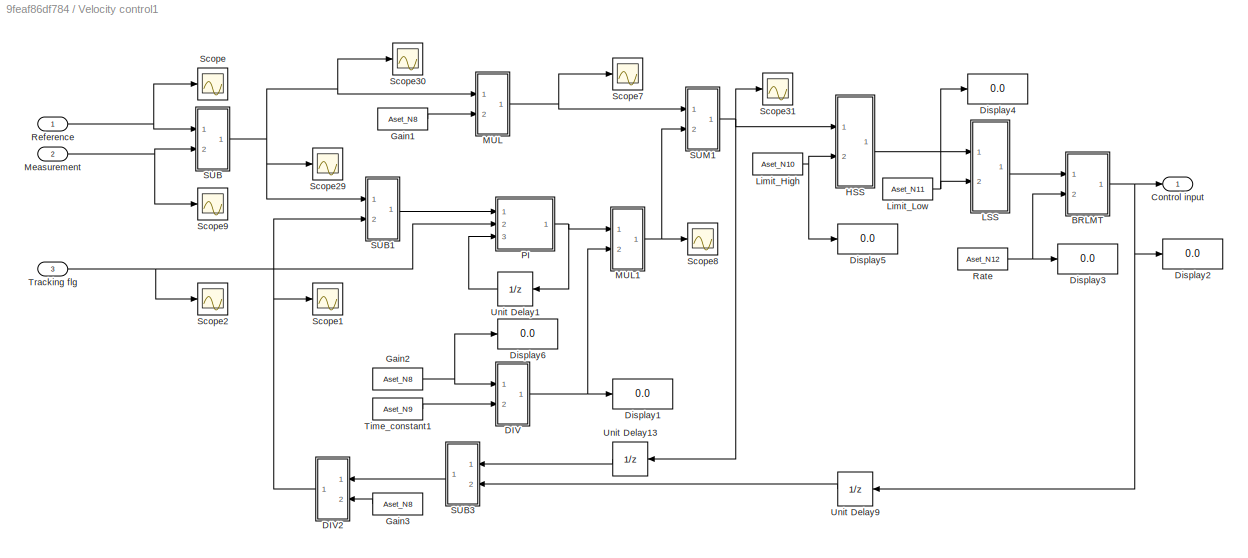
BLOCK [SubSystem] Velocity control1
  Ports = [3, 1]
  RequestExecContextInheritance = off
BLOCK [SubSystem] Velocity control1/BRLMT
  Ports = [2, 1]
  RequestExecContextInheritance = off
BLOCK [SubSystem] Velocity control1/BRLMT/BRLMT
  ErrorFcn = Stateflow.Translate.translate
  PermitHierarchicalResolution = ExplicitOnly
  Ports = [2, 1]
  RequestExecContextInheritance = off
  SFBlockType = MATLAB Function
  TreatAsAtomicUnit = on
BLOCK [Demux] Velocity control1/BRLMT/BRLMT/ Demux 
  Outputs = 1
  Ports = [1, 1]
BLOCK [S-Function] Velocity control1/BRLMT/BRLMT/ SFunction 
  EnableBusSupport = off
  FunctionName = sf_sfun
  PortCounts = [2 2]
  Ports = [2, 2]
  SFcnIsStateOwnerBlock = off
  SFunctionDeploymentMode = off
  Tag = Stateflow S-Function 89
BLOCK [Terminator] Velocity control1/BRLMT/BRLMT/ Terminator 
BLOCK [Inport] Velocity control1/BRLMT/BRLMT/old
  IconDisplay = Port number
  Port = 2
BLOCK [Inport] Velocity control1/BRLMT/BRLMT/u
  IconDisplay = Port number
BLOCK [Outport] Velocity control1/BRLMT/BRLMT/y
  IconDisplay = Port number
BLOCK [Display] Velocity control1/BRLMT/Display
  Decimation = 1
  Ports = [1]
BLOCK [Inport] Velocity control1/BRLMT/In1
  IconDisplay = Port number
BLOCK [Inport] Velocity control1/BRLMT/In2
  IconDisplay = Port number
  Port = 2
BLOCK [Memory] Velocity control1/BRLMT/Memory
  InheritSampleTime = on
  LinearizeAsDelay = on
  LinearizeMemory = on
BLOCK [Mux] Velocity control1/BRLMT/Mux1
  DisplayOption = bar
  Inputs = 3
  Ports = [3, 1]
BLOCK [Outport] Velocity control1/BRLMT/Out1
  IconDisplay = Port number
  VectorParamsAs1DForOutWhenUnconnected = off
BLOCK [Constant] Velocity control1/BRLMT/dt
  OutDataTypeStr = double
  SampleTime = Sample_time
  Value = Sample_time
BLOCK [Outport] Velocity control1/Control input
  IconDisplay = Port number
  VectorParamsAs1DForOutWhenUnconnected = off
BLOCK [SubSystem] Velocity control1/DIV
  Ports = [2, 1]
  RequestExecContextInheritance = off
BLOCK [SubSystem] Velocity control1/DIV/DIV
  ErrorFcn = Stateflow.Translate.translate
  PermitHierarchicalResolution = ExplicitOnly
  Ports = [1, 1]
  RequestExecContextInheritance = off
  SFBlockType = MATLAB Function
  TreatAsAtomicUnit = on
BLOCK [Demux] Velocity control1/DIV/DIV/ Demux 
  Outputs = 1
  Ports = [1, 1]
BLOCK [S-Function] Velocity control1/DIV/DIV/ SFunction 
  EnableBusSupport = off
  FunctionName = sf_sfun
  PortCounts = [1 2]
  Ports = [1, 2]
  SFcnIsStateOwnerBlock = off
  SFunctionDeploymentMode = off
  Tag = Stateflow S-Function 90
BLOCK [Terminator] Velocity control1/DIV/DIV/ Terminator 
BLOCK [Inport] Velocity control1/DIV/DIV/u
  IconDisplay = Port number
BLOCK [Outport] Velocity control1/DIV/DIV/y
  IconDisplay = Port number
BLOCK [Display] Velocity control1/DIV/Display
  Decimation = 1
  Ports = [1]
BLOCK [Display] Velocity control1/DIV/Display1
  Decimation = 1
  Ports = [1]
BLOCK [Constant] Velocity control1/DIV/FlowMax1
  OutDataTypeStr = double
  SampleTime = Sample_time
  Value = 3.402823e+38
BLOCK [Inport] Velocity control1/DIV/In1
  IconDisplay = Port number
BLOCK [Inport] Velocity control1/DIV/In2
  IconDisplay = Port number
  Port = 2
BLOCK [Mux] Velocity control1/DIV/Mux
  DisplayOption = bar
  Inputs = 3
  Ports = [3, 1]
BLOCK [Outport] Velocity control1/DIV/Out1
  IconDisplay = Port number
  VectorParamsAs1DForOutWhenUnconnected = off
BLOCK [SubSystem] Velocity control1/DIV2
  Ports = [2, 1]
  RequestExecContextInheritance = off
BLOCK [SubSystem] Velocity control1/DIV2/DIV
  ErrorFcn = Stateflow.Translate.translate
  PermitHierarchicalResolution = ExplicitOnly
  Ports = [1, 1]
  RequestExecContextInheritance = off
  SFBlockType = MATLAB Function
  TreatAsAtomicUnit = on
BLOCK [Demux] Velocity control1/DIV2/DIV/ Demux 
  Outputs = 1
  Ports = [1, 1]
BLOCK [S-Function] Velocity control1/DIV2/DIV/ SFunction 
  EnableBusSupport = off
  FunctionName = sf_sfun
  PortCounts = [1 2]
  Ports = [1, 2]
  SFcnIsStateOwnerBlock = off
  SFunctionDeploymentMode = off
  Tag = Stateflow S-Function 91
BLOCK [Terminator] Velocity control1/DIV2/DIV/ Terminator 
BLOCK [Inport] Velocity control1/DIV2/DIV/u
  IconDisplay = Port number
BLOCK [Outport] Velocity control1/DIV2/DIV/y
  IconDisplay = Port number
BLOCK [Display] Velocity control1/DIV2/Display
  Decimation = 1
  Ports = [1]
BLOCK [Display] Velocity control1/DIV2/Display1
  Decimation = 1
  Ports = [1]
BLOCK [Constant] Velocity control1/DIV2/FlowMax1
  OutDataTypeStr = double
  SampleTime = Sample_time
  Value = 3.402823e+38
BLOCK [Inport] Velocity control1/DIV2/In1
  IconDisplay = Port number
BLOCK [Inport] Velocity control1/DIV2/In2
  IconDisplay = Port number
  Port = 2
BLOCK [Mux] Velocity control1/DIV2/Mux
  DisplayOption = bar
  Inputs = 3
  Ports = [3, 1]
BLOCK [Outport] Velocity control1/DIV2/Out1
  IconDisplay = Port number
  VectorParamsAs1DForOutWhenUnconnected = off
BLOCK [Display] Velocity control1/Display1
  Decimation = 1
  Ports = [1]
BLOCK [Display] Velocity control1/Display2
  Decimation = 1
  Ports = [1]
BLOCK [Display] Velocity control1/Display3
  Decimation = 1
  Ports = [1]
BLOCK [Display] Velocity control1/Display4
  Decimation = 1
  Ports = [1]
BLOCK [Display] Velocity control1/Display5
  Decimation = 1
  Ports = [1]
BLOCK [Display] Velocity control1/Display6
  Decimation = 1
  Ports = [1]
BLOCK [Constant] Velocity control1/Gain1
  OutDataTypeStr = double
  SampleTime = Sample_time
  Value = Aset_N8
BLOCK [Constant] Velocity control1/Gain2
  OutDataTypeStr = double
  SampleTime = Sample_time
  Value = Aset_N8
BLOCK [Constant] Velocity control1/Gain3
  OutDataTypeStr = double
  SampleTime = Sample_time
  Value = Aset_N8
BLOCK [SubSystem] Velocity control1/HSS
  Ports = [2, 1]
  RequestExecContextInheritance = off
BLOCK [SubSystem] Velocity control1/HSS/HSS
  ErrorFcn = Stateflow.Translate.translate
  PermitHierarchicalResolution = ExplicitOnly
  Ports = [1, 1]
  RequestExecContextInheritance = off
  SFBlockType = MATLAB Function
  TreatAsAtomicUnit = on
BLOCK [Demux] Velocity control1/HSS/HSS/ Demux 
  Outputs = 1
  Ports = [1, 1]
BLOCK [S-Function] Velocity control1/HSS/HSS/ SFunction 
  EnableBusSupport = off
  FunctionName = sf_sfun
  PortCounts = [1 2]
  Ports = [1, 2]
  SFcnIsStateOwnerBlock = off
  SFunctionDeploymentMode = off
  Tag = Stateflow S-Function 92
BLOCK [Terminator] Velocity control1/HSS/HSS/ Terminator 
BLOCK [Inport] Velocity control1/HSS/HSS/u
  IconDisplay = Port number
BLOCK [Outport] Velocity control1/HSS/HSS/y
  IconDisplay = Port number
BLOCK [Inport] Velocity control1/HSS/In1
  IconDisplay = Port number
BLOCK [Inport] Velocity control1/HSS/In2
  IconDisplay = Port number
  Port = 2
BLOCK [Mux] Velocity control1/HSS/Mux
  DisplayOption = bar
  Inputs = 2
  Ports = [2, 1]
BLOCK [Outport] Velocity control1/HSS/Out1
  IconDisplay = Port number
  VectorParamsAs1DForOutWhenUnconnected = off
BLOCK [SubSystem] Velocity control1/LSS
  Ports = [2, 1]
  RequestExecContextInheritance = off
BLOCK [Inport] Velocity control1/LSS/In1
  IconDisplay = Port number
BLOCK [Inport] Velocity control1/LSS/In2
  IconDisplay = Port number
  Port = 2
BLOCK [SubSystem] Velocity control1/LSS/LSS
  ErrorFcn = Stateflow.Translate.translate
  PermitHierarchicalResolution = ExplicitOnly
  Ports = [1, 1]
  RequestExecContextInheritance = off
  SFBlockType = MATLAB Function
  TreatAsAtomicUnit = on
BLOCK [Demux] Velocity control1/LSS/LSS/ Demux 
  Outputs = 1
  Ports = [1, 1]
BLOCK [S-Function] Velocity control1/LSS/LSS/ SFunction 
  EnableBusSupport = off
  FunctionName = sf_sfun
  PortCounts = [1 2]
  Ports = [1, 2]
  SFcnIsStateOwnerBlock = off
  SFunctionDeploymentMode = off
  Tag = Stateflow S-Function 93
BLOCK [Terminator] Velocity control1/LSS/LSS/ Terminator 
BLOCK [Inport] Velocity control1/LSS/LSS/u
  IconDisplay = Port number
BLOCK [Outport] Velocity control1/LSS/LSS/y
  IconDisplay = Port number
BLOCK [Mux] Velocity control1/LSS/Mux
  DisplayOption = bar
  Inputs = 2
  Ports = [2, 1]
BLOCK [Outport] Velocity control1/LSS/Out1
  IconDisplay = Port number
  VectorParamsAs1DForOutWhenUnconnected = off
BLOCK [Constant] Velocity control1/Limit_High
  OutDataTypeStr = double
  SampleTime = Sample_time
  Value = Aset_N10
BLOCK [Constant] Velocity control1/Limit_Low
  OutDataTypeStr = double
  SampleTime = Sample_time
  Value = Aset_N11
BLOCK [SubSystem] Velocity control1/MUL
  Ports = [2, 1]
  RequestExecContextInheritance = off
BLOCK [Inport] Velocity control1/MUL/In1
  IconDisplay = Port number
BLOCK [Inport] Velocity control1/MUL/In2
  IconDisplay = Port number
  Port = 2
BLOCK [SubSystem] Velocity control1/MUL/MUL
  ErrorFcn = Stateflow.Translate.translate
  PermitHierarchicalResolution = ExplicitOnly
  Ports = [1, 1]
  RequestExecContextInheritance = off
  SFBlockType = MATLAB Function
  TreatAsAtomicUnit = on
BLOCK [Demux] Velocity control1/MUL/MUL/ Demux 
  Outputs = 1
  Ports = [1, 1]
BLOCK [S-Function] Velocity control1/MUL/MUL/ SFunction 
  EnableBusSupport = off
  FunctionName = sf_sfun
  PortCounts = [1 2]
  Ports = [1, 2]
  SFcnIsStateOwnerBlock = off
  SFunctionDeploymentMode = off
  Tag = Stateflow S-Function 94
BLOCK [Terminator] Velocity control1/MUL/MUL/ Terminator 
BLOCK [Inport] Velocity control1/MUL/MUL/u
  IconDisplay = Port number
BLOCK [Outport] Velocity control1/MUL/MUL/y
  IconDisplay = Port number
BLOCK [Mux] Velocity control1/MUL/Mux
  DisplayOption = bar
  Inputs = 2
  Ports = [2, 1]
BLOCK [Outport] Velocity control1/MUL/Out
  IconDisplay = Port number
  VectorParamsAs1DForOutWhenUnconnected = off
BLOCK [SubSystem] Velocity control1/MUL1
  Ports = [2, 1]
  RequestExecContextInheritance = off
BLOCK [Inport] Velocity control1/MUL1/In1
  IconDisplay = Port number
BLOCK [Inport] Velocity control1/MUL1/In2
  IconDisplay = Port number
  Port = 2
BLOCK [SubSystem] Velocity control1/MUL1/MUL
  ErrorFcn = Stateflow.Translate.translate
  PermitHierarchicalResolution = ExplicitOnly
  Ports = [1, 1]
  RequestExecContextInheritance = off
  SFBlockType = MATLAB Function
  TreatAsAtomicUnit = on
BLOCK [Demux] Velocity control1/MUL1/MUL/ Demux 
  Outputs = 1
  Ports = [1, 1]
BLOCK [S-Function] Velocity control1/MUL1/MUL/ SFunction 
  EnableBusSupport = off
  FunctionName = sf_sfun
  PortCounts = [1 2]
  Ports = [1, 2]
  SFcnIsStateOwnerBlock = off
  SFunctionDeploymentMode = off
  Tag = Stateflow S-Function 95
BLOCK [Terminator] Velocity control1/MUL1/MUL/ Terminator 
BLOCK [Inport] Velocity control1/MUL1/MUL/u
  IconDisplay = Port number
BLOCK [Outport] Velocity control1/MUL1/MUL/y
  IconDisplay = Port number
BLOCK [Mux] Velocity control1/MUL1/Mux
  DisplayOption = bar
  Inputs = 2
  Ports = [2, 1]
BLOCK [Outport] Velocity control1/MUL1/Out
  IconDisplay = Port number
  VectorParamsAs1DForOutWhenUnconnected = off
BLOCK [Inport] Velocity control1/Measurement
  IconDisplay = Port number
  Port = 2
BLOCK [SubSystem] Velocity control1/PI
  Ports = [3, 1]
  RequestExecContextInheritance = off
BLOCK [DataTypeConversion] Velocity control1/PI/Cast To Double
  OutDataTypeStr = double
  RndMeth = Floor
  SaturateOnIntegerOverflow = off
BLOCK [Inport] Velocity control1/PI/In
  IconDisplay = Port number
BLOCK [Memory] Velocity control1/PI/Memory
  InheritSampleTime = on
BLOCK [Mux] Velocity control1/PI/Mux
  DisplayOption = bar
  Ports = [4, 1]
BLOCK [Outport] Velocity control1/PI/Out1
  IconDisplay = Port number
  VectorParamsAs1DForOutWhenUnconnected = off
BLOCK [SubSystem] Velocity control1/PI/PI
  ErrorFcn = Stateflow.Translate.translate
  PermitHierarchicalResolution = ExplicitOnly
  Ports = [2, 1]
  RequestExecContextInheritance = off
  SFBlockType = MATLAB Function
  TreatAsAtomicUnit = on
BLOCK [Demux] Velocity control1/PI/PI/ Demux 
  Outputs = 1
  Ports = [1, 1]
BLOCK [S-Function] Velocity control1/PI/PI/ SFunction 
  EnableBusSupport = off
  FunctionName = sf_sfun
  PortCounts = [2 2]
  Ports = [2, 2]
  SFcnIsStateOwnerBlock = off
  SFunctionDeploymentMode = off
  Tag = Stateflow S-Function 96
BLOCK [Terminator] Velocity control1/PI/PI/ Terminator 
BLOCK [Inport] Velocity control1/PI/PI/old
  IconDisplay = Port number
  Port = 2
BLOCK [Inport] Velocity control1/PI/PI/u
  IconDisplay = Port number
BLOCK [Outport] Velocity control1/PI/PI/y
  IconDisplay = Port number
BLOCK [Inport] Velocity control1/PI/R_v
  IconDisplay = Port number
  Port = 3
BLOCK [Inport] Velocity control1/PI/Reset
  IconDisplay = Port number
  Port = 2
BLOCK [Constant] Velocity control1/PI/dt
  OutDataTypeStr = double
  SampleTime = Sample_time
  Value = Sample_time
BLOCK [Constant] Velocity control1/Rate
  OutDataTypeStr = double
  SampleTime = Sample_time
  Value = Aset_N12
BLOCK [Inport] Velocity control1/Reference
  IconDisplay = Port number
BLOCK [SubSystem] Velocity control1/SUB
  Ports = [2, 1]
  RequestExecContextInheritance = off
BLOCK [Inport] Velocity control1/SUB/In1
  IconDisplay = Port number
BLOCK [Inport] Velocity control1/SUB/In2
  IconDisplay = Port number
  Port = 2
BLOCK [Mux] Velocity control1/SUB/Mux
  DisplayOption = bar
  Inputs = 2
  Ports = [2, 1]
BLOCK [Outport] Velocity control1/SUB/Out
  IconDisplay = Port number
  VectorParamsAs1DForOutWhenUnconnected = off
BLOCK [SubSystem] Velocity control1/SUB/SUB
  ErrorFcn = Stateflow.Translate.translate
  PermitHierarchicalResolution = ExplicitOnly
  Ports = [1, 1]
  RequestExecContextInheritance = off
  SFBlockType = MATLAB Function
  TreatAsAtomicUnit = on
BLOCK [Demux] Velocity control1/SUB/SUB/ Demux 
  Outputs = 1
  Ports = [1, 1]
BLOCK [S-Function] Velocity control1/SUB/SUB/ SFunction 
  EnableBusSupport = off
  FunctionName = sf_sfun
  PortCounts = [1 2]
  Ports = [1, 2]
  SFcnIsStateOwnerBlock = off
  SFunctionDeploymentMode = off
  Tag = Stateflow S-Function 97
BLOCK [Terminator] Velocity control1/SUB/SUB/ Terminator 
BLOCK [Inport] Velocity control1/SUB/SUB/u
  IconDisplay = Port number
BLOCK [Outport] Velocity control1/SUB/SUB/y
  IconDisplay = Port number
BLOCK [SubSystem] Velocity control1/SUB1
  Ports = [2, 1]
  RequestExecContextInheritance = off
BLOCK [Inport] Velocity control1/SUB1/In1
  IconDisplay = Port number
BLOCK [Inport] Velocity control1/SUB1/In2
  IconDisplay = Port number
  Port = 2
BLOCK [Mux] Velocity control1/SUB1/Mux
  DisplayOption = bar
  Inputs = 2
  Ports = [2, 1]
BLOCK [Outport] Velocity control1/SUB1/Out
  IconDisplay = Port number
  VectorParamsAs1DForOutWhenUnconnected = off
BLOCK [SubSystem] Velocity control1/SUB1/SUB
  ErrorFcn = Stateflow.Translate.translate
  PermitHierarchicalResolution = ExplicitOnly
  Ports = [1, 1]
  RequestExecContextInheritance = off
  SFBlockType = MATLAB Function
  TreatAsAtomicUnit = on
BLOCK [Demux] Velocity control1/SUB1/SUB/ Demux 
  Outputs = 1
  Ports = [1, 1]
BLOCK [S-Function] Velocity control1/SUB1/SUB/ SFunction 
  EnableBusSupport = off
  FunctionName = sf_sfun
  PortCounts = [1 2]
  Ports = [1, 2]
  SFcnIsStateOwnerBlock = off
  SFunctionDeploymentMode = off
  Tag = Stateflow S-Function 98
BLOCK [Terminator] Velocity control1/SUB1/SUB/ Terminator 
BLOCK [Inport] Velocity control1/SUB1/SUB/u
  IconDisplay = Port number
BLOCK [Outport] Velocity control1/SUB1/SUB/y
  IconDisplay = Port number
BLOCK [SubSystem] Velocity control1/SUB3
  Ports = [2, 1]
  RequestExecContextInheritance = off
BLOCK [Inport] Velocity control1/SUB3/In1
  IconDisplay = Port number
BLOCK [Inport] Velocity control1/SUB3/In2
  IconDisplay = Port number
  Port = 2
BLOCK [Mux] Velocity control1/SUB3/Mux
  DisplayOption = bar
  Inputs = 2
  Ports = [2, 1]
BLOCK [Outport] Velocity control1/SUB3/Out
  IconDisplay = Port number
  VectorParamsAs1DForOutWhenUnconnected = off
BLOCK [SubSystem] Velocity control1/SUB3/SUB
  ErrorFcn = Stateflow.Translate.translate
  PermitHierarchicalResolution = ExplicitOnly
  Ports = [1, 1]
  RequestExecContextInheritance = off
  SFBlockType = MATLAB Function
  TreatAsAtomicUnit = on
BLOCK [Demux] Velocity control1/SUB3/SUB/ Demux 
  Outputs = 1
  Ports = [1, 1]
BLOCK [S-Function] Velocity control1/SUB3/SUB/ SFunction 
  EnableBusSupport = off
  FunctionName = sf_sfun
  PortCounts = [1 2]
  Ports = [1, 2]
  SFcnIsStateOwnerBlock = off
  SFunctionDeploymentMode = off
  Tag = Stateflow S-Function 99
BLOCK [Terminator] Velocity control1/SUB3/SUB/ Terminator 
BLOCK [Inport] Velocity control1/SUB3/SUB/u
  IconDisplay = Port number
BLOCK [Outport] Velocity control1/SUB3/SUB/y
  IconDisplay = Port number
BLOCK [SubSystem] Velocity control1/SUM1
  Ports = [2, 1]
  RequestExecContextInheritance = off
BLOCK [Inport] Velocity control1/SUM1/In1
  IconDisplay = Port number
BLOCK [Inport] Velocity control1/SUM1/In2
  IconDisplay = Port number
  Port = 2
BLOCK [Mux] Velocity control1/SUM1/Mux
  DisplayOption = bar
  Inputs = 2
  Ports = [2, 1]
BLOCK [Outport] Velocity control1/SUM1/Out
  IconDisplay = Port number
  VectorParamsAs1DForOutWhenUnconnected = off
BLOCK [SubSystem] Velocity control1/SUM1/SUM
  ErrorFcn = Stateflow.Translate.translate
  PermitHierarchicalResolution = ExplicitOnly
  Ports = [1, 1]
  RequestExecContextInheritance = off
  SFBlockType = MATLAB Function
  TreatAsAtomicUnit = on
BLOCK [Demux] Velocity control1/SUM1/SUM/ Demux 
  Outputs = 1
  Ports = [1, 1]
BLOCK [S-Function] Velocity control1/SUM1/SUM/ SFunction 
  EnableBusSupport = off
  FunctionName = sf_sfun
  PortCounts = [1 2]
  Ports = [1, 2]
  SFcnIsStateOwnerBlock = off
  SFunctionDeploymentMode = off
  Tag = Stateflow S-Function 100
BLOCK [Terminator] Velocity control1/SUM1/SUM/ Terminator 
BLOCK [Inport] Velocity control1/SUM1/SUM/u
  IconDisplay = Port number
BLOCK [Outport] Velocity control1/SUM1/SUM/y
  IconDisplay = Port number
BLOCK [Scope] Velocity control1/Scope
  Floating = off
  NumInputPorts = 1
  Ports = [1]
  ScopeSpecificationString = Simulink.scopes.TimeScopeBlockCfg('CurrentConfiguration', extmgr.ConfigurationSet(extmgr.Configuration('Core','General UI',true),extmgr.Configuration('Core','Source UI',true),extmgr.Configuration('Sources','WiredSimulink',true,'DataLoggingVariableName','ScopeData1'),extmgr.Configuration('Visuals','Time Domain',true,'SerializedDisplays',{struct('MinYLimReal','-0.125','MaxYLimReal','1.125','YLabelRe...<+1391ch>
BLOCK [Scope] Velocity control1/Scope1
  Floating = off
  NumInputPorts = 1
  Ports = [1]
  ScopeSpecificationString = Simulink.scopes.TimeScopeBlockCfg('CurrentConfiguration', extmgr.ConfigurationSet(extmgr.Configuration('Core','General UI',true),extmgr.Configuration('Core','Source UI',true),extmgr.Configuration('Sources','WiredSimulink',true,'DataLoggingVariableName','ScopeData19'),extmgr.Configuration('Visuals','Time Domain',true,'SerializedDisplays',{struct('MinYLimReal','-5937656447120036675915994526215055332...<+2425ch>
BLOCK [Scope] Velocity control1/Scope2
  Floating = off
  NumInputPorts = 1
  Ports = [1]
  ScopeSpecificationString = Simulink.scopes.TimeScopeBlockCfg('CurrentConfiguration', extmgr.ConfigurationSet(extmgr.Configuration('Core','General UI',true),extmgr.Configuration('Core','Source UI',true),extmgr.Configuration('Sources','WiredSimulink',true,'DataLoggingVariableName','ScopeData2'),extmgr.Configuration('Visuals','Time Domain',true,'SerializedDisplays',{struct('MinYLimReal','-0.04563','MaxYLimReal','1.12061','YLab...<+1432ch>
BLOCK [Scope] Velocity control1/Scope29
  Floating = off
  NumInputPorts = 1
  Ports = [1]
  ScopeSpecificationString = Simulink.scopes.TimeScopeBlockCfg('CurrentConfiguration', extmgr.ConfigurationSet(extmgr.Configuration('Core','General UI',true),extmgr.Configuration('Core','Source UI',true),extmgr.Configuration('Sources','WiredSimulink',true,'DataLoggingVariableName','ScopeData32'),extmgr.Configuration('Visuals','Time Domain',true,'SerializedDisplays',{struct('MinYLimReal','-0.98805','MaxYLimReal','-0.80781','YL...<+1438ch>
BLOCK [Scope] Velocity control1/Scope30
  Floating = off
  NumInputPorts = 1
  Ports = [1]
  ScopeSpecificationString = Simulink.scopes.TimeScopeBlockCfg('CurrentConfiguration', extmgr.ConfigurationSet(extmgr.Configuration('Core','General UI',true),extmgr.Configuration('Core','Source UI',true),extmgr.Configuration('Sources','WiredSimulink',true,'DataLoggingVariableName','ScopeData33'),extmgr.Configuration('Visuals','Time Domain',true,'SerializedDisplays',{struct('MinYLimReal','-1.25','MaxYLimReal','1.25','YLabelRea...<+1415ch>
BLOCK [Scope] Velocity control1/Scope31
  Floating = off
  NumInputPorts = 1
  Ports = [1]
  ScopeSpecificationString = Simulink.scopes.TimeScopeBlockCfg('CurrentConfiguration', extmgr.ConfigurationSet(extmgr.Configuration('Core','General UI',true),extmgr.Configuration('Core','Source UI',true),extmgr.Configuration('Sources','WiredSimulink',true,'DataLoggingVariableName','ScopeData34'),extmgr.Configuration('Visuals','Time Domain',true,'SerializedDisplays',{struct('MinYLimReal','-2375062578848014670366397810486022132...<+2432ch>
BLOCK [Scope] Velocity control1/Scope7
  Floating = off
  NumInputPorts = 1
  Ports = [1]
  ScopeSpecificationString = Simulink.scopes.TimeScopeBlockCfg('CurrentConfiguration', extmgr.ConfigurationSet(extmgr.Configuration('Core','General UI',true),extmgr.Configuration('Core','Source UI',true),extmgr.Configuration('Sources','WiredSimulink',true,'DataLoggingVariableName','ScopeData7'),extmgr.Configuration('Visuals','Time Domain',true,'SerializedDisplays',{struct('MinYLimReal','-0.5','MaxYLimReal','4.5','YLabelReal',...<+1411ch>
BLOCK [Scope] Velocity control1/Scope8
  Floating = off
  NumInputPorts = 1
  Ports = [1]
  ScopeSpecificationString = Simulink.scopes.TimeScopeBlockCfg('CurrentConfiguration', extmgr.ConfigurationSet(extmgr.Configuration('Core','General UI',true),extmgr.Configuration('Core','Source UI',true),extmgr.Configuration('Sources','WiredSimulink',true,'DataLoggingVariableName','ScopeData8'),extmgr.Configuration('Visuals','Time Domain',true,'SerializedDisplays',{struct('MinYLimReal','-26389584209422380529208143457733790142...<+2430ch>
BLOCK [Scope] Velocity control1/Scope9
  Floating = off
  NumInputPorts = 1
  Ports = [1]
  ScopeSpecificationString = Simulink.scopes.TimeScopeBlockCfg('CurrentConfiguration', extmgr.ConfigurationSet(extmgr.Configuration('Core','General UI',true),extmgr.Configuration('Core','Source UI',true),extmgr.Configuration('Sources','WiredSimulink',true,'DataLoggingVariableName','ScopeData9'),extmgr.Configuration('Visuals','Time Domain',true,'SerializedDisplays',{struct('MinYLimReal','-0.125','MaxYLimReal','1.125','YLabelRe...<+1420ch>
BLOCK [Constant] Velocity control1/Time_constant1
  OutDataTypeStr = double
  SampleTime = Sample_time
  Value = Aset_N9
BLOCK [Inport] Velocity control1/Tracking flg
  IconDisplay = Port number
  Port = 3
BLOCK [UnitDelay] Velocity control1/Unit Delay1
  HasFrameUpgradeWarning = on
  SampleTime = Sample_time
BLOCK [UnitDelay] Velocity control1/Unit Delay13
  HasFrameUpgradeWarning = on
  SampleTime = Sample_time
BLOCK [UnitDelay] Velocity control1/Unit Delay9
  HasFrameUpgradeWarning = on
  SampleTime = Sample_time
BLOCK [Inport] Velocity_sensor[m//s]
  IconDisplay = Port number
  OutDataTypeStr = double
  Port = 2
  PortDimensions = 1
  SampleTime = Sample_time
  Unit = mm
BLOCK [Constant] control type
  OutDataTypeStr = boolean
  SampleTime = Sample_time
  Value = Dset_N2
BLOCK [ToWorkspace] velocity_reference[m]
  FixptAsFi = on
  MaxDataPoints = inf
  Ports = [1]
  SampleTime = Sample_time
  VariableName = Aout_N4
BLOCK [Outport] velocity_reference_out
  IconDisplay = Port number
  Port = 4
  SampleTime = Sample_time
  VectorParamsAs1DForOutWhenUnconnected = off
ANNOTATION OFDLC1: y_old
ANNOTATION OFDLC2: y_old
ANNOTATION ONDLC: y_old
ANNOTATION ONDLC1: y_old
ANNOTATION ONDLC2: y_old
ANNOTATION ONDLC3: y_old
ANNOTATION ONDLC6: y_old
ANNOTATION ONDLC7: y_old
ANNOTATION OSHOTC: T_old
ANNOTATION OSHOTC1: T_old
ANNOTATION OSHOTC10: T_old
ANNOTATION OSHOTC11: T_old
ANNOTATION OSHOTC12: T_old
ANNOTATION OSHOTC13: T_old
ANNOTATION OSHOTC14: T_old
ANNOTATION OSHOTC15: T_old
ANNOTATION OSHOTC2: T_old
ANNOTATION OSHOTC3: T_old
ANNOTATION OSHOTC4: T_old
ANNOTATION OSHOTC5: T_old
ANNOTATION OSHOTC6: T_old
ANNOTATION OSHOTC7: T_old
ANNOTATION OSHOTC8: T_old
ANNOTATION OSHOTC9: T_old
LINE ABS/ABS:1 -> ABS/Out1:1
LINE ABS/In1:1 -> ABS/ABS:1
NET ABS:1 -> HLM:1, Scope17:1
LINE AND/AND:1 -> AND/Cast To Boolean:1
LINE AND/Cast To Boolean:1 -> AND/Out1:1
LINE AND/Cast To Double1:1 -> AND/Mux:2
LINE AND/Cast To Double:1 -> AND/Mux:1
LINE AND/In1:1 -> AND/Cast To Double:1
LINE AND/In2:1 -> AND/Cast To Double1:1
LINE AND/Mux:1 -> AND/AND:1
LINE AND1/AND:1 -> AND1/Cast To Boolean:1
LINE AND1/Cast To Boolean:1 -> AND1/Out1:1
LINE AND1/Cast To Double1:1 -> AND1/Mux:2
LINE AND1/Cast To Double:1 -> AND1/Mux:1
LINE AND1/In1:1 -> AND1/Cast To Double:1
LINE AND1/In2:1 -> AND1/Cast To Double1:1
LINE AND1/Mux:1 -> AND1/AND:1
LINE AND10/AND:1 -> AND10/Cast To Boolean:1
LINE AND10/Cast To Boolean:1 -> AND10/Out1:1
LINE AND10/Cast To Double1:1 -> AND10/Mux:2
LINE AND10/Cast To Double:1 -> AND10/Mux:1
LINE AND10/In1:1 -> AND10/Cast To Double:1
LINE AND10/In2:1 -> AND10/Cast To Double1:1
LINE AND10/Mux:1 -> AND10/AND:1
NET AND10:1 -> AND11:2, Scope39:1
LINE AND11/AND:1 -> AND11/Cast To Boolean:1
LINE AND11/Cast To Boolean:1 -> AND11/Out1:1
LINE AND11/Cast To Double1:1 -> AND11/Mux:2
LINE AND11/Cast To Double:1 -> AND11/Mux:1
LINE AND11/In1:1 -> AND11/Cast To Double:1
LINE AND11/In2:1 -> AND11/Cast To Double1:1
LINE AND11/Mux:1 -> AND11/AND:1
LINE AND11:1 -> FF3:1
LINE AND13/AND:1 -> AND13/Cast To Boolean:1
LINE AND13/Cast To Boolean:1 -> AND13/Out1:1
LINE AND13/Cast To Double1:1 -> AND13/Mux:2
LINE AND13/Cast To Double2:1 -> AND13/Mux:3
LINE AND13/Cast To Double:1 -> AND13/Mux:1
LINE AND13/In1:1 -> AND13/Cast To Double:1
LINE AND13/In2:1 -> AND13/Cast To Double1:1
LINE AND13/In3:1 -> AND13/Cast To Double2:1
LINE AND13/Mux:1 -> AND13/AND:1
LINE AND13:1 -> ONDLC6:1
LINE AND14/AND:1 -> AND14/Cast To Boolean:1
LINE AND14/Cast To Boolean:1 -> AND14/Out1:1
LINE AND14/Cast To Double1:1 -> AND14/Mux:2
LINE AND14/Cast To Double:1 -> AND14/Mux:1
LINE AND14/In1:1 -> AND14/Cast To Double:1
LINE AND14/In2:1 -> AND14/Cast To Double1:1
LINE AND14/Mux:1 -> AND14/AND:1
LINE AND14:1 -> OFDLC1:1
LINE AND15/AND:1 -> AND15/Cast To Boolean:1
LINE AND15/Cast To Boolean:1 -> AND15/Out1:1
LINE AND15/Cast To Double1:1 -> AND15/Mux:2
LINE AND15/Cast To Double:1 -> AND15/Mux:1
LINE AND15/In1:1 -> AND15/Cast To Double:1
LINE AND15/In2:1 -> AND15/Cast To Double1:1
LINE AND15/Mux:1 -> AND15/AND:1
NET AND15:1 -> OSHOTC15:1, Scope10:1
LINE AND1:1 -> FF2:1
LINE AND2/AND:1 -> AND2/Cast To Boolean:1
LINE AND2/Cast To Boolean:1 -> AND2/Out1:1
LINE AND2/Cast To Double1:1 -> AND2/Mux:2
LINE AND2/Cast To Double:1 -> AND2/Mux:1
LINE AND2/In1:1 -> AND2/Cast To Double:1
LINE AND2/In2:1 -> AND2/Cast To Double1:1
LINE AND2/Mux:1 -> AND2/AND:1
LINE AND2:1 -> ONDLC:1
LINE AND3/AND:1 -> AND3/Cast To Boolean:1
LINE AND3/Cast To Boolean:1 -> AND3/Out1:1
LINE AND3/Cast To Double1:1 -> AND3/Mux:2
LINE AND3/Cast To Double:1 -> AND3/Mux:1
LINE AND3/In1:1 -> AND3/Cast To Double:1
LINE AND3/In2:1 -> AND3/Cast To Double1:1
LINE AND3/Mux:1 -> AND3/AND:1
LINE AND3:1 -> OR6:2
LINE AND4/AND:1 -> AND4/Cast To Boolean:1
LINE AND4/Cast To Boolean:1 -> AND4/Out1:1
LINE AND4/Cast To Double1:1 -> AND4/Mux:2
LINE AND4/Cast To Double:1 -> AND4/Mux:1
LINE AND4/In1:1 -> AND4/Cast To Double:1
LINE AND4/In2:1 -> AND4/Cast To Double1:1
LINE AND4/Mux:1 -> AND4/AND:1
LINE AND4:1 -> Unit Delay8:1
LINE AND5/AND:1 -> AND5/Cast To Boolean:1
LINE AND5/Cast To Boolean:1 -> AND5/Out1:1
LINE AND5/Cast To Double1:1 -> AND5/Mux:2
LINE AND5/Cast To Double2:1 -> AND5/Mux:3
LINE AND5/Cast To Double:1 -> AND5/Mux:1
LINE AND5/In1:1 -> AND5/Cast To Double:1
LINE AND5/In2:1 -> AND5/Cast To Double1:1
LINE AND5/In3:1 -> AND5/Cast To Double2:1
LINE AND5/Mux:1 -> AND5/AND:1
LINE AND5:1 -> ONDLC3:1
LINE AND6/AND:1 -> AND6/Cast To Boolean:1
LINE AND6/Cast To Boolean:1 -> AND6/Out1:1
LINE AND6/Cast To Double1:1 -> AND6/Mux:2
LINE AND6/Cast To Double:1 -> AND6/Mux:1
LINE AND6/In1:1 -> AND6/Cast To Double:1
LINE AND6/In2:1 -> AND6/Cast To Double1:1
LINE AND6/Mux:1 -> AND6/AND:1
LINE AND6:1 -> OR1:2
LINE AND7/AND:1 -> AND7/Cast To Boolean:1
LINE AND7/Cast To Boolean:1 -> AND7/Out1:1
LINE AND7/Cast To Double1:1 -> AND7/Mux:2
LINE AND7/Cast To Double:1 -> AND7/Mux:1
LINE AND7/In1:1 -> AND7/Cast To Double:1
LINE AND7/In2:1 -> AND7/Cast To Double1:1
LINE AND7/Mux:1 -> AND7/AND:1
LINE AND7:1 -> FF4:1
LINE AND8/AND:1 -> AND8/Cast To Boolean:1
LINE AND8/Cast To Boolean:1 -> AND8/Out1:1
LINE AND8/Cast To Double1:1 -> AND8/Mux:2
LINE AND8/Cast To Double:1 -> AND8/Mux:1
LINE AND8/In1:1 -> AND8/Cast To Double:1
LINE AND8/In2:1 -> AND8/Cast To Double1:1
LINE AND8/Mux:1 -> AND8/AND:1
LINE AND8:1 -> AND7:1
LINE AND9/AND:1 -> AND9/Cast To Boolean:1
LINE AND9/Cast To Boolean:1 -> AND9/Out1:1
LINE AND9/Cast To Double1:1 -> AND9/Mux:2
LINE AND9/Cast To Double:1 -> AND9/Mux:1
LINE AND9/In1:1 -> AND9/Cast To Double:1
LINE AND9/In2:1 -> AND9/Cast To Double1:1
LINE AND9/Mux:1 -> AND9/AND:1
LINE AND9:1 -> AND10:1
LINE AND:1 -> OFDLC2:1
LINE ANSW/Cast To Double:1 -> ANSW/Mux:1
LINE ANSW/InA:1 -> ANSW/Mux:2
LINE ANSW/InB:1 -> ANSW/Mux:3
LINE ANSW/MATLAB Function:1 -> ANSW/Out1:1
LINE ANSW/Mux:1 -> ANSW/MATLAB Function:1
LINE ANSW/SW:1 -> ANSW/Cast To Double:1
LINE ANSW1/Cast To Double:1 -> ANSW1/Mux:1
LINE ANSW1/InA:1 -> ANSW1/Mux:2
LINE ANSW1/InB:1 -> ANSW1/Mux:3
LINE ANSW1/MATLAB Function:1 -> ANSW1/Out1:1
LINE ANSW1/Mux:1 -> ANSW1/MATLAB Function:1
LINE ANSW1/SW:1 -> ANSW1/Cast To Double:1
LINE ANSW1:1 -> ANSW:3
LINE ANSW2/Cast To Double:1 -> ANSW2/Mux:1
LINE ANSW2/InA:1 -> ANSW2/Mux:2
LINE ANSW2/InB:1 -> ANSW2/Mux:3
LINE ANSW2/MATLAB Function:1 -> ANSW2/Out1:1
LINE ANSW2/Mux:1 -> ANSW2/MATLAB Function:1
LINE ANSW2/SW:1 -> ANSW2/Cast To Double:1
NET ANSW2:1 -> ANSW1:3, Scope4:1
LINE ANSW3/Cast To Double:1 -> ANSW3/Mux:1
LINE ANSW3/InA:1 -> ANSW3/Mux:2
LINE ANSW3/InB:1 -> ANSW3/Mux:3
LINE ANSW3/MATLAB Function:1 -> ANSW3/Out1:1
LINE ANSW3/Mux:1 -> ANSW3/MATLAB Function:1
LINE ANSW3/SW:1 -> ANSW3/Cast To Double:1
NET ANSW3:1 -> Control state - Analog:1, Rate Transition:1
LINE ANSW4/Cast To Double:1 -> ANSW4/Mux:1
LINE ANSW4/InA:1 -> ANSW4/Mux:2
LINE ANSW4/InB:1 -> ANSW4/Mux:3
LINE ANSW4/MATLAB Function:1 -> ANSW4/Out1:1
LINE ANSW4/Mux:1 -> ANSW4/MATLAB Function:1
LINE ANSW4/SW:1 -> ANSW4/Cast To Double:1
LINE ANSW4:1 -> ANSW3:3
LINE ANSW5/Cast To Double:1 -> ANSW5/Mux:1
LINE ANSW5/InA:1 -> ANSW5/Mux:2
LINE ANSW5/InB:1 -> ANSW5/Mux:3
LINE ANSW5/MATLAB Function:1 -> ANSW5/Out1:1
LINE ANSW5/Mux:1 -> ANSW5/MATLAB Function:1
LINE ANSW5/SW:1 -> ANSW5/Cast To Double:1
LINE ANSW5:1 -> ANSW4:3
LINE ANSW6/Cast To Double:1 -> ANSW6/Mux:1
LINE ANSW6/InA:1 -> ANSW6/Mux:2
LINE ANSW6/InB:1 -> ANSW6/Mux:3
LINE ANSW6/MATLAB Function:1 -> ANSW6/Out1:1
LINE ANSW6/Mux:1 -> ANSW6/MATLAB Function:1
LINE ANSW6/SW:1 -> ANSW6/Cast To Double:1
NET ANSW6:1 -> Goto11:1, Scope6:1
LINE ANSW:1 -> Unit Delay6:1
LINE COMP/COMP:1 -> COMP/Cast To Boolean:1
LINE COMP/Cast To Boolean:1 -> COMP/Out1:1
LINE COMP/In1:1 -> COMP/Mux:1
LINE COMP/In2:1 -> COMP/Mux:2
LINE COMP/Mux:1 -> COMP/COMP:1
NET COMP:1 -> ONDLC7:1, Scope30:1
LINE Constant:1 -> Goto16:1
LINE Door control permit:1 -> Goto14:1
LINE Door_open_level_pressure:1 -> COMP:2
LINE Door_open_timer_pressure:1 -> ONDLC7:2
LINE Emergency_reset_signal:1 -> FF:2
NET Emergency_signal:1 -> FF:1, Scope42:1
LINE FF/Cast To Boolean:1 -> FF/Out1:1
LINE FF/Cast To Double:1 -> FF/FF:1
NET FF/FF:1 -> FF/Cast To Boolean:1, FF/Memory:1
LINE FF/Memory:1 -> FF/FF:2
LINE FF/Mux:1 -> FF/Cast To Double:1
LINE FF/R:1 -> FF/Mux:2
LINE FF/SS:1 -> FF/Mux:1
LINE FF1/Cast To Boolean:1 -> FF1/Out1:1
LINE FF1/Cast To Double:1 -> FF1/FF:1
NET FF1/FF:1 -> FF1/Cast To Boolean:1, FF1/Memory:1
LINE FF1/Memory:1 -> FF1/FF:2
LINE FF1/Mux:1 -> FF1/Cast To Double:1
LINE FF1/R:1 -> FF1/Mux:2
LINE FF1/SS:1 -> FF1/Mux:1
LINE FF1:1 -> Goto15:1
LINE FF2/Cast To Boolean:1 -> FF2/Out1:1
LINE FF2/Cast To Double:1 -> FF2/FF:1
NET FF2/FF:1 -> FF2/Cast To Boolean:1, FF2/Memory:1
LINE FF2/Memory:1 -> FF2/FF:2
LINE FF2/Mux:1 -> FF2/Cast To Double:1
LINE FF2/R:1 -> FF2/Mux:2
LINE FF2/SS:1 -> FF2/Mux:1
LINE FF2:1 -> Goto:1
LINE FF3/Cast To Boolean:1 -> FF3/Out1:1
LINE FF3/Cast To Double:1 -> FF3/FF:1
NET FF3/FF:1 -> FF3/Cast To Boolean:1, FF3/Memory:1
LINE FF3/Memory:1 -> FF3/FF:2
LINE FF3/Mux:1 -> FF3/Cast To Double:1
LINE FF3/R:1 -> FF3/Mux:2
LINE FF3/SS:1 -> FF3/Mux:1
NET FF3:1 -> Goto1:1, Scope12:1
LINE FF4/Cast To Boolean:1 -> FF4/Out1:1
LINE FF4/Cast To Double:1 -> FF4/FF:1
NET FF4/FF:1 -> FF4/Cast To Boolean:1, FF4/Memory:1
LINE FF4/Memory:1 -> FF4/FF:2
LINE FF4/Mux:1 -> FF4/Cast To Double:1
LINE FF4/R:1 -> FF4/Mux:2
LINE FF4/SS:1 -> FF4/Mux:1
LINE FF4:1 -> Goto2:1
NET FF:1 -> Goto4:1, Scope29:1
LINE From10:1 -> OR6:3
NET From11:1 -> OR:2, Scope34:1
LINE From12:1 -> AND2:2
LINE From13:1 -> Terminator:1
LINE From14:1 -> AND3:1
LINE From15:1 -> AND3:2
LINE From16:1 -> OR7:1
LINE From17:1 -> AND6:1
LINE From18:1 -> OR1:1
LINE From19:1 -> ANSW4:1
LINE From1:1 -> Unit Delay10:1
LINE From20:1 -> ANSW5:1
LINE From21:1 -> ANSW3:1
LINE From22:1 -> SUB:1
LINE From23:1 -> ANSW1:1
NET From24:1 -> ANSW2:1, Display1:1, Display:1, Scope1:1
NET From25:1 -> Position control:1, Scope48:1
NET From26:1 -> Control state - Door closing:1, Rate Transition3:1
NET From27:1 -> Control state - Door opening:1, Rate Transition2:1
NET From28:1 -> Control state - Door waiting:1, Rate Transition1:1
NET From29:1 -> Position control:2, Scope51:1
LINE From2:1 -> Unit Delay1:1
NET From30:1 -> ANSW2:3, Display2:1, Scope8:1
NET From31:1 -> Position control:3, Velocity control1:3
NET From32:1 -> SUB:2, Scope22:1
NET From33:1 -> COMP:1, Scope31:1
LINE From34:1 -> AND13:3
NET From35:1 -> Mux1:1, Velocity control1:1
LINE From36:1 -> Unit Delay7:1
LINE From37:1 -> ONDLC2:1
LINE From38:1 -> AND5:3
NET From39:1 -> Mux1:2, Velocity control1:2
LINE From3:1 -> Unit Delay12:1
LINE From40:1 -> AND6:2
LINE From41:1 -> NOT7:1
LINE From42:1 -> Unit Delay16:1
LINE From43:1 -> NOT6:1
LINE From44:1 -> NOT4:1
LINE From45:1 -> Unit Delay15:1
LINE From46:1 -> Unit Delay3:1
LINE From47:1 -> AND11:1
LINE From48:1 -> AND7:2
LINE From49:1 -> AND1:2
LINE From4:1 -> Unit Delay11:1
NET From50:1 -> AND15:1, NOT2:1
LINE From51:1 -> Unit Delay5:1
LINE From52:1 -> Unit Delay9:1
LINE From53:1 -> Unit Delay13:1
LINE From54:1 -> Rate Transition6:1
NET From55:1 -> Control state - Control stop:1, Rate Transition7:1
LINE From56:1 -> OR4:2
LINE From57:1 -> OR4:3
LINE From58:1 -> OR4:1
LINE From59:1 -> ANSW:1
LINE From5:1 -> Unit Delay4:1
LINE From6:1 -> AND2:1
NET From7:1 -> Position_reference[m]:1, Rate Transition4:1
NET From8:1 -> Rate Transition5:1, velocity_reference[m]:1
LINE From9:1 -> NOT5:1
LINE From:1 -> Unit Delay2:1
LINE Fullopen_timer1:1 -> ONDLC6:2
LINE Fullopen_timer:1 -> ONDLC3:2
LINE HLM/Cast To Boolean:1 -> HLM/Out1:1
LINE HLM/HL:1 -> HLM/Mux:2
LINE HLM/HLM:1 -> HLM/Cast To Boolean:1
LINE HLM/In:1 -> HLM/Mux:1
LINE HLM/LL:1 -> HLM/Mux:3
LINE HLM/Mux:1 -> HLM/HLM:1
NET HLM:1 -> NOT:1, Scope21:1
LINE LAG/In:1 -> LAG/Mux3:1
NET LAG/LAG:1 -> LAG/Memory4:1, LAG/Out:1
LINE LAG/Memory4:1 -> LAG/LAG:2
LINE LAG/Mux3:1 -> LAG/LAG:1
LINE LAG/dt2:1 -> LAG/Mux3:3
LINE LAG/tau:1 -> LAG/Mux3:2
LINE LAG1/In:1 -> LAG1/Mux3:1
NET LAG1/LAG:1 -> LAG1/Memory4:1, LAG1/Out:1
LINE LAG1/Memory4:1 -> LAG1/LAG:2
LINE LAG1/Mux3:1 -> LAG1/LAG:1
LINE LAG1/dt2:1 -> LAG1/Mux3:3
LINE LAG1/tau:1 -> LAG1/Mux3:2
NET LAG1:1 -> Goto10:1, Scope45:1
LINE LAG2/In:1 -> LAG2/Mux3:1
NET LAG2/LAG:1 -> LAG2/Memory4:1, LAG2/Out:1
LINE LAG2/Memory4:1 -> LAG2/LAG:2
LINE LAG2/Mux3:1 -> LAG2/LAG:1
LINE LAG2/dt2:1 -> LAG2/Mux3:3
LINE LAG2/tau:1 -> LAG2/Mux3:2
LINE LAG2:1 -> Goto13:1
NET LAG:1 -> Goto12:1, Scope5:1
LINE Manual_close_signal:1 -> AND14:1
NET Manual_control_pemit:1 -> AND14:2, AND:2
LINE Manual_open_signal:1 -> AND:1
LINE Mux1:1 -> Scope9:1
LINE Mux:1 -> Scope14:1
LINE NOT/Cast To Boolean:1 -> NOT/Out1:1
LINE NOT/Cast To Double:1 -> NOT/NOT:1
LINE NOT/In1:1 -> NOT/Cast To Double:1
LINE NOT/NOT:1 -> NOT/Cast To Boolean:1
LINE NOT1/Cast To Boolean:1 -> NOT1/Out1:1
LINE NOT1/Cast To Double:1 -> NOT1/NOT:1
LINE NOT1/In1:1 -> NOT1/Cast To Double:1
LINE NOT1/NOT:1 -> NOT1/Cast To Boolean:1
NET NOT1:1 -> AND13:2, AND5:2
LINE NOT2/Cast To Boolean:1 -> NOT2/Out1:1
LINE NOT2/Cast To Double:1 -> NOT2/NOT:1
LINE NOT2/In1:1 -> NOT2/Cast To Double:1
LINE NOT2/NOT:1 -> NOT2/Cast To Boolean:1
NET NOT2:1 -> OR2:1, Scope43:1
LINE NOT3/Cast To Boolean:1 -> NOT3/Out1:1
LINE NOT3/Cast To Double:1 -> NOT3/NOT:1
LINE NOT3/In1:1 -> NOT3/Cast To Double:1
LINE NOT3/NOT:1 -> NOT3/Cast To Boolean:1
NET NOT3:1 -> AND15:2, Scope49:1
LINE NOT4/Cast To Boolean:1 -> NOT4/Out1:1
LINE NOT4/Cast To Double:1 -> NOT4/NOT:1
LINE NOT4/In1:1 -> NOT4/Cast To Double:1
LINE NOT4/NOT:1 -> NOT4/Cast To Boolean:1
LINE NOT4:1 -> ONDLC1:1
LINE NOT5/Cast To Boolean:1 -> NOT5/Out1:1
LINE NOT5/Cast To Double:1 -> NOT5/NOT:1
LINE NOT5/In1:1 -> NOT5/Cast To Double:1
LINE NOT5/NOT:1 -> NOT5/Cast To Boolean:1
NET NOT5:1 -> AND8:2, Scope13:1
LINE NOT6/Cast To Boolean:1 -> NOT6/Out1:1
LINE NOT6/Cast To Double:1 -> NOT6/NOT:1
LINE NOT6/In1:1 -> NOT6/Cast To Double:1
LINE NOT6/NOT:1 -> NOT6/Cast To Boolean:1
NET NOT6:1 -> AND9:2, Scope28:1, Scope2:1
LINE NOT7/Cast To Boolean:1 -> NOT7/Out1:1
LINE NOT7/Cast To Double:1 -> NOT7/NOT:1
LINE NOT7/In1:1 -> NOT7/Cast To Double:1
LINE NOT7/NOT:1 -> NOT7/Cast To Boolean:1
NET NOT7:1 -> AND10:2, Scope7:1
NET NOT:1 -> AND13:1, AND5:1, Scope15:1
LINE OFDLC1/Cast To Boolean:1 -> OFDLC1/Out:1
LINE OFDLC1/Cast To Double:1 -> OFDLC1/Mux:1
LINE OFDLC1/Demux:1 -> OFDLC1/Cast To Boolean:1
LINE OFDLC1/Demux:2 -> OFDLC1/Memory:1
LINE OFDLC1/In:1 -> OFDLC1/Cast To Double:1
LINE OFDLC1/Memory:1 -> OFDLC1/OFDLC:2
LINE OFDLC1/Mux:1 -> OFDLC1/OFDLC:1
LINE OFDLC1/OFDLC:1 -> OFDLC1/Demux:1
LINE OFDLC1/Tset:1 -> OFDLC1/Mux:2
LINE OFDLC1/dt:1 -> OFDLC1/Mux:3
LINE OFDLC1:1 -> OSHOTC10:1
LINE OFDLC2/Cast To Boolean:1 -> OFDLC2/Out:1
LINE OFDLC2/Cast To Double:1 -> OFDLC2/Mux:1
LINE OFDLC2/Demux:1 -> OFDLC2/Cast To Boolean:1
LINE OFDLC2/Demux:2 -> OFDLC2/Memory:1
LINE OFDLC2/In:1 -> OFDLC2/Cast To Double:1
LINE OFDLC2/Memory:1 -> OFDLC2/OFDLC:2
LINE OFDLC2/Mux:1 -> OFDLC2/OFDLC:1
LINE OFDLC2/OFDLC:1 -> OFDLC2/Demux:1
LINE OFDLC2/Tset:1 -> OFDLC2/Mux:2
LINE OFDLC2/dt:1 -> OFDLC2/Mux:3
LINE OFDLC2:1 -> OSHOTC:1
LINE ONDLC/Cast To Boolean:1 -> ONDLC/Out:1
LINE ONDLC/Cast To Double:1 -> ONDLC/Mux:1
LINE ONDLC/Demux:1 -> ONDLC/Cast To Boolean:1
LINE ONDLC/Demux:2 -> ONDLC/Memory:1
LINE ONDLC/In:1 -> ONDLC/Cast To Double:1
LINE ONDLC/Memory:1 -> ONDLC/ONDLC:2
LINE ONDLC/Mux:1 -> ONDLC/ONDLC:1
LINE ONDLC/ONDLC:1 -> ONDLC/Demux:1
LINE ONDLC/Tset:1 -> ONDLC/Mux:2
LINE ONDLC/dt:1 -> ONDLC/Mux:3
LINE ONDLC1/Cast To Boolean:1 -> ONDLC1/Out:1
LINE ONDLC1/Cast To Double:1 -> ONDLC1/Mux:1
LINE ONDLC1/Demux:1 -> ONDLC1/Cast To Boolean:1
LINE ONDLC1/Demux:2 -> ONDLC1/Memory:1
LINE ONDLC1/In:1 -> ONDLC1/Cast To Double:1
LINE ONDLC1/Memory:1 -> ONDLC1/ONDLC:2
LINE ONDLC1/Mux:1 -> ONDLC1/ONDLC:1
LINE ONDLC1/ONDLC:1 -> ONDLC1/Demux:1
LINE ONDLC1/Tset:1 -> ONDLC1/Mux:2
LINE ONDLC1/dt:1 -> ONDLC1/Mux:3
LINE ONDLC1:1 -> OR7:2
LINE ONDLC2/Cast To Boolean:1 -> ONDLC2/Out:1
LINE ONDLC2/Cast To Double:1 -> ONDLC2/Mux:1
LINE ONDLC2/Demux:1 -> ONDLC2/Cast To Boolean:1
LINE ONDLC2/Demux:2 -> ONDLC2/Memory:1
LINE ONDLC2/In:1 -> ONDLC2/Cast To Double:1
LINE ONDLC2/Memory:1 -> ONDLC2/ONDLC:2
LINE ONDLC2/Mux:1 -> ONDLC2/ONDLC:1
LINE ONDLC2/ONDLC:1 -> ONDLC2/Demux:1
LINE ONDLC2/Tset:1 -> ONDLC2/Mux:2
LINE ONDLC2/dt:1 -> ONDLC2/Mux:3
LINE ONDLC2:1 -> AND4:2
LINE ONDLC3/Cast To Boolean:1 -> ONDLC3/Out:1
LINE ONDLC3/Cast To Double:1 -> ONDLC3/Mux:1
LINE ONDLC3/Demux:1 -> ONDLC3/Cast To Boolean:1
LINE ONDLC3/Demux:2 -> ONDLC3/Memory:1
LINE ONDLC3/In:1 -> ONDLC3/Cast To Double:1
LINE ONDLC3/Memory:1 -> ONDLC3/ONDLC:2
LINE ONDLC3/Mux:1 -> ONDLC3/ONDLC:1
LINE ONDLC3/ONDLC:1 -> ONDLC3/Demux:1
LINE ONDLC3/Tset:1 -> ONDLC3/Mux:2
LINE ONDLC3/dt:1 -> ONDLC3/Mux:3
LINE ONDLC3:1 -> Goto7:1
LINE ONDLC6/Cast To Boolean:1 -> ONDLC6/Out:1
LINE ONDLC6/Cast To Double:1 -> ONDLC6/Mux:1
LINE ONDLC6/Demux:1 -> ONDLC6/Cast To Boolean:1
LINE ONDLC6/Demux:2 -> ONDLC6/Memory:1
LINE ONDLC6/In:1 -> ONDLC6/Cast To Double:1
LINE ONDLC6/Memory:1 -> ONDLC6/ONDLC:2
LINE ONDLC6/Mux:1 -> ONDLC6/ONDLC:1
LINE ONDLC6/ONDLC:1 -> ONDLC6/Demux:1
LINE ONDLC6/Tset:1 -> ONDLC6/Mux:2
LINE ONDLC6/dt:1 -> ONDLC6/Mux:3
LINE ONDLC6:1 -> Goto9:1
LINE ONDLC7/Cast To Boolean:1 -> ONDLC7/Out:1
LINE ONDLC7/Cast To Double:1 -> ONDLC7/Mux:1
LINE ONDLC7/Demux:1 -> ONDLC7/Cast To Boolean:1
LINE ONDLC7/Demux:2 -> ONDLC7/Memory:1
LINE ONDLC7/In:1 -> ONDLC7/Cast To Double:1
LINE ONDLC7/Memory:1 -> ONDLC7/ONDLC:2
LINE ONDLC7/Mux:1 -> ONDLC7/ONDLC:1
LINE ONDLC7/ONDLC:1 -> ONDLC7/Demux:1
LINE ONDLC7/Tset:1 -> ONDLC7/Mux:2
LINE ONDLC7/dt:1 -> ONDLC7/Mux:3
NET ONDLC7:1 -> Goto3:1, Scope35:1
NET ONDLC:1 -> OR6:1, Scope23:1
LINE OR/Cast To Boolean:1 -> OR/Out:1
LINE OR/Cast To Double:1 -> OR/MATLAB Function:1
LINE OR/In1:1 -> OR/Mux:1
LINE OR/In2:1 -> OR/Mux:2
LINE OR/MATLAB Function:1 -> OR/Cast To Boolean:1
LINE OR/Mux:1 -> OR/Cast To Double:1
LINE OR1/Cast To Boolean:1 -> OR1/Out:1
LINE OR1/Cast To Double:1 -> OR1/MATLAB Function:1
LINE OR1/In1:1 -> OR1/Mux:1
LINE OR1/In2:1 -> OR1/Mux:2
LINE OR1/MATLAB Function:1 -> OR1/Cast To Boolean:1
LINE OR1/Mux:1 -> OR1/Cast To Double:1
LINE OR1:1 -> AND9:1
LINE OR2/Cast To Boolean:1 -> OR2/Out:1
LINE OR2/Cast To Double:1 -> OR2/MATLAB Function:1
LINE OR2/In1:1 -> OR2/Mux:1
LINE OR2/In2:1 -> OR2/Mux:2
LINE OR2/MATLAB Function:1 -> OR2/Cast To Boolean:1
LINE OR2/Mux:1 -> OR2/Cast To Double:1
LINE OR2:1 -> FF1:1
LINE OR3/Cast To Boolean:1 -> OR3/Out:1
LINE OR3/Cast To Double1:1 -> OR3/Mux:2
LINE OR3/Cast To Double2:1 -> OR3/Mux:3
LINE OR3/Cast To Double:1 -> OR3/Mux:1
LINE OR3/In1:1 -> OR3/Cast To Double:1
LINE OR3/In2:1 -> OR3/Cast To Double1:1
LINE OR3/In3:1 -> OR3/Cast To Double2:1
LINE OR3/MATLAB Function:1 -> OR3/Cast To Boolean:1
LINE OR3/Mux:1 -> OR3/MATLAB Function:1
LINE OR3:1 -> FF1:2
LINE OR4/Cast To Boolean:1 -> OR4/Out:1
LINE OR4/Cast To Double1:1 -> OR4/Mux:2
LINE OR4/Cast To Double2:1 -> OR4/Mux:3
LINE OR4/Cast To Double:1 -> OR4/Mux:1
LINE OR4/In1:1 -> OR4/Cast To Double:1
LINE OR4/In2:1 -> OR4/Cast To Double1:1
LINE OR4/In3:1 -> OR4/Cast To Double2:1
LINE OR4/MATLAB Function:1 -> OR4/Cast To Boolean:1
LINE OR4/Mux:1 -> OR4/MATLAB Function:1
LINE OR4:1 -> Unit Delay14:1
LINE OR5/Cast To Boolean:1 -> OR5/Out:1
LINE OR5/Cast To Double1:1 -> OR5/Mux:2
LINE OR5/Cast To Double2:1 -> OR5/Mux:3
LINE OR5/Cast To Double:1 -> OR5/Mux:1
LINE OR5/In1:1 -> OR5/Cast To Double:1
LINE OR5/In2:1 -> OR5/Cast To Double1:1
LINE OR5/In3:1 -> OR5/Cast To Double2:1
LINE OR5/MATLAB Function:1 -> OR5/Cast To Boolean:1
LINE OR5/Mux:1 -> OR5/MATLAB Function:1
LINE OR5:1 -> FF2:2
LINE OR6/Cast To Boolean:1 -> OR6/Out:1
LINE OR6/Cast To Double1:1 -> OR6/Mux:2
LINE OR6/Cast To Double2:1 -> OR6/Mux:3
LINE OR6/Cast To Double:1 -> OR6/Mux:1
LINE OR6/In1:1 -> OR6/Cast To Double:1
LINE OR6/In2:1 -> OR6/Cast To Double1:1
LINE OR6/In3:1 -> OR6/Cast To Double2:1
LINE OR6/MATLAB Function:1 -> OR6/Cast To Boolean:1
LINE OR6/Mux:1 -> OR6/MATLAB Function:1
LINE OR6:1 -> AND1:1
LINE OR7/Cast To Boolean:1 -> OR7/Out:1
LINE OR7/Cast To Double:1 -> OR7/MATLAB Function:1
LINE OR7/In1:1 -> OR7/Mux:1
LINE OR7/In2:1 -> OR7/Mux:2
LINE OR7/MATLAB Function:1 -> OR7/Cast To Boolean:1
LINE OR7/Mux:1 -> OR7/Cast To Double:1
LINE OR7:1 -> AND4:1
LINE OR8/Cast To Boolean:1 -> OR8/Out:1
LINE OR8/Cast To Double1:1 -> OR8/Mux:2
LINE OR8/Cast To Double2:1 -> OR8/Mux:3
LINE OR8/Cast To Double:1 -> OR8/Mux:1
LINE OR8/In1:1 -> OR8/Cast To Double:1
LINE OR8/In2:1 -> OR8/Cast To Double1:1
LINE OR8/In3:1 -> OR8/Cast To Double2:1
LINE OR8/MATLAB Function:1 -> OR8/Cast To Boolean:1
LINE OR8/Mux:1 -> OR8/MATLAB Function:1
LINE OR8:1 -> FF4:2
LINE OR9/Cast To Boolean:1 -> OR9/Out:1
LINE OR9/Cast To Double1:1 -> OR9/Mux:2
LINE OR9/Cast To Double2:1 -> OR9/Mux:3
LINE OR9/Cast To Double:1 -> OR9/Mux:1
LINE OR9/In1:1 -> OR9/Cast To Double:1
LINE OR9/In2:1 -> OR9/Cast To Double1:1
LINE OR9/In3:1 -> OR9/Cast To Double2:1
LINE OR9/MATLAB Function:1 -> OR9/Cast To Boolean:1
LINE OR9/Mux:1 -> OR9/MATLAB Function:1
LINE OR9:1 -> FF3:2
LINE OR:1 -> AND8:1
LINE OSHOTC/Cast To Boolean:1 -> OSHOTC/Out:1
LINE OSHOTC/Cast To Double:1 -> OSHOTC/Mux1:1
NET OSHOTC/Demux:1 -> OSHOTC/Cast To Boolean:1, OSHOTC/Memory3:1
LINE OSHOTC/Demux:2 -> OSHOTC/Memory2:1
LINE OSHOTC/In:1 -> OSHOTC/Cast To Double:1
LINE OSHOTC/Memory2:1 -> OSHOTC/OSHOTC:3
LINE OSHOTC/Memory3:1 -> OSHOTC/OSHOTC:2
LINE OSHOTC/Mux1:1 -> OSHOTC/OSHOTC:1
LINE OSHOTC/OSHOTC:1 -> OSHOTC/Demux:1
LINE OSHOTC/Tset:1 -> OSHOTC/Mux1:2
LINE OSHOTC/dt:1 -> OSHOTC/Mux1:3
LINE OSHOTC1/Cast To Boolean:1 -> OSHOTC1/Out:1
NET OSHOTC1/Cast To Double:1 -> OSHOTC1/Display1:1, OSHOTC1/Mux1:1
NET OSHOTC1/Demux:1 -> OSHOTC1/Cast To Boolean:1, OSHOTC1/Memory3:1
LINE OSHOTC1/Demux:2 -> OSHOTC1/Memory2:1
LINE OSHOTC1/In:1 -> OSHOTC1/Cast To Double:1
NET OSHOTC1/Memory2:1 -> OSHOTC1/Display4:1, OSHOTC1/OSHOTC:3
NET OSHOTC1/Memory3:1 -> OSHOTC1/Display5:1, OSHOTC1/OSHOTC:2
LINE OSHOTC1/Mux1:1 -> OSHOTC1/OSHOTC:1
NET OSHOTC1/OSHOTC:1 -> OSHOTC1/Demux:1, OSHOTC1/Display:1
NET OSHOTC1/Tset:1 -> OSHOTC1/Display2:1, OSHOTC1/Mux1:2
NET OSHOTC1/dt:1 -> OSHOTC1/Display3:1, OSHOTC1/Mux1:3
LINE OSHOTC10/Cast To Boolean:1 -> OSHOTC10/Out:1
LINE OSHOTC10/Cast To Double:1 -> OSHOTC10/Mux1:1
NET OSHOTC10/Demux:1 -> OSHOTC10/Cast To Boolean:1, OSHOTC10/Memory3:1
LINE OSHOTC10/Demux:2 -> OSHOTC10/Memory2:1
LINE OSHOTC10/In:1 -> OSHOTC10/Cast To Double:1
LINE OSHOTC10/Memory2:1 -> OSHOTC10/OSHOTC:3
LINE OSHOTC10/Memory3:1 -> OSHOTC10/OSHOTC:2
LINE OSHOTC10/Mux1:1 -> OSHOTC10/OSHOTC:1
LINE OSHOTC10/OSHOTC:1 -> OSHOTC10/Demux:1
LINE OSHOTC10/Tset:1 -> OSHOTC10/Mux1:2
LINE OSHOTC10/dt:1 -> OSHOTC10/Mux1:3
NET OSHOTC10:1 -> Goto5:1, Scope40:1
LINE OSHOTC11/Cast To Boolean:1 -> OSHOTC11/Out:1
LINE OSHOTC11/Cast To Double:1 -> OSHOTC11/Mux1:1
NET OSHOTC11/Demux:1 -> OSHOTC11/Cast To Boolean:1, OSHOTC11/Memory3:1
LINE OSHOTC11/Demux:2 -> OSHOTC11/Memory2:1
LINE OSHOTC11/In:1 -> OSHOTC11/Cast To Double:1
LINE OSHOTC11/Memory2:1 -> OSHOTC11/OSHOTC:3
LINE OSHOTC11/Memory3:1 -> OSHOTC11/OSHOTC:2
LINE OSHOTC11/Mux1:1 -> OSHOTC11/OSHOTC:1
LINE OSHOTC11/OSHOTC:1 -> OSHOTC11/Demux:1
LINE OSHOTC11/Tset:1 -> OSHOTC11/Mux1:2
LINE OSHOTC11/dt:1 -> OSHOTC11/Mux1:3
LINE OSHOTC11:1 -> OR8:2
LINE OSHOTC12/Cast To Boolean:1 -> OSHOTC12/Out:1
LINE OSHOTC12/Cast To Double:1 -> OSHOTC12/Mux1:1
NET OSHOTC12/Demux:1 -> OSHOTC12/Cast To Boolean:1, OSHOTC12/Memory3:1
LINE OSHOTC12/Demux:2 -> OSHOTC12/Memory2:1
LINE OSHOTC12/In:1 -> OSHOTC12/Cast To Double:1
LINE OSHOTC12/Memory2:1 -> OSHOTC12/OSHOTC:3
LINE OSHOTC12/Memory3:1 -> OSHOTC12/OSHOTC:2
LINE OSHOTC12/Mux1:1 -> OSHOTC12/OSHOTC:1
LINE OSHOTC12/OSHOTC:1 -> OSHOTC12/Demux:1
LINE OSHOTC12/Tset:1 -> OSHOTC12/Mux1:2
LINE OSHOTC12/dt:1 -> OSHOTC12/Mux1:3
NET OSHOTC12:1 -> Goto17:1, Scope44:1
LINE OSHOTC13/Cast To Boolean:1 -> OSHOTC13/Out:1
LINE OSHOTC13/Cast To Double:1 -> OSHOTC13/Mux1:1
NET OSHOTC13/Demux:1 -> OSHOTC13/Cast To Boolean:1, OSHOTC13/Memory3:1
LINE OSHOTC13/Demux:2 -> OSHOTC13/Memory2:1
LINE OSHOTC13/In:1 -> OSHOTC13/Cast To Double:1
LINE OSHOTC13/Memory2:1 -> OSHOTC13/OSHOTC:3
LINE OSHOTC13/Memory3:1 -> OSHOTC13/OSHOTC:2
LINE OSHOTC13/Mux1:1 -> OSHOTC13/OSHOTC:1
LINE OSHOTC13/OSHOTC:1 -> OSHOTC13/Demux:1
LINE OSHOTC13/Tset:1 -> OSHOTC13/Mux1:2
LINE OSHOTC13/dt:1 -> OSHOTC13/Mux1:3
LINE OSHOTC13:1 -> OR8:3
LINE OSHOTC14/Cast To Boolean:1 -> OSHOTC14/Out:1
LINE OSHOTC14/Cast To Double:1 -> OSHOTC14/Mux1:1
NET OSHOTC14/Demux:1 -> OSHOTC14/Cast To Boolean:1, OSHOTC14/Memory3:1
LINE OSHOTC14/Demux:2 -> OSHOTC14/Memory2:1
LINE OSHOTC14/In:1 -> OSHOTC14/Cast To Double:1
LINE OSHOTC14/Memory2:1 -> OSHOTC14/OSHOTC:3
LINE OSHOTC14/Memory3:1 -> OSHOTC14/OSHOTC:2
LINE OSHOTC14/Mux1:1 -> OSHOTC14/OSHOTC:1
LINE OSHOTC14/OSHOTC:1 -> OSHOTC14/Demux:1
LINE OSHOTC14/Tset:1 -> OSHOTC14/Mux1:2
LINE OSHOTC14/dt:1 -> OSHOTC14/Mux1:3
LINE OSHOTC14:1 -> OR9:3
LINE OSHOTC15/Cast To Boolean:1 -> OSHOTC15/Out:1
LINE OSHOTC15/Cast To Double:1 -> OSHOTC15/Mux1:1
NET OSHOTC15/Demux:1 -> OSHOTC15/Cast To Boolean:1, OSHOTC15/Memory3:1
LINE OSHOTC15/Demux:2 -> OSHOTC15/Memory2:1
LINE OSHOTC15/In:1 -> OSHOTC15/Cast To Double:1
LINE OSHOTC15/Memory2:1 -> OSHOTC15/OSHOTC:3
LINE OSHOTC15/Memory3:1 -> OSHOTC15/OSHOTC:2
LINE OSHOTC15/Mux1:1 -> OSHOTC15/OSHOTC:1
LINE OSHOTC15/OSHOTC:1 -> OSHOTC15/Demux:1
LINE OSHOTC15/Tset:1 -> OSHOTC15/Mux1:2
LINE OSHOTC15/dt:1 -> OSHOTC15/Mux1:3
LINE OSHOTC15:1 -> OR2:2
NET OSHOTC1:1 -> Mux:1, OR3:1
LINE OSHOTC2/Cast To Boolean:1 -> OSHOTC2/Out:1
LINE OSHOTC2/Cast To Double:1 -> OSHOTC2/Mux1:1
NET OSHOTC2/Demux:1 -> OSHOTC2/Cast To Boolean:1, OSHOTC2/Memory3:1
LINE OSHOTC2/Demux:2 -> OSHOTC2/Memory2:1
LINE OSHOTC2/In:1 -> OSHOTC2/Cast To Double:1
LINE OSHOTC2/Memory2:1 -> OSHOTC2/OSHOTC:3
LINE OSHOTC2/Memory3:1 -> OSHOTC2/OSHOTC:2
LINE OSHOTC2/Mux1:1 -> OSHOTC2/OSHOTC:1
LINE OSHOTC2/OSHOTC:1 -> OSHOTC2/Demux:1
LINE OSHOTC2/Tset:1 -> OSHOTC2/Mux1:2
LINE OSHOTC2/dt:1 -> OSHOTC2/Mux1:3
LINE OSHOTC2:1 -> OR3:2
LINE OSHOTC3/Cast To Boolean:1 -> OSHOTC3/Out:1
LINE OSHOTC3/Cast To Double:1 -> OSHOTC3/Mux1:1
NET OSHOTC3/Demux:1 -> OSHOTC3/Cast To Boolean:1, OSHOTC3/Memory3:1
LINE OSHOTC3/Demux:2 -> OSHOTC3/Memory2:1
LINE OSHOTC3/In:1 -> OSHOTC3/Cast To Double:1
LINE OSHOTC3/Memory2:1 -> OSHOTC3/OSHOTC:3
LINE OSHOTC3/Memory3:1 -> OSHOTC3/OSHOTC:2
LINE OSHOTC3/Mux1:1 -> OSHOTC3/OSHOTC:1
LINE OSHOTC3/OSHOTC:1 -> OSHOTC3/Demux:1
LINE OSHOTC3/Tset:1 -> OSHOTC3/Mux1:2
LINE OSHOTC3/dt:1 -> OSHOTC3/Mux1:3
LINE OSHOTC3:1 -> OR5:1
LINE OSHOTC4/Cast To Boolean:1 -> OSHOTC4/Out:1
LINE OSHOTC4/Cast To Double:1 -> OSHOTC4/Mux1:1
NET OSHOTC4/Demux:1 -> OSHOTC4/Cast To Boolean:1, OSHOTC4/Memory3:1
LINE OSHOTC4/Demux:2 -> OSHOTC4/Memory2:1
LINE OSHOTC4/In:1 -> OSHOTC4/Cast To Double:1
LINE OSHOTC4/Memory2:1 -> OSHOTC4/OSHOTC:3
LINE OSHOTC4/Memory3:1 -> OSHOTC4/OSHOTC:2
LINE OSHOTC4/Mux1:1 -> OSHOTC4/OSHOTC:1
LINE OSHOTC4/OSHOTC:1 -> OSHOTC4/Demux:1
LINE OSHOTC4/Tset:1 -> OSHOTC4/Mux1:2
LINE OSHOTC4/dt:1 -> OSHOTC4/Mux1:3
LINE OSHOTC4:1 -> OR3:3
LINE OSHOTC5/Cast To Boolean:1 -> OSHOTC5/Out:1
LINE OSHOTC5/Cast To Double:1 -> OSHOTC5/Mux1:1
NET OSHOTC5/Demux:1 -> OSHOTC5/Cast To Boolean:1, OSHOTC5/Memory3:1
LINE OSHOTC5/Demux:2 -> OSHOTC5/Memory2:1
LINE OSHOTC5/In:1 -> OSHOTC5/Cast To Double:1
LINE OSHOTC5/Memory2:1 -> OSHOTC5/OSHOTC:3
LINE OSHOTC5/Memory3:1 -> OSHOTC5/OSHOTC:2
LINE OSHOTC5/Mux1:1 -> OSHOTC5/OSHOTC:1
LINE OSHOTC5/OSHOTC:1 -> OSHOTC5/Demux:1
LINE OSHOTC5/Tset:1 -> OSHOTC5/Mux1:2
LINE OSHOTC5/dt:1 -> OSHOTC5/Mux1:3
LINE OSHOTC5:1 -> OR5:2
LINE OSHOTC6/Cast To Boolean:1 -> OSHOTC6/Out:1
LINE OSHOTC6/Cast To Double:1 -> OSHOTC6/Mux1:1
NET OSHOTC6/Demux:1 -> OSHOTC6/Cast To Boolean:1, OSHOTC6/Memory3:1
LINE OSHOTC6/Demux:2 -> OSHOTC6/Memory2:1
LINE OSHOTC6/In:1 -> OSHOTC6/Cast To Double:1
LINE OSHOTC6/Memory2:1 -> OSHOTC6/OSHOTC:3
LINE OSHOTC6/Memory3:1 -> OSHOTC6/OSHOTC:2
LINE OSHOTC6/Mux1:1 -> OSHOTC6/OSHOTC:1
LINE OSHOTC6/OSHOTC:1 -> OSHOTC6/Demux:1
LINE OSHOTC6/Tset:1 -> OSHOTC6/Mux1:2
LINE OSHOTC6/dt:1 -> OSHOTC6/Mux1:3
LINE OSHOTC6:1 -> OR9:1
LINE OSHOTC7/Cast To Boolean:1 -> OSHOTC7/Out:1
LINE OSHOTC7/Cast To Double:1 -> OSHOTC7/Mux1:1
NET OSHOTC7/Demux:1 -> OSHOTC7/Cast To Boolean:1, OSHOTC7/Memory3:1
LINE OSHOTC7/Demux:2 -> OSHOTC7/Memory2:1
LINE OSHOTC7/In:1 -> OSHOTC7/Cast To Double:1
LINE OSHOTC7/Memory2:1 -> OSHOTC7/OSHOTC:3
LINE OSHOTC7/Memory3:1 -> OSHOTC7/OSHOTC:2
LINE OSHOTC7/Mux1:1 -> OSHOTC7/OSHOTC:1
LINE OSHOTC7/OSHOTC:1 -> OSHOTC7/Demux:1
LINE OSHOTC7/Tset:1 -> OSHOTC7/Mux1:2
LINE OSHOTC7/dt:1 -> OSHOTC7/Mux1:3
LINE OSHOTC7:1 -> OR9:2
LINE OSHOTC8/Cast To Boolean:1 -> OSHOTC8/Out:1
LINE OSHOTC8/Cast To Double:1 -> OSHOTC8/Mux1:1
NET OSHOTC8/Demux:1 -> OSHOTC8/Cast To Boolean:1, OSHOTC8/Memory3:1
LINE OSHOTC8/Demux:2 -> OSHOTC8/Memory2:1
LINE OSHOTC8/In:1 -> OSHOTC8/Cast To Double:1
LINE OSHOTC8/Memory2:1 -> OSHOTC8/OSHOTC:3
LINE OSHOTC8/Memory3:1 -> OSHOTC8/OSHOTC:2
LINE OSHOTC8/Mux1:1 -> OSHOTC8/OSHOTC:1
LINE OSHOTC8/OSHOTC:1 -> OSHOTC8/Demux:1
LINE OSHOTC8/Tset:1 -> OSHOTC8/Mux1:2
LINE OSHOTC8/dt:1 -> OSHOTC8/Mux1:3
LINE OSHOTC8:1 -> OR8:1
LINE OSHOTC9/Cast To Boolean:1 -> OSHOTC9/Out:1
LINE OSHOTC9/Cast To Double:1 -> OSHOTC9/Mux1:1
NET OSHOTC9/Demux:1 -> OSHOTC9/Cast To Boolean:1, OSHOTC9/Memory3:1
LINE OSHOTC9/Demux:2 -> OSHOTC9/Memory2:1
LINE OSHOTC9/In:1 -> OSHOTC9/Cast To Double:1
LINE OSHOTC9/Memory2:1 -> OSHOTC9/OSHOTC:3
LINE OSHOTC9/Memory3:1 -> OSHOTC9/OSHOTC:2
LINE OSHOTC9/Mux1:1 -> OSHOTC9/OSHOTC:1
LINE OSHOTC9/OSHOTC:1 -> OSHOTC9/Demux:1
LINE OSHOTC9/Tset:1 -> OSHOTC9/Mux1:2
LINE OSHOTC9/dt:1 -> OSHOTC9/Mux1:3
LINE OSHOTC9:1 -> OR5:3
NET OSHOTC:1 -> Goto6:1, Scope41:1
LINE Parameter10:1 -> OSHOTC3:2
LINE Parameter11:1 -> OSHOTC5:2
LINE Parameter12:1 -> OSHOTC11:2
LINE Parameter13:1 -> OSHOTC7:2
LINE Parameter14:1 -> LAG:2
LINE Parameter15:1 -> LAG1:2
LINE Parameter16:1 -> LAG2:2
LINE Parameter17:1 -> ONDLC2:2
LINE Parameter18:1 -> ONDLC1:2
NET Parameter19:1 -> OFDLC1:2, OFDLC2:2
LINE Parameter1:1 -> ONDLC:2
LINE Parameter20:1 -> OSHOTC13:2
LINE Parameter21:1 -> OSHOTC9:2
LINE Parameter22:1 -> OSHOTC2:2
LINE Parameter23:1 -> OSHOTC1:2
LINE Parameter24:1 -> OSHOTC4:2
LINE Parameter25:1 -> OSHOTC15:2
LINE Parameter26:1 -> OSHOTC12:1
LINE Parameter27:1 -> OSHOTC12:2
LINE Parameter28:1 -> OSHOTC10:2
LINE Parameter29:1 -> OSHOTC:2
LINE Parameter2:1 -> OSHOTC6:2
LINE Parameter3:1 -> OSHOTC8:2
LINE Parameter4:1 -> ANSW5:2
LINE Parameter5:1 -> ANSW4:2
LINE Parameter6:1 -> ANSW3:2
LINE Parameter7:1 -> ANSW5:3
NET Parameter8:1 -> HLM:3, Scope18:1
LINE Parameter9:1 -> OSHOTC14:2
NET Position control/BRLMT/BRLMT:1 -> Position control/BRLMT/Memory:1, Position control/BRLMT/Out1:1
LINE Position control/BRLMT/In1:1 -> Position control/BRLMT/Mux1:1
LINE Position control/BRLMT/In2:1 -> Position control/BRLMT/Mux1:2
LINE Position control/BRLMT/Memory:1 -> Position control/BRLMT/BRLMT:2
NET Position control/BRLMT/Mux1:1 -> Position control/BRLMT/BRLMT:1, Position control/BRLMT/Display:1
LINE Position control/BRLMT/dt:1 -> Position control/BRLMT/Mux1:3
NET Position control/BRLMT:1 -> Position control/Control input:1, Position control/Display2:1, Position control/Unit Delay9:1
LINE Position control/DIV/DIV:1 -> Position control/DIV/Out1:1
LINE Position control/DIV/FlowMax1:1 -> Position control/DIV/Mux:3
NET Position control/DIV/In1:1 -> Position control/DIV/Display:1, Position control/DIV/Mux:1
NET Position control/DIV/In2:1 -> Position control/DIV/Display1:1, Position control/DIV/Mux:2
LINE Position control/DIV/Mux:1 -> Position control/DIV/DIV:1
LINE Position control/DIV2/DIV:1 -> Position control/DIV2/Out1:1
LINE Position control/DIV2/FlowMax1:1 -> Position control/DIV2/Mux:3
NET Position control/DIV2/In1:1 -> Position control/DIV2/Display:1, Position control/DIV2/Mux:1
NET Position control/DIV2/In2:1 -> Position control/DIV2/Display1:1, Position control/DIV2/Mux:2
LINE Position control/DIV2/Mux:1 -> Position control/DIV2/DIV:1
NET Position control/DIV2:1 -> Position control/SUB1:2, Position control/Scope1:1
NET Position control/DIV:1 -> Position control/Display1:1, Position control/MUL1:2
LINE Position control/Gain1:1 -> Position control/MUL:2
NET Position control/Gain2:1 -> Position control/DIV:1, Position control/Display6:1
LINE Position control/Gain3:1 -> Position control/DIV2:2
LINE Position control/HSS/HSS:1 -> Position control/HSS/Out1:1
LINE Position control/HSS/In1:1 -> Position control/HSS/Mux:1
LINE Position control/HSS/In2:1 -> Position control/HSS/Mux:2
LINE Position control/HSS/Mux:1 -> Position control/HSS/HSS:1
LINE Position control/HSS:1 -> Position control/LSS:1
LINE Position control/LSS/In1:1 -> Position control/LSS/Mux:1
LINE Position control/LSS/In2:1 -> Position control/LSS/Mux:2
LINE Position control/LSS/LSS:1 -> Position control/LSS/Out1:1
LINE Position control/LSS/Mux:1 -> Position control/LSS/LSS:1
LINE Position control/LSS:1 -> Position control/BRLMT:1
NET Position control/Limit_High:1 -> Position control/Display5:1, Position control/HSS:2
NET Position control/Limit_Low:1 -> Position control/Display4:1, Position control/LSS:2
LINE Position control/MUL/In1:1 -> Position control/MUL/Mux:1
LINE Position control/MUL/In2:1 -> Position control/MUL/Mux:2
LINE Position control/MUL/MUL:1 -> Position control/MUL/Out:1
LINE Position control/MUL/Mux:1 -> Position control/MUL/MUL:1
LINE Position control/MUL1/In1:1 -> Position control/MUL1/Mux:1
LINE Position control/MUL1/In2:1 -> Position control/MUL1/Mux:2
LINE Position control/MUL1/MUL:1 -> Position control/MUL1/Out:1
LINE Position control/MUL1/Mux:1 -> Position control/MUL1/MUL:1
NET Position control/MUL1:1 -> Position control/SUM1:2, Position control/Scope8:1
NET Position control/MUL:1 -> Position control/SUM1:1, Position control/Scope7:1
NET Position control/Measurement:1 -> Position control/SUB:2, Position control/Scope9:1
LINE Position control/PI/Cast To Double:1 -> Position control/PI/Mux:2
LINE Position control/PI/In:1 -> Position control/PI/Mux:1
LINE Position control/PI/Memory:1 -> Position control/PI/PI:2
LINE Position control/PI/Mux:1 -> Position control/PI/PI:1
NET Position control/PI/PI:1 -> Position control/PI/Memory:1, Position control/PI/Out1:1
LINE Position control/PI/R_v:1 -> Position control/PI/Mux:3
LINE Position control/PI/Reset:1 -> Position control/PI/Cast To Double:1
LINE Position control/PI/dt:1 -> Position control/PI/Mux:4
NET Position control/PI:1 -> Position control/MUL1:1, Position control/Unit Delay1:1
NET Position control/Rate:1 -> Position control/BRLMT:2, Position control/Display3:1
NET Position control/Reference:1 -> Position control/SUB:1, Position control/Scope:1
LINE Position control/SUB/In1:1 -> Position control/SUB/Mux:1
LINE Position control/SUB/In2:1 -> Position control/SUB/Mux:2
LINE Position control/SUB/Mux:1 -> Position control/SUB/SUB:1
LINE Position control/SUB/SUB:1 -> Position control/SUB/Out:1
LINE Position control/SUB1/In1:1 -> Position control/SUB1/Mux:1
LINE Position control/SUB1/In2:1 -> Position control/SUB1/Mux:2
LINE Position control/SUB1/Mux:1 -> Position control/SUB1/SUB:1
LINE Position control/SUB1/SUB:1 -> Position control/SUB1/Out:1
LINE Position control/SUB1:1 -> Position control/PI:1
LINE Position control/SUB3/In1:1 -> Position control/SUB3/Mux:1
LINE Position control/SUB3/In2:1 -> Position control/SUB3/Mux:2
LINE Position control/SUB3/Mux:1 -> Position control/SUB3/SUB:1
LINE Position control/SUB3/SUB:1 -> Position control/SUB3/Out:1
LINE Position control/SUB3:1 -> Position control/DIV2:1
NET Position control/SUB:1 -> Position control/MUL:1, Position control/SUB1:1, Position control/Scope29:1, Position control/Scope30:1
LINE Position control/SUM1/In1:1 -> Position control/SUM1/Mux:1
LINE Position control/SUM1/In2:1 -> Position control/SUM1/Mux:2
LINE Position control/SUM1/Mux:1 -> Position control/SUM1/SUM:1
LINE Position control/SUM1/SUM:1 -> Position control/SUM1/Out:1
NET Position control/SUM1:1 -> Position control/HSS:1, Position control/Scope31:1, Position control/Unit Delay13:1
LINE Position control/Time_constant1:1 -> Position control/DIV:2
NET Position control/Tracking flg:1 -> Position control/PI:2, Position control/Scope2:1
LINE Position control/Unit Delay13:1 -> Position control/SUB3:1
LINE Position control/Unit Delay1:1 -> Position control/PI:3
LINE Position control/Unit Delay9:1 -> Position control/SUB3:2
NET Position control:1 -> ANSW6:2, Scope37:1
NET Position_delta:1 -> HLM:2, Scope19:1
LINE Position_ref_close1:1 -> ANSW:2
LINE Position_ref_close:1 -> ANSW2:2
LINE Position_ref_open:1 -> ANSW1:2
LINE Position_sensor[m]:1 -> LAG1:1
LINE Pressure_sensor[kPa]:1 -> LAG:1
LINE Rate Transition1:1 -> Door waiting:1
LINE Rate Transition2:1 -> Door opening:1
LINE Rate Transition3:1 -> Door closing:1
LINE Rate Transition4:1 -> Position_reference_out:1
LINE Rate Transition5:1 -> velocity_reference_out:1
LINE Rate Transition6:1 -> Control Output[N]:1
LINE Rate Transition7:1 -> Control stop:1
LINE Rate Transition:1 -> Control state - Analog_out:1
LINE SUB/In1:1 -> SUB/Mux:1
LINE SUB/In2:1 -> SUB/Mux:2
LINE SUB/Mux:1 -> SUB/SUB:1
LINE SUB/SUB:1 -> SUB/Out:1
LINE SUB:1 -> ABS:1
LINE Unit Delay10:1 -> OSHOTC3:1
LINE Unit Delay11:1 -> OSHOTC8:1
LINE Unit Delay12:1 -> OSHOTC7:1
LINE Unit Delay13:1 -> OSHOTC4:1
LINE Unit Delay14:1 -> NOT3:1
LINE Unit Delay15:1 -> OSHOTC13:1
LINE Unit Delay16:1 -> OSHOTC14:1
LINE Unit Delay1:1 -> OSHOTC5:1
LINE Unit Delay2:1 -> OSHOTC6:1
LINE Unit Delay3:1 -> OSHOTC9:1
LINE Unit Delay4:1 -> OSHOTC11:1
NET Unit Delay5:1 -> Mux:2, OSHOTC1:1, Scope11:1
NET Unit Delay6:1 -> Goto8:1, Scope3:1
LINE Unit Delay7:1 -> NOT1:1
LINE Unit Delay8:1 -> OR:1
LINE Unit Delay9:1 -> OSHOTC2:1
NET Velocity control1/BRLMT/BRLMT:1 -> Velocity control1/BRLMT/Memory:1, Velocity control1/BRLMT/Out1:1
LINE Velocity control1/BRLMT/In1:1 -> Velocity control1/BRLMT/Mux1:1
LINE Velocity control1/BRLMT/In2:1 -> Velocity control1/BRLMT/Mux1:2
LINE Velocity control1/BRLMT/Memory:1 -> Velocity control1/BRLMT/BRLMT:2
NET Velocity control1/BRLMT/Mux1:1 -> Velocity control1/BRLMT/BRLMT:1, Velocity control1/BRLMT/Display:1
LINE Velocity control1/BRLMT/dt:1 -> Velocity control1/BRLMT/Mux1:3
NET Velocity control1/BRLMT:1 -> Velocity control1/Control input:1, Velocity control1/Display2:1, Velocity control1/Unit Delay9:1
LINE Velocity control1/DIV/DIV:1 -> Velocity control1/DIV/Out1:1
LINE Velocity control1/DIV/FlowMax1:1 -> Velocity control1/DIV/Mux:3
NET Velocity control1/DIV/In1:1 -> Velocity control1/DIV/Display:1, Velocity control1/DIV/Mux:1
NET Velocity control1/DIV/In2:1 -> Velocity control1/DIV/Display1:1, Velocity control1/DIV/Mux:2
LINE Velocity control1/DIV/Mux:1 -> Velocity control1/DIV/DIV:1
LINE Velocity control1/DIV2/DIV:1 -> Velocity control1/DIV2/Out1:1
LINE Velocity control1/DIV2/FlowMax1:1 -> Velocity control1/DIV2/Mux:3
NET Velocity control1/DIV2/In1:1 -> Velocity control1/DIV2/Display:1, Velocity control1/DIV2/Mux:1
NET Velocity control1/DIV2/In2:1 -> Velocity control1/DIV2/Display1:1, Velocity control1/DIV2/Mux:2
LINE Velocity control1/DIV2/Mux:1 -> Velocity control1/DIV2/DIV:1
NET Velocity control1/DIV2:1 -> Velocity control1/SUB1:2, Velocity control1/Scope1:1
NET Velocity control1/DIV:1 -> Velocity control1/Display1:1, Velocity control1/MUL1:2
LINE Velocity control1/Gain1:1 -> Velocity control1/MUL:2
NET Velocity control1/Gain2:1 -> Velocity control1/DIV:1, Velocity control1/Display6:1
LINE Velocity control1/Gain3:1 -> Velocity control1/DIV2:2
LINE Velocity control1/HSS/HSS:1 -> Velocity control1/HSS/Out1:1
LINE Velocity control1/HSS/In1:1 -> Velocity control1/HSS/Mux:1
LINE Velocity control1/HSS/In2:1 -> Velocity control1/HSS/Mux:2
LINE Velocity control1/HSS/Mux:1 -> Velocity control1/HSS/HSS:1
LINE Velocity control1/HSS:1 -> Velocity control1/LSS:1
LINE Velocity control1/LSS/In1:1 -> Velocity control1/LSS/Mux:1
LINE Velocity control1/LSS/In2:1 -> Velocity control1/LSS/Mux:2
LINE Velocity control1/LSS/LSS:1 -> Velocity control1/LSS/Out1:1
LINE Velocity control1/LSS/Mux:1 -> Velocity control1/LSS/LSS:1
LINE Velocity control1/LSS:1 -> Velocity control1/BRLMT:1
NET Velocity control1/Limit_High:1 -> Velocity control1/Display5:1, Velocity control1/HSS:2
NET Velocity control1/Limit_Low:1 -> Velocity control1/Display4:1, Velocity control1/LSS:2
LINE Velocity control1/MUL/In1:1 -> Velocity control1/MUL/Mux:1
LINE Velocity control1/MUL/In2:1 -> Velocity control1/MUL/Mux:2
LINE Velocity control1/MUL/MUL:1 -> Velocity control1/MUL/Out:1
LINE Velocity control1/MUL/Mux:1 -> Velocity control1/MUL/MUL:1
LINE Velocity control1/MUL1/In1:1 -> Velocity control1/MUL1/Mux:1
LINE Velocity control1/MUL1/In2:1 -> Velocity control1/MUL1/Mux:2
LINE Velocity control1/MUL1/MUL:1 -> Velocity control1/MUL1/Out:1
LINE Velocity control1/MUL1/Mux:1 -> Velocity control1/MUL1/MUL:1
NET Velocity control1/MUL1:1 -> Velocity control1/SUM1:2, Velocity control1/Scope8:1
NET Velocity control1/MUL:1 -> Velocity control1/SUM1:1, Velocity control1/Scope7:1
NET Velocity control1/Measurement:1 -> Velocity control1/SUB:2, Velocity control1/Scope9:1
LINE Velocity control1/PI/Cast To Double:1 -> Velocity control1/PI/Mux:2
LINE Velocity control1/PI/In:1 -> Velocity control1/PI/Mux:1
LINE Velocity control1/PI/Memory:1 -> Velocity control1/PI/PI:2
LINE Velocity control1/PI/Mux:1 -> Velocity control1/PI/PI:1
NET Velocity control1/PI/PI:1 -> Velocity control1/PI/Memory:1, Velocity control1/PI/Out1:1
LINE Velocity control1/PI/R_v:1 -> Velocity control1/PI/Mux:3
LINE Velocity control1/PI/Reset:1 -> Velocity control1/PI/Cast To Double:1
LINE Velocity control1/PI/dt:1 -> Velocity control1/PI/Mux:4
NET Velocity control1/PI:1 -> Velocity control1/MUL1:1, Velocity control1/Unit Delay1:1
NET Velocity control1/Rate:1 -> Velocity control1/BRLMT:2, Velocity control1/Display3:1
NET Velocity control1/Reference:1 -> Velocity control1/SUB:1, Velocity control1/Scope:1
LINE Velocity control1/SUB/In1:1 -> Velocity control1/SUB/Mux:1
LINE Velocity control1/SUB/In2:1 -> Velocity control1/SUB/Mux:2
LINE Velocity control1/SUB/Mux:1 -> Velocity control1/SUB/SUB:1
LINE Velocity control1/SUB/SUB:1 -> Velocity control1/SUB/Out:1
LINE Velocity control1/SUB1/In1:1 -> Velocity control1/SUB1/Mux:1
LINE Velocity control1/SUB1/In2:1 -> Velocity control1/SUB1/Mux:2
LINE Velocity control1/SUB1/Mux:1 -> Velocity control1/SUB1/SUB:1
LINE Velocity control1/SUB1/SUB:1 -> Velocity control1/SUB1/Out:1
LINE Velocity control1/SUB1:1 -> Velocity control1/PI:1
LINE Velocity control1/SUB3/In1:1 -> Velocity control1/SUB3/Mux:1
LINE Velocity control1/SUB3/In2:1 -> Velocity control1/SUB3/Mux:2
LINE Velocity control1/SUB3/Mux:1 -> Velocity control1/SUB3/SUB:1
LINE Velocity control1/SUB3/SUB:1 -> Velocity control1/SUB3/Out:1
LINE Velocity control1/SUB3:1 -> Velocity control1/DIV2:1
NET Velocity control1/SUB:1 -> Velocity control1/MUL:1, Velocity control1/SUB1:1, Velocity control1/Scope29:1, Velocity control1/Scope30:1
LINE Velocity control1/SUM1/In1:1 -> Velocity control1/SUM1/Mux:1
LINE Velocity control1/SUM1/In2:1 -> Velocity control1/SUM1/Mux:2
LINE Velocity control1/SUM1/Mux:1 -> Velocity control1/SUM1/SUM:1
LINE Velocity control1/SUM1/SUM:1 -> Velocity control1/SUM1/Out:1
NET Velocity control1/SUM1:1 -> Velocity control1/HSS:1, Velocity control1/Scope31:1, Velocity control1/Unit Delay13:1
LINE Velocity control1/Time_constant1:1 -> Velocity control1/DIV:2
NET Velocity control1/Tracking flg:1 -> Velocity control1/PI:2, Velocity control1/Scope2:1
LINE Velocity control1/Unit Delay13:1 -> Velocity control1/SUB3:1
LINE Velocity control1/Unit Delay1:1 -> Velocity control1/PI:3
LINE Velocity control1/Unit Delay9:1 -> Velocity control1/SUB3:2
LINE Velocity control1:1 -> ANSW6:3
LINE Velocity_sensor[m//s]:1 -> LAG2:1
LINE control type:1 -> ANSW6:1
note: NET lines group one-source signal fan-out (src -> all destinations, sorted); 1:1 wires keep LINE
CHART NOT1/NOT states=1 transitions=1
  STATE_LABEL 'eML_blk_kernel()'
  STATE_LABEL 'SCRIPT:\n%反転\nfunction y  = NOT(u)\n    y = 0;\n    ud = logical(u(1));\n    if ud == false        \n        temp = true;\n    else\n        temp = false;\n    end\n    y = double(temp);\nend'  <repeated x8 — deduplicated; at blocks: NOT>
CHART NOT2/NOT states=1 transitions=1
  STATE_LABEL 'eML_blk_kernel()'
CHART ABS/ABS states=1 transitions=1
  STATE_LABEL 'eML_blk_kernel()'
  STATE_LABEL 'SCRIPT:\nfunction y  = ABS(u)\n    y = 0;\n    if u(1) > 0\n        temp = u(1);\n    else\n        temp = -u(1);\n    end\n    y = temp;\nend'
CHART NOT3/NOT states=1 transitions=1
  STATE_LABEL 'eML_blk_kernel()'
CHART NOT/NOT states=1 transitions=1
  STATE_LABEL 'eML_blk_kernel()'
CHART NOT4/NOT states=1 transitions=1
  STATE_LABEL 'eML_blk_kernel()'
CHART NOT5/NOT states=1 transitions=1
  STATE_LABEL 'eML_blk_kernel()'
CHART ONDLC6/ONDLC states=1 transitions=1
  STATE_LABEL 'eML_blk_kernel()'
  STATE_LABEL "SCRIPT:\n% オンディレイ タイマ\n%  xがONとなってからパラメータで設定した[sec]後にyがONとなる。\n%  なお、xのON状態がパラメータで設定した[sec]続かずにOFF状態\n%  へ戻った場合はyはOFF状態を継続する。\n%       ud=u(1) :入力信号\n%       set=u(2)：時定数\n%       timc(1)=u(3)：計算刻み\n%       timc(2)=u(4)：経過時間(前回値)\n%       y : 出力信号\nfunction y  = ONDLC(u, old)\ncoder.extrinsic('run_info_recorder','extract_specified_element');\nrun_info_recorder(extract_specified_element(u,2),[0 1]);\n       y=z...<+365ch>"  <repeated x6 — deduplicated; at blocks: ONDLC>
CHART COMP/COMP states=1 transitions=1
  STATE_LABEL 'eML_blk_kernel()'
  STATE_LABEL 'SCRIPT:\n% 設定値比較\n%   x≧Setならば、 yをON\n%   x＜Setならば、 yをOFF\n%       u=u(1) : 入力変数\n%       Set=u(2) : 入力変数\n%       y : 出力変数\nfunction y  = COMP(u)\n    y = 0;\n    set = u(2);\n    if u(1) >= set\n        temp = true;\n    else\n        temp = false; \n    end\n    y = double(temp);\nend'
CHART OSHOTC15/OSHOTC states=1 transitions=1
  STATE_LABEL 'eML_blk_kernel()'
  STATE_LABEL "SCRIPT:\n% ワンショット タイマ\n%  xがOFFからONに変化してからパラメータで設定した[sec]の間、yをONとする。\n%  なお、xのON状態がパラメータで設定した[sec]以上継続した場合、あるいは設定以下\n%  しか継続しない場合でも、yのON状態の期間はパラメータで設定した時間となる。\n%       ud(1) = u(1) ;:入力信号\n%       yold = u(2) ;:前回値\n%       set = u(3) ;:時定数\n%       timc(1) = u(4) ;:計算刻み\n%       timc(2) = u(5) ;:経過時間\n%       y : 出力信号\nfunction y  = OSHOTC(u,old,w_old)\ncoder.extrinsic('run_info_recorder','extract_specified_...<+580ch>"  <repeated x16 — deduplicated; at blocks: OSHOTC>
CHART ONDLC/ONDLC states=1 transitions=1
  STATE_LABEL 'eML_blk_kernel()'
CHART SUB/SUB states=1 transitions=1
  STATE_LABEL 'eML_blk_kernel()'
  STATE_LABEL 'SCRIPT:\n% 減算器\nfunction y = SUB(u)\n    y = 0;\n    y = u(1) - u(2);\nend'
CHART ONDLC1/ONDLC states=1 transitions=1
  STATE_LABEL 'eML_blk_kernel()'
CHART NOT6/NOT states=1 transitions=1
  STATE_LABEL 'eML_blk_kernel()'
CHART NOT7/NOT states=1 transitions=1
  STATE_LABEL 'eML_blk_kernel()'
CHART AND13/AND states=1 transitions=1
  STATE_LABEL 'eML_blk_kernel()'
  STATE_LABEL 'SCRIPT:\n% 論理積\nfunction y  = AND(u)\n   y = 0;\n   dy = true;\n   for i = 1:size(u,1)\n    dy = logical(u(i)) & dy;\n   end\n    y = double(dy);\nend'
CHART ANSW/MATLAB Function states=1 transitions=1
  STATE_LABEL 'eML_blk_kernel()'
  STATE_LABEL 'SCRIPT:\n% 2位置(アナログ)スイッチ\n%   u3入力がONならば、 y=x1(A入力を選択)\n%   u3入力がOFFならば、 y=x2(B入力を選択)\n%       u(2):A入力変数\n%       u(3):B入力変数\n%       u3=u(1):C入力変数\n%       y : 出力変数\nfunction y  = ANSW(u)\n    y = 0;\n    temp = logical(u(1));\n    temp2 = 0;\n    if temp ~= false\n        temp2 = u(2);\n    else\n        temp2 = u(3); \n    end\n    y = temp2;\nend'  <repeated x7 — deduplicated; at blocks: MATLAB Function>
CHART ONDLC3/ONDLC states=1 transitions=1
  STATE_LABEL 'eML_blk_kernel()'
CHART AND/AND states=1 transitions=1
  STATE_LABEL 'eML_blk_kernel()'
  STATE_LABEL 'SCRIPT:\n% 論理積\nfunction y  = AND(u)\n   y = 0;\n   dy = true;\n   for i = 1:size(u,1)\n    dy = logical(u(i)) & dy;\n   end\n    y = double(dy);\nend'
CHART AND14/AND states=1 transitions=1
  STATE_LABEL 'eML_blk_kernel()'
  STATE_LABEL 'SCRIPT:\n% 論理積\nfunction y  = AND(u)\n   y = 0;\n   dy = true;\n   for i = 1:size(u,1)\n    dy = logical(u(i)) & dy;\n   end\n    y = double(dy);\nend'
CHART OR2/MATLAB Function states=1 transitions=1
  STATE_LABEL 'eML_blk_kernel()'
  STATE_LABEL 'SCRIPT:\n% 論理積\nfunction y  = OR(u)\n   y= 0;\n   dy = false;\n   for i = 1:size(u,1)\n   dy = logical(u(i)) | dy;\n   end\n    y = double(dy);\nend'
CHART AND2/AND states=1 transitions=1
  STATE_LABEL 'eML_blk_kernel()'
  STATE_LABEL 'SCRIPT:\n% 論理積\nfunction y  = AND(u)\n   y = 0;\n   dy = true;\n   for i = 1:size(u,1)\n    dy = logical(u(i)) & dy;\n   end\n    y = double(dy);\nend'
CHART AND3/AND states=1 transitions=1
  STATE_LABEL 'eML_blk_kernel()'
  STATE_LABEL 'SCRIPT:\n% 論理積\nfunction y  = AND(u)\n   y = 0;\n   dy = true;\n   for i = 1:size(u,1)\n    dy = logical(u(i)) & dy;\n   end\n    y = double(dy);\nend'
CHART AND4/AND states=1 transitions=1
  STATE_LABEL 'eML_blk_kernel()'
  STATE_LABEL 'SCRIPT:\n% 論理積\nfunction y  = AND(u)\n   y = 0;\n   dy = true;\n   for i = 1:size(u,1)\n    dy = logical(u(i)) & dy;\n   end\n    y = double(dy);\nend'
CHART AND6/AND states=1 transitions=1
  STATE_LABEL 'eML_blk_kernel()'
  STATE_LABEL 'SCRIPT:\n% 論理積\nfunction y  = AND(u)\n   y = 0;\n   dy = true;\n   for i = 1:size(u,1)\n    dy = logical(u(i)) & dy;\n   end\n    y = double(dy);\nend'
CHART AND9/AND states=1 transitions=1
  STATE_LABEL 'eML_blk_kernel()'
  STATE_LABEL 'SCRIPT:\n% 論理積\nfunction y  = AND(u)\n   y = 0;\n   dy = true;\n   for i = 1:size(u,1)\n    dy = logical(u(i)) & dy;\n   end\n    y = double(dy);\nend'
CHART AND10/AND states=1 transitions=1
  STATE_LABEL 'eML_blk_kernel()'
  STATE_LABEL 'SCRIPT:\n% 論理積\nfunction y  = AND(u)\n   y = 0;\n   dy = true;\n   for i = 1:size(u,1)\n    dy = logical(u(i)) & dy;\n   end\n    y = double(dy);\nend'
CHART AND11/AND states=1 transitions=1
  STATE_LABEL 'eML_blk_kernel()'
  STATE_LABEL 'SCRIPT:\n% 論理積\nfunction y  = AND(u)\n   y = 0;\n   dy = true;\n   for i = 1:size(u,1)\n    dy = logical(u(i)) & dy;\n   end\n    y = double(dy);\nend'
CHART AND8/AND states=1 transitions=1
  STATE_LABEL 'eML_blk_kernel()'
  STATE_LABEL 'SCRIPT:\n% 論理積\nfunction y  = AND(u)\n   y = 0;\n   dy = true;\n   for i = 1:size(u,1)\n    dy = logical(u(i)) & dy;\n   end\n    y = double(dy);\nend'
CHART AND7/AND states=1 transitions=1
  STATE_LABEL 'eML_blk_kernel()'
  STATE_LABEL 'SCRIPT:\n% 論理積\nfunction y  = AND(u)\n   y = 0;\n   dy = true;\n   for i = 1:size(u,1)\n    dy = logical(u(i)) & dy;\n   end\n    y = double(dy);\nend'
CHART AND1/AND states=1 transitions=1
  STATE_LABEL 'eML_blk_kernel()'
  STATE_LABEL 'SCRIPT:\n% 論理積\nfunction y  = AND(u)\n   y = 0;\n   dy = true;\n   for i = 1:size(u,1)\n    dy = logical(u(i)) & dy;\n   end\n    y = double(dy);\nend'
CHART ANSW1/MATLAB Function states=1 transitions=1
  STATE_LABEL 'eML_blk_kernel()'
CHART ANSW2/MATLAB Function states=1 transitions=1
  STATE_LABEL 'eML_blk_kernel()'
CHART ONDLC7/ONDLC states=1 transitions=1
  STATE_LABEL 'eML_blk_kernel()'
CHART FF1/FF states=1 transitions=1
  STATE_LABEL 'eML_blk_kernel()'
  STATE_LABEL 'SCRIPT:\nfunction y  = FF(u,old)\n    y = 0;\n    set1 = logical(u(1));\n    set2 = logical(u(2));\n    temp = logical(old(1));\n    if (set1 == false) && (set2 == true)\n        temp = false;\n    else\n        if (set1 == true) && (set2 == false)\n            temp = true;\n        end\n    end\n    y = double(temp);\nend'  <repeated x5 — deduplicated; at blocks: FF>
CHART ANSW3/MATLAB Function states=1 transitions=1
  STATE_LABEL 'eML_blk_kernel()'
CHART ANSW4/MATLAB Function states=1 transitions=1
  STATE_LABEL 'eML_blk_kernel()'
CHART ANSW5/MATLAB Function states=1 transitions=1
  STATE_LABEL 'eML_blk_kernel()'
CHART HLM/HLM states=1 transitions=1
  STATE_LABEL 'eML_blk_kernel()'
  STATE_LABEL 'SCRIPT:\n% 高低モニタ\n%   x＞高側設定値ならば、 yをON\n%   x＜低側設定値ならば、 yをON\n%   上記以外ならばyをOFF\n%       u=u(1) :入力変数\n%       set(1)=u(1)：低側設定値\n%       set(2)=u(3)：高側設定値\n%       y : 出力変数\nfunction y  = HLM(u)\n    y = 0;\n    u1 = u(1);\n    set1 = u(2);\n    set2 = u(3);\n    if (u1 > set1) || (u1 < set2)\n        temp= true;\n    else\n        temp = false; \n    end\n    y = double(temp);\nend'
CHART FF/FF states=1 transitions=1
  STATE_LABEL 'eML_blk_kernel()'
CHART OFDLC2/OFDLC states=1 transitions=1
  STATE_LABEL 'eML_blk_kernel()'
  STATE_LABEL "SCRIPT:\n% オフディレイ タイマ\n%  xがOFFとなってからパラメータで設定した[sec]後にyがOFFとなる。\n%  なお、xのOFF状態がパラメータで設定した[sec]続かずにON状態\n%  へ戻った場合はyはON状態を継続する。\n%       ud=u(1):入力信号\n%       set=u(2)：時定数\n%       timc(1)=u(3)：計算刻み\n%       timc(2)(u4)：経過時間(前回値)\n%       y : 出力信号\nfunction y  = OFDLC(u,old)\ncoder.extrinsic('run_info_recorder','extract_specified_element');\nrun_info_recorder(extract_specified_element(u,2),[0 1]);\n       y = z...<+438ch>"
CHART FF2/FF states=1 transitions=1
  STATE_LABEL 'eML_blk_kernel()'
CHART FF4/FF states=1 transitions=1
  STATE_LABEL 'eML_blk_kernel()'
CHART FF3/FF states=1 transitions=1
  STATE_LABEL 'eML_blk_kernel()'
CHART AND5/AND states=1 transitions=1
  STATE_LABEL 'eML_blk_kernel()'
  STATE_LABEL 'SCRIPT:\n% 論理積\nfunction y  = AND(u)\n   y = 0;\n   dy = true;\n   for i = 1:size(u,1)\n    dy = logical(u(i)) & dy;\n   end\n    y = double(dy);\nend'
CHART OFDLC1/OFDLC states=1 transitions=1
  STATE_LABEL 'eML_blk_kernel()'
  STATE_LABEL "SCRIPT:\n% オフディレイ タイマ\n%  xがOFFとなってからパラメータで設定した[sec]後にyがOFFとなる。\n%  なお、xのOFF状態がパラメータで設定した[sec]続かずにON状態\n%  へ戻った場合はyはON状態を継続する。\n%       ud=u(1):入力信号\n%       set=u(2)：時定数\n%       timc(1)=u(3)：計算刻み\n%       timc(2)(u4)：経過時間(前回値)\n%       y : 出力信号\nfunction y  = OFDLC(u,old)\ncoder.extrinsic('run_info_recorder','extract_specified_element');\nrun_info_recorder(extract_specified_element(u,2),[0 1]);\n       y = z...<+438ch>"
CHART OSHOTC/OSHOTC states=1 transitions=1
  STATE_LABEL 'eML_blk_kernel()'
CHART OSHOTC10/OSHOTC states=1 transitions=1
  STATE_LABEL 'eML_blk_kernel()'
CHART OSHOTC12/OSHOTC states=1 transitions=1
  STATE_LABEL 'eML_blk_kernel()'
CHART OSHOTC1/OSHOTC states=1 transitions=1
  STATE_LABEL 'eML_blk_kernel()'
CHART OSHOTC2/OSHOTC states=1 transitions=1
  STATE_LABEL 'eML_blk_kernel()'
CHART OSHOTC4/OSHOTC states=1 transitions=1
  STATE_LABEL 'eML_blk_kernel()'
CHART OSHOTC3/OSHOTC states=1 transitions=1
  STATE_LABEL 'eML_blk_kernel()'
CHART OSHOTC5/OSHOTC states=1 transitions=1
  STATE_LABEL 'eML_blk_kernel()'
CHART OSHOTC9/OSHOTC states=1 transitions=1
  STATE_LABEL 'eML_blk_kernel()'
CHART ONDLC2/ONDLC states=1 transitions=1
  STATE_LABEL 'eML_blk_kernel()'
CHART OSHOTC8/OSHOTC states=1 transitions=1
  STATE_LABEL 'eML_blk_kernel()'
CHART OSHOTC11/OSHOTC states=1 transitions=1
  STATE_LABEL 'eML_blk_kernel()'
CHART OSHOTC13/OSHOTC states=1 transitions=1
  STATE_LABEL 'eML_blk_kernel()'
CHART OSHOTC6/OSHOTC states=1 transitions=1
  STATE_LABEL 'eML_blk_kernel()'
CHART OSHOTC7/OSHOTC states=1 transitions=1
  STATE_LABEL 'eML_blk_kernel()'
CHART OSHOTC14/OSHOTC states=1 transitions=1
  STATE_LABEL 'eML_blk_kernel()'
CHART OR4/MATLAB Function states=1 transitions=1
  STATE_LABEL 'eML_blk_kernel()'
  STATE_LABEL 'SCRIPT:\n% 論理積\nfunction y  = OR(u)\n   y= 0;\n   dy = false;\n   for i = 1:size(u,1)\n   dy = logical(u(i)) | dy;\n   end\n    y = double(dy);\nend'
CHART OR3/MATLAB Function states=1 transitions=1
  STATE_LABEL 'eML_blk_kernel()'
  STATE_LABEL 'SCRIPT:\n% 論理積\nfunction y  = OR(u)\n   y= 0;\n   dy = false;\n   for i = 1:size(u,1)\n   dy = logical(u(i)) | dy;\n   end\n    y = double(dy);\nend'
CHART OR5/MATLAB Function states=1 transitions=1
  STATE_LABEL 'eML_blk_kernel()'
  STATE_LABEL 'SCRIPT:\n% 論理積\nfunction y  = OR(u)\n   y= 0;\n   dy = false;\n   for i = 1:size(u,1)\n   dy = logical(u(i)) | dy;\n   end\n    y = double(dy);\nend'
CHART OR6/MATLAB Function states=1 transitions=1
  STATE_LABEL 'eML_blk_kernel()'
  STATE_LABEL 'SCRIPT:\n% 論理積\nfunction y  = OR(u)\n   y= 0;\n   dy = false;\n   for i = 1:size(u,1)\n   dy = logical(u(i)) | dy;\n   end\n    y = double(dy);\nend'
CHART OR/MATLAB Function states=1 transitions=1
  STATE_LABEL 'eML_blk_kernel()'
  STATE_LABEL 'SCRIPT:\n% 論理積\nfunction y  = OR(u)\n   y= 0;\n   dy = false;\n   for i = 1:size(u,1)\n   dy = logical(u(i)) | dy;\n   end\n    y = double(dy);\nend'
CHART OR8/MATLAB Function states=1 transitions=1
  STATE_LABEL 'eML_blk_kernel()'
  STATE_LABEL 'SCRIPT:\n% 論理積\nfunction y  = OR(u)\n   y= 0;\n   dy = false;\n   for i = 1:size(u,1)\n   dy = logical(u(i)) | dy;\n   end\n    y = double(dy);\nend'
CHART OR9/MATLAB Function states=1 transitions=1
  STATE_LABEL 'eML_blk_kernel()'
  STATE_LABEL 'SCRIPT:\n% 論理積\nfunction y  = OR(u)\n   y= 0;\n   dy = false;\n   for i = 1:size(u,1)\n   dy = logical(u(i)) | dy;\n   end\n    y = double(dy);\nend'
CHART OR7/MATLAB Function states=1 transitions=1
  STATE_LABEL 'eML_blk_kernel()'
  STATE_LABEL 'SCRIPT:\n% 論理積\nfunction y  = OR(u)\n   y= 0;\n   dy = false;\n   for i = 1:size(u,1)\n   dy = logical(u(i)) | dy;\n   end\n    y = double(dy);\nend'
CHART OR1/MATLAB Function states=1 transitions=1
  STATE_LABEL 'eML_blk_kernel()'
  STATE_LABEL 'SCRIPT:\n% 論理積\nfunction y  = OR(u)\n   y= 0;\n   dy = false;\n   for i = 1:size(u,1)\n   dy = logical(u(i)) | dy;\n   end\n    y = double(dy);\nend'
CHART ANSW6/MATLAB Function states=1 transitions=1
  STATE_LABEL 'eML_blk_kernel()'
CHART LAG/LAG states=1 transitions=1
  STATE_LABEL 'eML_blk_kernel()'
  STATE_LABEL 'SCRIPT:\n%% lag 1次遅れ\n%   function:\t\tPLAG\n%    description:\t一次遅れ\n%\ty=(dt×x+τ×yold)/(dt+τ)\n%\tdt：時間刻み，τ：時定数，yold：前回出力値\n%\n%    algorithm:\n%\tif(init == TRUE)\tthen\n%\t\tAY = Y_old = AX\n%\tendif\n%\tAY = (dt*AX+τ*Y_old)/(dt+ τ)\n%\tY_old = AY\n\nfunction y  = LAG(u,old)\n  y = 0;\n  x = u(1);\n  tau = u(2);\n  dt = u(3);\n  y_old = old(1);\n  y = (dt*x+tau*y_old)/(dt+ tau);\nend'  <repeated x3 — deduplicated; at blocks: LAG>
CHART LAG1/LAG states=1 transitions=1
  STATE_LABEL 'eML_blk_kernel()'
CHART LAG2/LAG states=1 transitions=1
  STATE_LABEL 'eML_blk_kernel()'
CHART AND15/AND states=1 transitions=1
  STATE_LABEL 'eML_blk_kernel()'
  STATE_LABEL 'SCRIPT:\n% 論理積\nfunction y  = AND(u)\n   y = 0;\n   dy = true;\n   for i = 1:size(u,1)\n    dy = logical(u(i)) & dy;\n   end\n    y = double(dy);\nend'
CHART Position control/BRLMT/BRLMT states=1 transitions=1
  STATE_LABEL 'eML_blk_kernel()'
  STATE_LABEL 'SCRIPT:\n% レートリミッタ\n%   |(x-yold)/dt|＜変化レートならば、 y=x\n%   |(x-yold)/dt|≧変化レートならば、 y=yold+変化レート\n%       u(1)：入力変数\n%       yold=u(2)：前回出力値\n%       set(1)=u(3)：変化レート\n%       set(2)=u(4)：計算刻み\n%       y : 出力変数\nfunction y  = BRLMT(u,old)\n    y = 0;\n    yold = old(1);\n    set1= u(2);\n    set2= u(3);\n    delta = (u(1) - yold) / set2;\n    if (delta < set1) && (delta > -set1)\n        temp = u(1);\n    else\n     ...<+146ch>'
CHART Position control/DIV/DIV states=1 transitions=1
  STATE_LABEL 'eML_blk_kernel()'
  STATE_LABEL 'SCRIPT:\n% 除算器\n%       u(1), u(2) : 入力変数\n%       set=u(3) : FloatMax\n%       y : 出力変数\nfunction y  = DIV(u)\n    y = 0;\n    temp = double(u(2));\n    set = u(3);\n    err = -1;\n    if temp ~= 0\n        y = u(1) / u(2);\n    else\n        y = set; \n    end\nend'  <repeated x4 — deduplicated; at blocks: DIV>
CHART Position control/DIV2/DIV states=1 transitions=1
  STATE_LABEL 'eML_blk_kernel()'
CHART Position control/HSS/HSS states=1 transitions=1
  STATE_LABEL 'eML_blk_kernel()'
  STATE_LABEL 'SCRIPT:\n% 高値選択器\nfunction y  = HSS(u)\n    y = 0;\n    Fmax = u(1);\n    for i = 1:size(u,1)\n        if u(i) >= Fmax\n            Fmax = u(i);\n        end \n    end\n    y = Fmax;\nend\n'
CHART Position control/LSS/LSS states=1 transitions=1
  STATE_LABEL 'eML_blk_kernel()'
  STATE_LABEL 'SCRIPT:\n% 低値選択器\nfunction y  = LSS(u)\n    y = 0;\n    Fmin = u(1);\n    for i = 1:size(u,1)\n        if u(i) <= Fmin\n            Fmin = u(i);\n        end \n    end\n    y = Fmin;\nend'
CHART Position control/MUL/MUL states=1 transitions=1
  STATE_LABEL 'eML_blk_kernel()'
  STATE_LABEL 'SCRIPT:\n% 積算器\nfunction y = MUL(u)\n    y = 0;\n    temp = 1;\n    for i = 1: size(u,1)\n        temp = u(i) * temp;\n    end\n    y = temp;\nend'
CHART Position control/MUL1/MUL states=1 transitions=1
  STATE_LABEL 'eML_blk_kernel()'
  STATE_LABEL 'SCRIPT:\n% 積算器\nfunction y = MUL(u)\n    y = 0;\n    temp = 1;\n    for i = 1: size(u,1)\n        temp = u(i) * temp;\n    end\n    y = temp;\nend'
CHART Position control/PI/PI states=1 transitions=1
  STATE_LABEL 'eML_blk_kernel()'
  STATE_LABEL 'SCRIPT:\n% 積分\n%   y=Sxdt\n%   リセット入力がONのとき、yはリセット値\n%       ua：=u(1);% :入力\n%       ud=u(2);%：リセット入力\n%       yold=u(3);%：前回値\n%       set=u(4);%：リセット値\n%       timc=u(5);%：計算刻み\u3000dt\nfunction y  = PI(u,old)\n       y = 0;\n       ua = u(1);% :入力\n       ud=logical(u(2));%：リセット入力\n       yold=old(1);%：前回値\n       set=u(3);%：リセット値\n       timc=u(4);%：計算刻み\u3000dt\n\n    if ud == true\n        temp = set;\n    else\n        ...<+51ch>'
CHART Position control/SUB/SUB states=1 transitions=1
  STATE_LABEL 'eML_blk_kernel()'
  STATE_LABEL 'SCRIPT:\n% 減算器\nfunction y = SUB(u)\n    y = 0;\n    y = u(1) - u(2);\nend'
CHART Position control/SUB1/SUB states=1 transitions=1
  STATE_LABEL 'eML_blk_kernel()'
  STATE_LABEL 'SCRIPT:\n% 減算器\nfunction y = SUB(u)\n    y = 0;\n    y = u(1) - u(2);\nend'
CHART Position control/SUB3/SUB states=1 transitions=1
  STATE_LABEL 'eML_blk_kernel()'
  STATE_LABEL 'SCRIPT:\n% 減算器\nfunction y = SUB(u)\n    y = 0;\n    y = u(1) - u(2);\nend'
CHART Position control/SUM1/SUM states=1 transitions=1
  STATE_LABEL 'eML_blk_kernel()'
  STATE_LABEL 'SCRIPT:\n% 加算器\nfunction y = SUM(u)\n    y = 0;\n    temp = 0;\n    for i = 1: size(u,1)\n        temp = u(i) + temp;\n    end\n    y = temp;\nend'
CHART Velocity control1/BRLMT/BRLMT states=1 transitions=1
  STATE_LABEL 'eML_blk_kernel()'
  STATE_LABEL 'SCRIPT:\n% レートリミッタ\n%   |(x-yold)/dt|＜変化レートならば、 y=x\n%   |(x-yold)/dt|≧変化レートならば、 y=yold+変化レート\n%       u(1)：入力変数\n%       yold=u(2)：前回出力値\n%       set(1)=u(3)：変化レート\n%       set(2)=u(4)：計算刻み\n%       y : 出力変数\nfunction y  = BRLMT(u,old)\n    y = 0;\n    yold = old(1);\n    set1= u(2);\n    set2= u(3);\n    delta = (u(1) - yold) / set2;\n    if (delta < set1) && (delta > -set1)\n        temp = u(1);\n    else\n     ...<+146ch>'
CHART Velocity control1/DIV/DIV states=1 transitions=1
  STATE_LABEL 'eML_blk_kernel()'
CHART Velocity control1/DIV2/DIV states=1 transitions=1
  STATE_LABEL 'eML_blk_kernel()'
CHART Velocity control1/HSS/HSS states=1 transitions=1
  STATE_LABEL 'eML_blk_kernel()'
  STATE_LABEL 'SCRIPT:\n% 高値選択器\nfunction y  = HSS(u)\n    y = 0;\n    Fmax = u(1);\n    for i = 1:size(u,1)\n        if u(i) >= Fmax\n            Fmax = u(i);\n        end \n    end\n    y = Fmax;\nend\n'
CHART Velocity control1/LSS/LSS states=1 transitions=1
  STATE_LABEL 'eML_blk_kernel()'
  STATE_LABEL 'SCRIPT:\n% 低値選択器\nfunction y  = LSS(u)\n    y = 0;\n    Fmin = u(1);\n    for i = 1:size(u,1)\n        if u(i) <= Fmin\n            Fmin = u(i);\n        end \n    end\n    y = Fmin;\nend'
CHART Velocity control1/MUL/MUL states=1 transitions=1
  STATE_LABEL 'eML_blk_kernel()'
  STATE_LABEL 'SCRIPT:\n% 積算器\nfunction y = MUL(u)\n    y = 0;\n    temp = 1;\n    for i = 1: size(u,1)\n        temp = u(i) * temp;\n    end\n    y = temp;\nend'
CHART Velocity control1/MUL1/MUL states=1 transitions=1
  STATE_LABEL 'eML_blk_kernel()'
  STATE_LABEL 'SCRIPT:\n% 積算器\nfunction y = MUL(u)\n    y = 0;\n    temp = 1;\n    for i = 1: size(u,1)\n        temp = u(i) * temp;\n    end\n    y = temp;\nend'
CHART Velocity control1/PI/PI states=1 transitions=1
  STATE_LABEL 'eML_blk_kernel()'
  STATE_LABEL 'SCRIPT:\n% 積分\n%   y=Sxdt\n%   リセット入力がONのとき、yはリセット値\n%       ua：=u(1);% :入力\n%       ud=u(2);%：リセット入力\n%       yold=u(3);%：前回値\n%       set=u(4);%：リセット値\n%       timc=u(5);%：計算刻み\u3000dt\nfunction y  = PI(u,old)\n       y = 0;\n       ua = u(1);% :入力\n       ud=logical(u(2));%：リセット入力\n       yold=old(1);%：前回値\n       set=u(3);%：リセット値\n       timc=u(4);%：計算刻み\u3000dt\n\n    if ud == true\n        temp = set;\n    else\n        ...<+51ch>'
CHART Velocity control1/SUB/SUB states=1 transitions=1
  STATE_LABEL 'eML_blk_kernel()'
  STATE_LABEL 'SCRIPT:\n% 減算器\nfunction y = SUB(u)\n    y = 0;\n    y = u(1) - u(2);\nend'
CHART Velocity control1/SUB1/SUB states=1 transitions=1
  STATE_LABEL 'eML_blk_kernel()'
  STATE_LABEL 'SCRIPT:\n% 減算器\nfunction y = SUB(u)\n    y = 0;\n    y = u(1) - u(2);\nend'
CHART Velocity control1/SUB3/SUB states=1 transitions=1
  STATE_LABEL 'eML_blk_kernel()'
  STATE_LABEL 'SCRIPT:\n% 減算器\nfunction y = SUB(u)\n    y = 0;\n    y = u(1) - u(2);\nend'
CHART Velocity control1/SUM1/SUM states=1 transitions=1
  STATE_LABEL 'eML_blk_kernel()'
  STATE_LABEL 'SCRIPT:\n% 加算器\nfunction y = SUM(u)\n    y = 0;\n    temp = 0;\n    for i = 1: size(u,1)\n        temp = u(i) + temp;\n    end\n    y = temp;\nend'
